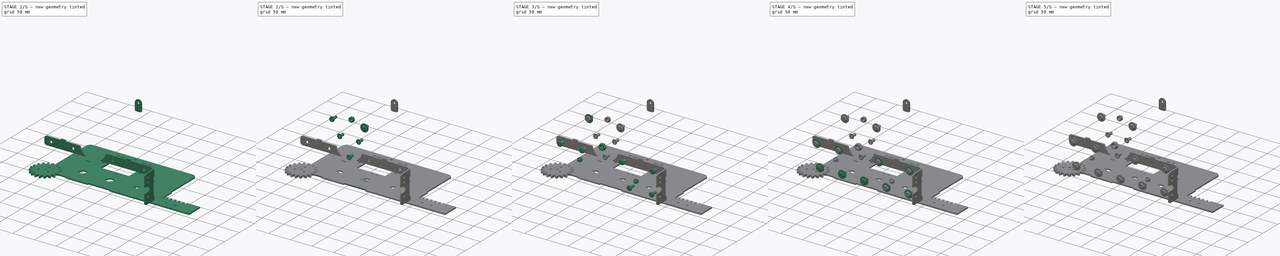
[diagram: build sequence overview — one tinted view per stage of 5, left to right]
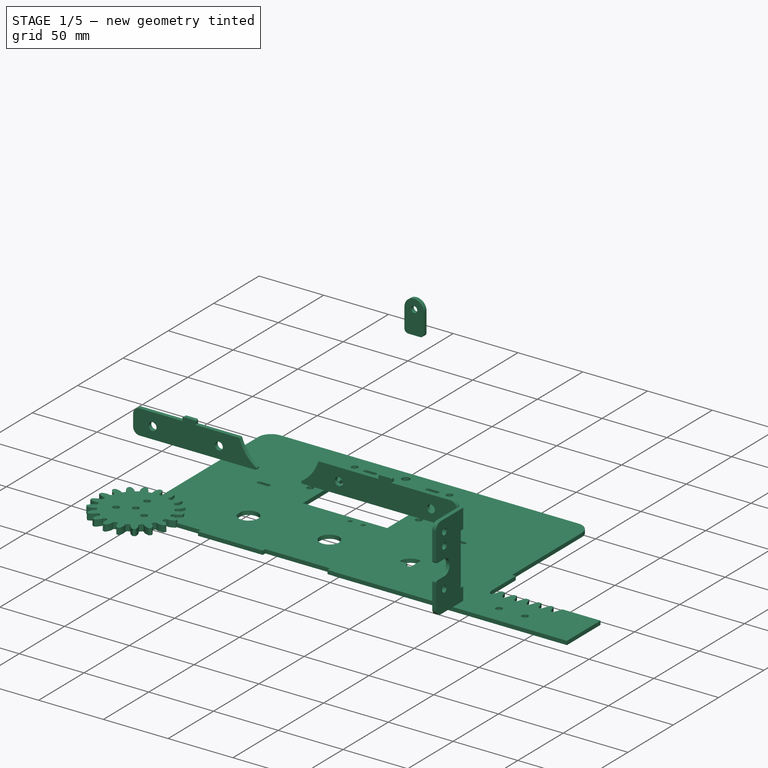
[diagram: stage 1 of 5 — iso view after this stage's code; geometry added in this stage tinted green]
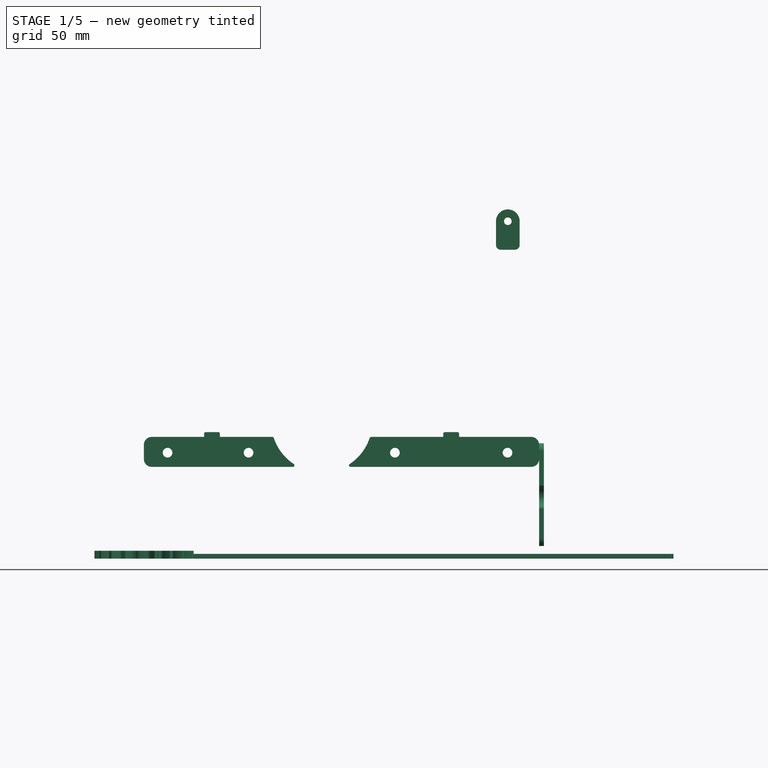
[diagram: stage 1 of 5 — front view after this stage's code; geometry added in this stage tinted green]
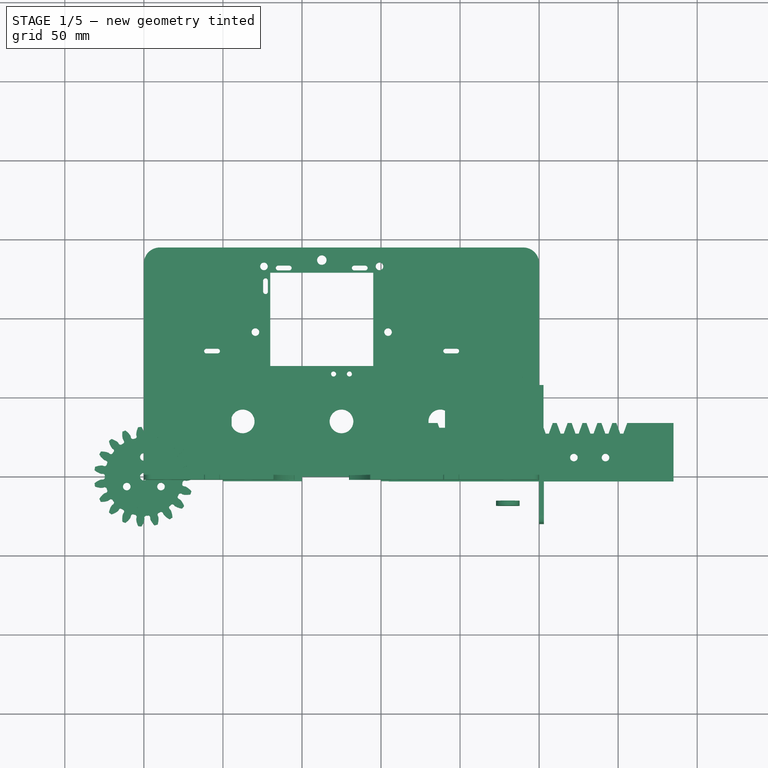
[diagram: stage 1 of 5 — top view after this stage's code; geometry added in this stage tinted green]
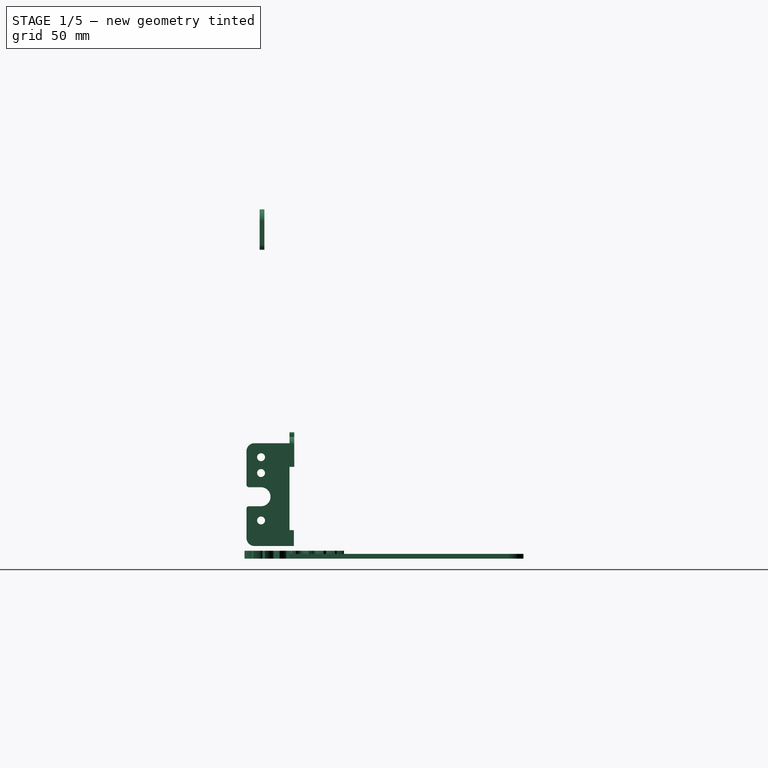
[diagram: stage 1 of 5 — right view after this stage's code; geometry added in this stage tinted green]
FCSTD DOCUMENT  (FreeCAD 0.20R27422 (Git))
Label: Aktor
License: creative commons (CC BY-NC 4.0)
LicenseURL: https://creativecommons.org/licenses/by-nc/4.0/deed.de
objects: Part::Feature×36, Part::FeaturePython×32, Sketcher::SketchObject×27, PartDesign::Body×26, PartDesign::Pad×25, App::DocumentObjectGroupPython×25, TechDraw::DrawViewPart×18, PartDesign::Pocket×2, App::Part×2, TechDraw::DrawSVGTemplate×2, TechDraw::DrawPage×2, TechDraw::DrawRichAnno×2, PartDesign::FeaturePython×1, PartDesign::Plane×1, App::DocumentObjectGroup×1, TechDraw::DrawViewSymbol×1
note: 177 computed .brp shape members not serialized (recipe doc carries the construction recipe); baked Part::Feature solids carry a one-line shape summary decoded from their .brp

FEATURE [Sketcher::SketchObject] Sketch
  FullyConstrained = true
  MapMode = 5
  Support = -> [XY_Plane]
  sketch-geometry (95):
    g0: LineSegment StartX=4.761e-13 StartY=-1.137e-13 StartZ=0 EndX=50 EndY=-1.137e-13 EndZ=0
    g1: LineSegment StartX=250 StartY=-1.155e-13 StartZ=0 EndX=250 EndY=18 EndZ=0
    g2: LineSegment StartX=240 StartY=145 StartZ=0 EndX=10 EndY=145 EndZ=0
    g3: LineSegment StartX=4.761e-13 StartY=135 StartZ=0 EndX=4.761e-13 EndY=-1.137e-13 EndZ=0
    g4: LineSegment StartX=79.95 StartY=129.05 StartZ=0 EndX=145.05 EndY=129.05 EndZ=0
    g5: LineSegment StartX=145.05 StartY=129.05 StartZ=0 EndX=145.05 EndY=53.95 EndZ=0
    g6: LineSegment StartX=145.05 StartY=53.95 StartZ=0 EndX=79.95 EndY=53.95 EndZ=0
    g7: LineSegment StartX=79.95 StartY=53.95 StartZ=0 EndX=79.95 EndY=129.05 EndZ=0
    g8: ArcOfCircle CenterX=10 CenterY=135 CenterZ=0 NormalX=0 NormalY=0 NormalZ=1 AngleXU=0 Radius=10 StartAngle=1.5708 EndAngle=3.14159
    g9: ArcOfCircle CenterX=240 CenterY=135 CenterZ=0 NormalX=0 NormalY=0 NormalZ=1 AngleXU=0 Radius=10 StartAngle=0 EndAngle=1.5708
    g10: LineSegment StartX=50 StartY=-1.137e-13 StartZ=0 EndX=50 EndY=3.1 EndZ=0
    g11: LineSegment StartX=50 StartY=3.1 StartZ=0 EndX=100 EndY=3.1 EndZ=0
    g12: LineSegment StartX=100 StartY=3.1 StartZ=0 EndX=100 EndY=-1.155e-13 EndZ=0
    g13: LineSegment StartX=150 StartY=-1.153e-13 StartZ=0 EndX=150 EndY=3.1 EndZ=0
    g14: LineSegment StartX=150 StartY=3.1 StartZ=0 EndX=200 EndY=3.1 EndZ=0
    g15: LineSegment StartX=200 StartY=3.1 StartZ=0 EndX=200 EndY=-1.155e-13 EndZ=0
    g16: LineSegment StartX=100 StartY=-1.154e-13 StartZ=0 EndX=150 EndY=-1.155e-13 EndZ=0
    g17: LineSegment StartX=200 StartY=-1.155e-13 StartZ=0 EndX=250 EndY=-1.155e-13 EndZ=0
    g18: Circle CenterX=22.4 CenterY=17.9 CenterZ=0 NormalX=0 NormalY=0 NormalZ=1 AngleXU=0 Radius=2.4
    g19: Circle CenterX=227.6 CenterY=17.9 CenterZ=0 NormalX=0 NormalY=0 NormalZ=1 AngleXU=0 Radius=2.4
    g20: Circle CenterX=125 CenterY=17.9 CenterZ=0 NormalX=0 NormalY=0 NormalZ=1 AngleXU=0 Radius=2.4
    g21: Circle CenterX=73.7 CenterY=17.9 CenterZ=0 NormalX=0 NormalY=0 NormalZ=1 AngleXU=0 Radius=2.4
    g22: Circle CenterX=176.3 CenterY=17.9 CenterZ=0 NormalX=0 NormalY=0 NormalZ=1 AngleXU=0 Radius=2.4
    g23: LineSegment StartX=55.5 StartY=47.615 StartZ=0 EndX=172.5 EndY=47.615 EndZ=0
    g24: LineSegment StartX=175.5 StartY=44.615 StartZ=0 EndX=175.5 EndY=43 EndZ=0
    g25: LineSegment StartX=172.5 StartY=26.385 StartZ=0 EndX=55.5 EndY=26.385 EndZ=0
    g26: LineSegment StartX=55.5 StartY=26.385 StartZ=0 EndX=55.5 EndY=47.615 EndZ=0
    g27: ArcOfCircle CenterX=172.5 CenterY=44.615 CenterZ=0 NormalX=0 NormalY=0 NormalZ=1 AngleXU=0 Radius=3 StartAngle=5e-16 EndAngle=1.5708
    g28: ArcOfCircle CenterX=172.5 CenterY=29.385 CenterZ=0 NormalX=0 NormalY=0 NormalZ=1 AngleXU=0 Radius=3 StartAngle=4.71239 EndAngle=6.28319
    g29: Circle CenterX=49.5 CenterY=37 CenterZ=0 NormalX=0 NormalY=0 NormalZ=1 AngleXU=0 Radius=2
    g30: Circle CenterX=179.5 CenterY=49.46 CenterZ=0 NormalX=0 NormalY=0 NormalZ=1 AngleXU=0 Radius=2
    g31: Circle CenterX=179.5 CenterY=26.46 CenterZ=0 NormalX=0 NormalY=0 NormalZ=1 AngleXU=0 Radius=2
    g32: Circle CenterX=112.55 CenterY=137.05 CenterZ=0 NormalX=0 NormalY=0 NormalZ=1 AngleXU=0 Radius=3
    g33: GeomPoint X=112.5 Y=86.5 Z=0
    g34: GeomPoint X=115.5 Y=37 Z=0
    g35: ArcOfCircle CenterX=18.9 CenterY=5.4 CenterZ=0 NormalX=0 NormalY=0 NormalZ=1 AngleXU=0 Radius=1.5 StartAngle=1.5708 EndAngle=4.71239
    g36: ArcOfCircle CenterX=25.9 CenterY=5.4 CenterZ=0 NormalX=0 NormalY=0 NormalZ=1 AngleXU=0 Radius=1.5 StartAngle=4.71239 EndAngle=7.85398
    g37: LineSegment StartX=18.9 StartY=3.9 StartZ=0 EndX=25.9 EndY=3.9 EndZ=0
    g38: LineSegment StartX=25.9 StartY=6.9 StartZ=0 EndX=18.9 EndY=6.9 EndZ=0
    g39: GeomPoint X=22.4 Y=6.9 Z=0
    g40: ArcOfCircle CenterX=224.1 CenterY=5.4 CenterZ=0 NormalX=0 NormalY=0 NormalZ=1 AngleXU=0 Radius=1.5 StartAngle=1.5708 EndAngle=4.71239
    g41: ArcOfCircle CenterX=231.1 CenterY=5.4 CenterZ=0 NormalX=0 NormalY=0 NormalZ=1 AngleXU=0 Radius=1.5 StartAngle=4.71239 EndAngle=7.85398
    g42: LineSegment StartX=224.1 StartY=3.9 StartZ=0 EndX=231.1 EndY=3.9 EndZ=0
    g43: LineSegment StartX=231.1 StartY=6.9 StartZ=0 EndX=224.1 EndY=6.9 EndZ=0
    g44: GeomPoint X=227.6 Y=6.9 Z=0
    g45: ArcOfCircle CenterX=76.95 CenterY=124.05 CenterZ=0 NormalX=0 NormalY=0 NormalZ=1 AngleXU=0 Radius=1.5 StartAngle=-5.551e-13 EndAngle=3.14159
    g46: ArcOfCircle CenterX=76.95 CenterY=117.05 CenterZ=0 NormalX=0 NormalY=0 NormalZ=1 AngleXU=0 Radius=1.5 StartAngle=3.14159 EndAngle=6.28319
    g47: LineSegment StartX=75.45 StartY=124.05 StartZ=0 EndX=75.45 EndY=117.05 EndZ=0
    g48: LineSegment StartX=78.45 StartY=117.05 StartZ=0 EndX=78.45 EndY=124.05 EndZ=0
    g49: ArcOfCircle CenterX=76.95 CenterY=65.95 CenterZ=0 NormalX=0 NormalY=0 NormalZ=1 AngleXU=0 Radius=1.5 StartAngle=5.481e-13 EndAngle=3.14159
    g50: ArcOfCircle CenterX=76.95 CenterY=58.95 CenterZ=0 NormalX=0 NormalY=0 NormalZ=1 AngleXU=0 Radius=1.5 StartAngle=3.14159 EndAngle=6.28319
    g51: LineSegment StartX=75.45 StartY=65.95 StartZ=0 EndX=75.45 EndY=58.95 EndZ=0
    g52: LineSegment StartX=78.45 StartY=58.95 StartZ=0 EndX=78.45 EndY=65.95 EndZ=0
    g53: ArcOfCircle CenterX=84.95 CenterY=132.05 CenterZ=0 NormalX=0 NormalY=0 NormalZ=1 AngleXU=0 Radius=1.5 StartAngle=1.5708 EndAngle=4.71239
    g54: ArcOfCircle CenterX=91.95 CenterY=132.05 CenterZ=0 NormalX=0 NormalY=0 NormalZ=1 AngleXU=0 Radius=1.5 StartAngle=4.71239 EndAngle=7.85398
    g55: LineSegment StartX=84.95 StartY=130.55 StartZ=0 EndX=91.95 EndY=130.55 EndZ=0
    g56: LineSegment StartX=91.95 StartY=133.55 StartZ=0 EndX=84.95 EndY=133.55 EndZ=0
    g57: ArcOfCircle CenterX=133.05 CenterY=132.05 CenterZ=0 NormalX=0 NormalY=0 NormalZ=1 AngleXU=0 Radius=1.5 StartAngle=1.5708 EndAngle=4.71239
    g58: ArcOfCircle CenterX=140.05 CenterY=132.05 CenterZ=0 NormalX=0 NormalY=0 NormalZ=1 AngleXU=0 Radius=1.5 StartAngle=4.71239 EndAngle=7.85398
    g59: LineSegment StartX=133.05 StartY=130.55 StartZ=0 EndX=140.05 EndY=130.55 EndZ=0
    g60: LineSegment StartX=140.05 StartY=133.55 StartZ=0 EndX=133.05 EndY=133.55 EndZ=0
    g61: LineSegment StartX=112.5 StartY=86.5 StartZ=0 EndX=112.5 EndY=145 EndZ=0
    g62: GeomPoint X=79.95 Y=91.5 Z=0
    g63: LineSegment StartX=79.95 StartY=91.5 StartZ=0 EndX=145.05 EndY=91.5 EndZ=0
    g64: LineSegment StartX=55.5 StartY=37 StartZ=0 EndX=175.5 EndY=37 EndZ=0
    g65: LineSegment StartX=4.759e-13 StartY=80 StartZ=0 EndX=250 EndY=80 EndZ=0
    g66: ArcOfCircle CenterX=39.61 CenterY=79.5 CenterZ=0 NormalX=0 NormalY=0 NormalZ=1 AngleXU=0 Radius=1.5 StartAngle=1.5708 EndAngle=4.71239
    g67: ArcOfCircle CenterX=46.61 CenterY=79.5 CenterZ=0 NormalX=0 NormalY=0 NormalZ=1 AngleXU=0 Radius=1.5 StartAngle=4.71239 EndAngle=7.85398
    g68: LineSegment StartX=39.61 StartY=78 StartZ=0 EndX=46.61 EndY=78 EndZ=0
    g69: LineSegment StartX=46.61 StartY=81 StartZ=0 EndX=39.61 EndY=81 EndZ=0
    g70: ArcOfCircle CenterX=190.89 CenterY=79.5 CenterZ=0 NormalX=0 NormalY=0 NormalZ=1 AngleXU=0 Radius=1.5 StartAngle=1.5708 EndAngle=4.71239
    g71: ArcOfCircle CenterX=197.89 CenterY=79.5 CenterZ=0 NormalX=0 NormalY=0 NormalZ=1 AngleXU=0 Radius=1.5 StartAngle=4.71239 EndAngle=7.85398
    g72: LineSegment StartX=190.89 StartY=78 StartZ=0 EndX=197.89 EndY=78 EndZ=0
    g73: LineSegment StartX=197.89 StartY=81 StartZ=0 EndX=190.89 EndY=81 EndZ=0
    g74: LineSegment StartX=4.758e-13 StartY=67.1 StartZ=0 EndX=250 EndY=67.1 EndZ=0
    g75: Circle CenterX=15 CenterY=67.1 CenterZ=0 NormalX=0 NormalY=0 NormalZ=1 AngleXU=0 Radius=2.4
    g76: Circle CenterX=66.22 CenterY=67.1 CenterZ=0 NormalX=0 NormalY=0 NormalZ=1 AngleXU=0 Radius=2.4
    g77: Circle CenterX=230 CenterY=67.1 CenterZ=0 NormalX=0 NormalY=0 NormalZ=1 AngleXU=0 Radius=2.4
    g78: Circle CenterX=158.78 CenterY=67.1 CenterZ=0 NormalX=0 NormalY=0 NormalZ=1 AngleXU=0 Radius=2.4
    g79: Circle CenterX=75.95 CenterY=133.05 CenterZ=0 NormalX=0 NormalY=0 NormalZ=1 AngleXU=0 Radius=3
    g80: Circle CenterX=149.05 CenterY=133.05 CenterZ=0 NormalX=0 NormalY=0 NormalZ=1 AngleXU=0 Radius=3
    g81: Circle CenterX=149.05 CenterY=133.05 CenterZ=0 NormalX=0 NormalY=0 NormalZ=1 AngleXU=0 Radius=2.4
    g82: Circle CenterX=75.95 CenterY=133.05 CenterZ=0 NormalX=0 NormalY=0 NormalZ=1 AngleXU=0 Radius=2.4
    g83: LineSegment StartX=4.759e-13 StartY=37 StartZ=0 EndX=55.5 EndY=37 EndZ=0
    g84: LineSegment StartX=175.5 StartY=43 StartZ=0 EndX=190.5 EndY=43 EndZ=0
    g85: LineSegment StartX=175.5 StartY=31 StartZ=0 EndX=190.5 EndY=31 EndZ=0
    g86: LineSegment StartX=190.5 StartY=43 StartZ=0 EndX=190.5 EndY=31 EndZ=0
    g87: LineSegment StartX=175.5 StartY=31 StartZ=0 EndX=175.5 EndY=29.385 EndZ=0
    g88: LineSegment StartX=55.5 StartY=37 StartZ=0 EndX=190.5 EndY=37 EndZ=0
    g89: LineSegment StartX=250 StartY=18 StartZ=0 EndX=252.8 EndY=18 EndZ=0
    g90: LineSegment StartX=252.8 StartY=18 StartZ=0 EndX=252.8 EndY=58 EndZ=0
    g91: LineSegment StartX=252.8 StartY=58 StartZ=0 EndX=250 EndY=58 EndZ=0
    g92: LineSegment StartX=250 StartY=58 StartZ=0 EndX=250 EndY=135 EndZ=0
    g93: Circle CenterX=70.55 CenterY=91.5 CenterZ=0 NormalX=0 NormalY=0 NormalZ=1 AngleXU=0 Radius=2.4
    g94: Circle CenterX=154.45 CenterY=91.5 CenterZ=0 NormalX=0 NormalY=0 NormalZ=1 AngleXU=0 Radius=2.4
  constraints (251):
    c: Coincident(g17,g1)
    c: Coincident(g3,g0)
    c: Horizontal(g0)
    c: Horizontal(g2)
    c: Vertical(g1)
    c: Vertical(g3)
    c: Coincident(g0,g-1)
    c: DistanceX(g0,g17) = 250
    c: Coincident(g4,g5)
    c: Coincident(g5,g6)
    c: Coincident(g6,g7)
    c: Coincident(g7,g4)
    c: Horizontal(g4)
    c: Horizontal(g6)
    c: Vertical(g5)
    c: Vertical(g7)
    c: Tangent(g2,g8) = -1.5708
    c: Tangent(g3,g8) = -1.5708
    c: Tangent(g2,g9) = -1.5708
    c: Radius(g8) = 10
    c: Equal(g8,g9)
    c: Vertical(g10)
    c: Coincident(g10,g11)
    c: Horizontal(g11)
    c: Coincident(g11,g12)
    c: Vertical(g12)
    c: DistanceX(g11,g11) = 50
    c: DistanceY(g10,g10) = 3.1
    c: Equal(g10,g12)
    c: Vertical(g13)
    c: Coincident(g13,g14)
    c: Horizontal(g14)
    c: Coincident(g14,g15)
    c: Vertical(g15)
    c: Equal(g11,g14) = 50
    c: Equal(g10,g13) = 3.1
    c: Equal(g13,g15)
    c: Horizontal(g0,g10)
    c: DistanceX(g0,g10) = 50
    c: DistanceX(g15,g17) = 50
    c: Horizontal(g15,g17)
    c: PointOnObject(g0,g10)
    c: PointOnObject(g16,g12)
    c: Tangent(g0,g16)
    c: PointOnObject(g16,g13)
    c: PointOnObject(g17,g15)
    c: Tangent(g16,g17)
    c: Diameter(g18) = 4.8
    c: DistanceX(g0,g18) = 22.4
    c: DistanceY(g0,g18) = 17.9
    c: DistanceX(g19,g1) = 22.4
    c: Horizontal(g19,g18)
    c: Symmetric(g19,g18,g20)
    c: Equal(g18,g20)
    c: Equal(g18,g19)
    c: Symmetric(g18,g20,g21)
    c: Symmetric(g19,g20,g22)
    c: Equal(g18,g21)
    c: Equal(g18,g22)
    c: Horizontal(g23)
    c: Horizontal(g25)
    c: Vertical(g24)
    c: Vertical(g26)
    c: Tangent(g23,g27) = 1.5708
    c: Tangent(g24,g27) = 1.5708
    c: Tangent(g25,g28) = 1.5708
    c: Coincident(g87,g28) = 1.5708
    c: DistanceY(g25,g23) = 21.23
    c: DistanceX(g26,g24) = 120
    c: Diameter(g29) = 4
    c: DistanceX(g29,g26) = 6
    c: Equal(g29,g30) = 4
    c: DistanceX(g24,g30) = 4
    c: Vertical(g30,g31)
    c: Diameter(g31) = 4
    c: Diameter(g32) = 6
    c: DistanceX(g32,g4) = 32.5
    c: DistanceX(g3,g33) = 112.5
    c: DistanceY(g0,g33) = 86.5
    c: DistanceX(g6,g6) = 65.1  'MotorAdapterBreite'
    c: DistanceY(g6,g33) = 32.55
    c: DistanceX(g6,g33) = 32.55
    c: DistanceY(g5,g5) = 75.1
    c: DistanceY(g4,g32) = 8
    c: Tangent(g35,g37) = -1.5708
    c: Tangent(g37,g36) = -1.5708
    c: Tangent(g36,g38) = -1.5708
    c: Tangent(g38,g35) = -1.5708
    c: Equal(g35,g36)
    c: Horizontal(g37)
    c: Symmetric(g35,g36,g39)
    c: Vertical(g39,g18)
    c: DistanceY(g35,g18) = 11
    c: DistanceY(g36,g36) = 3
    c: DistanceX(g35,g36) = 7
    c: Tangent(g40,g42) = -1.5708
    c: Tangent(g42,g41) = -1.5708
    c: Tangent(g41,g43) = -1.5708
    c: Tangent(g43,g40) = -1.5708
    c: Equal(g40,g41)
    c: Horizontal(g42)
    c: Equal(g38,g43)
    c: Equal(g36,g40)
    c: Symmetric(g40,g41,g44)
    c: Horizontal(g36,g40)
    c: Vertical(g19,g44)
    c: Tangent(g45,g47) = -1.5708
    c: Tangent(g47,g46) = -1.5708
    c: Tangent(g46,g48) = -1.5708
    c: Tangent(g48,g45) = -1.5708
    c: Equal(g45,g46)
    c: Vertical(g47)
    c: DistanceX(g45,g45) = 3
    c: DistanceY(g46,g45) = 7
    c: Tangent(g49,g51) = -1.5708
    c: Tangent(g51,g50) = -1.5708
    c: Tangent(g50,g52) = -1.5708
    c: Tangent(g52,g49) = -1.5708
    c: Equal(g49,g50)
    c: Vertical(g51)
    c: Equal(g45,g49)
    c: Equal(g48,g52)
    c: Tangent(g53,g55) = -1.5708
    c: Tangent(g55,g54) = -1.5708
    c: Tangent(g54,g56) = -1.5708
    c: Tangent(g56,g53) = -1.5708
    c: Equal(g53,g54)
    c: Horizontal(g55)
    c: Tangent(g57,g59) = -1.5708
    c: Tangent(g59,g58) = -1.5708
    c: Tangent(g58,g60) = -1.5708
    c: Tangent(g60,g57) = -1.5708
    c: Equal(g57,g58)
    c: Horizontal(g59)
    c: Equal(g55,g51)
    c: Equal(g47,g59)
    c: Equal(g49,g54)
    c: Equal(g54,g57)
    c: Horizontal(g54,g57)
    c: Vertical(g46,g50)
    c: DistanceX(g45,g4) = 1.5
    c: DistanceY(g4,g53) = 1.5
    c: Coincident(g61,g33)
    c: Symmetric(g54,g57,g61)
    c: Symmetric(g4,g6,g62)
    c: Coincident(g63,g62)
    c: Symmetric(g46,g49,g63)
    c: DistanceX(g4,g53) = 5
    c: DistanceY(g45,g4) = 5
    c: DistanceX(g33,g34) = 3
    c: Horizontal(g64)
    c: Horizontal(g65)
    c: Tangent(g66,g68) = -1.5708
    c: Tangent(g68,g67) = -1.5708
    c: Tangent(g67,g69) = -1.5708
    c: Tangent(g69,g66) = -1.5708
    c: Equal(g66,g67)
    c: Horizontal(g68)
    c: PointOnObject(g65,g3)
    c: DistanceY(g0,g65) = 80
    c: PointOnObject(g65,g1)
    c: DistanceY(g67,g67) = 3
    c: DistanceX(g69,g69) = 7
    c: DistanceY(g65,g67) = 1
    c: Tangent(g70,g72) = -1.5708
    c: Tangent(g72,g71) = -1.5708
    c: Tangent(g71,g73) = -1.5708
    c: Tangent(g73,g70) = -1.5708
    c: Equal(g70,g71)
    c: Horizontal(g72)
    c: DistanceX(g73,g73) = 7
    c: DistanceY(g71,g71) = 3
    c: DistanceY(g65,g71) = 1
    c: DistanceX(g65,g66) = 39.61
    c: DistanceX(g71,g65) = 52.11
    c: Horizontal(g74)
    c: PointOnObject(g74,g3)
    c: PointOnObject(g74,g1)
    c: DistanceY(g74,g65) = 12.9
    c: Diameter(g75) = 4.8
    c: PointOnObject(g75,g74)
    c: DistanceX(g74,g75) = 15
    c: PointOnObject(g76,g74)
    c: Equal(g75,g76)
    c: Equal(g75,g77)
    c: PointOnObject(g77,g74)
    c: DistanceX(g77,g74) = 20
    c: DistanceX(g75,g76) = 51.22
    c: DistanceX(g78,g77) = 71.22
    c: PointOnObject(g78,g74)
    c: Equal(g75,g78)
    c: Diameter(g79) = 6
    c: Diameter(g80) = 6
    c: Coincident(g81,g80)
    c: Diameter(g81) = 4.8
    c: Coincident(g82,g79)
    c: Diameter(g82) = 4.8
    c: Symmetric(g82,g81,g61)
    c: PointOnObject(g61,g2)
    c: DistanceX(g82,g4) = 4
    c: DistanceY(g4,g82) = 4
    c: PointOnObject(g83,g3)
    c: Horizontal(g83)
    c: DistanceY(g0,g83) = 37
    c: Horizontal(g83,g29)
    c: Coincident(g83,g64)
    c: DistanceX(g83,g26) = 55.5
    c: Coincident(g26,g23)
    c: Coincident(g25,g26)
    c: Symmetric(g23,g25,g64)
    c: Horizontal(g84)
    c: Horizontal(g85)
    c: Vertical(g86)
    c: Coincident(g86,g84)
    c: Coincident(g85,g86)
    c: DistanceY(g86,g86) = 12
    c: Coincident(g84,g24)
    c: Coincident(g85,g87)
    c: Symmetric(g24,g85,g64)
    c: Radius(g27) = 3
    c: Equal(g27,g28)
    c: DistanceX(g85,g85) = 15
    c: Vertical(g87)
    c: Vertical(g23,g25)
    c: Vertical(g24,g85)
    c: DistanceY(g31,g30) = 23
    c: Coincident(g88,g64)
    c: PointOnObject(g88,g86)
    c: Horizontal(g88)
    c: Horizontal(g89)
    c: Coincident(g90,g89)
    c: Vertical(g90)
    c: Coincident(g91,g90)
    c: Horizontal(g91)
    c: DistanceY(g1,g89) = 18
    c: Vertical(g89,g91)
    c: DistanceX(g89,g89) = 2.8
    c: DistanceY(g90,g90) = 40
    c: DistanceY(g2) = 145
    c: Coincident(g92,g91)
    c: Vertical(g92)
    c: Tangent(g92,g9) = -1.5708
    c: Coincident(g89,g1)
    c: PointOnObject(g63,g5)
    c: DistanceY(g31,g64) = 10.54
    c: PointOnObject(g34,g64)
    c: Diameter(g93) = 4.8
    c: Equal(g93,g94)
    c: DistanceX(g93,g32) = 42
    c: Symmetric(g93,g94,g61)
    c: Horizontal(g93,g62)
FEATURE [PartDesign::Pad] Pad
  Direction = (0,0,1)
  Length = 3
  Length2 = 100
  Profile = -> Sketch
  Type = 0
FEATURE [Sketcher::SketchObject] Sketch001
  FullyConstrained = true
  MapMode = 5
  Support = -> [XY_Plane001]
  sketch-geometry (33):
    g0: LineSegment StartX=-8.9e-15 StartY=0 StartZ=0 EndX=50 EndY=0 EndZ=0
    g1: LineSegment StartX=250 StartY=-4e-16 StartZ=0 EndX=250 EndY=60 EndZ=0
    g2: LineSegment StartX=240 StartY=70 StartZ=0 EndX=10 EndY=70 EndZ=0
    g3: LineSegment StartX=-8.9e-15 StartY=60 StartZ=0 EndX=-8.9e-15 EndY=0 EndZ=0
    g4: LineSegment StartX=50 StartY=0 StartZ=0 EndX=50 EndY=-2.8 EndZ=0
    g5: LineSegment StartX=50 StartY=-2.8 StartZ=0 EndX=100 EndY=-2.8 EndZ=0
    g6: LineSegment StartX=150 StartY=0 StartZ=0 EndX=150 EndY=-2.8 EndZ=0
    g7: LineSegment StartX=150 StartY=-2.8 StartZ=0 EndX=200 EndY=-2.8 EndZ=0
    g8: LineSegment StartX=200 StartY=-2.8 StartZ=0 EndX=200 EndY=9e-16 EndZ=0
    g9: LineSegment StartX=100 StartY=-2.8 StartZ=0 EndX=100 EndY=0 EndZ=0
    g10: LineSegment StartX=100 StartY=1.3e-15 StartZ=0 EndX=150 EndY=8e-16 EndZ=0
    g11: LineSegment StartX=200 StartY=2e-16 StartZ=0 EndX=250 EndY=-4e-16 EndZ=0
    g12: ArcOfCircle CenterX=10 CenterY=60 CenterZ=0 NormalX=0 NormalY=0 NormalZ=1 AngleXU=0 Radius=10 StartAngle=1.5708 EndAngle=3.14159
    g13: ArcOfCircle CenterX=240 CenterY=60 CenterZ=0 NormalX=0 NormalY=0 NormalZ=1 AngleXU=0 Radius=10 StartAngle=1.7e-15 EndAngle=1.5708
    g14: Circle CenterX=10 CenterY=60 CenterZ=0 NormalX=0 NormalY=0 NormalZ=1 AngleXU=0 Radius=3.05
    g15: Circle CenterX=240 CenterY=60 CenterZ=0 NormalX=0 NormalY=0 NormalZ=1 AngleXU=0 Radius=3.05
    g16: Circle CenterX=10 CenterY=10 CenterZ=0 NormalX=0 NormalY=0 NormalZ=1 AngleXU=0 Radius=3.05
    g17: Circle CenterX=240 CenterY=10 CenterZ=0 NormalX=0 NormalY=0 NormalZ=1 AngleXU=0 Radius=3.05
    g18: Circle CenterX=5 CenterY=40 CenterZ=0 NormalX=0 NormalY=0 NormalZ=1 AngleXU=0 Radius=1.6
    g19: Circle CenterX=5 CenterY=30 CenterZ=0 NormalX=0 NormalY=0 NormalZ=1 AngleXU=0 Radius=1.6
    g20: GeomPoint X=5 Y=35 Z=0
    g21: LineSegment StartX=-1.01e-14 StartY=35 StartZ=0 EndX=250 EndY=35 EndZ=0
    g22: LineSegment StartX=125 StartY=70 StartZ=0 EndX=125 EndY=0 EndZ=0
    g23: GeomPoint X=125 Y=35 Z=0
    g24: Circle CenterX=120 CenterY=65 CenterZ=0 NormalX=0 NormalY=0 NormalZ=1 AngleXU=0 Radius=1.6
    g25: Circle CenterX=130 CenterY=65 CenterZ=0 NormalX=0 NormalY=0 NormalZ=1 AngleXU=0 Radius=1.6
    g26: GeomPoint X=125 Y=65 Z=0
    g27: Circle CenterX=245 CenterY=40 CenterZ=0 NormalX=0 NormalY=0 NormalZ=1 AngleXU=0 Radius=1.6
    g28: Circle CenterX=245 CenterY=30 CenterZ=0 NormalX=0 NormalY=0 NormalZ=1 AngleXU=0 Radius=1.6
    g29: GeomPoint X=245 Y=35 Z=0
    g30: Circle CenterX=125 CenterY=35 CenterZ=0 NormalX=0 NormalY=0 NormalZ=1 AngleXU=0 Radius=7.5
    g31: Circle CenterX=62.5 CenterY=35 CenterZ=0 NormalX=0 NormalY=0 NormalZ=1 AngleXU=0 Radius=7.5
    g32: Circle CenterX=187.5 CenterY=35 CenterZ=0 NormalX=0 NormalY=0 NormalZ=1 AngleXU=0 Radius=7.5
  constraints (85):
    c: Coincident(g11,g1)
    c: Coincident(g3,g0)
    c: Horizontal(g0)
    c: Horizontal(g2)
    c: Vertical(g1)
    c: Vertical(g3)
    c: Coincident(g0,g-1)
    c: Vertical(g4)
    c: Coincident(g4,g5)
    c: Horizontal(g5)
    c: DistanceX(g5,g5) = 50
    c: DistanceY(g4,g4) = 2.8
    c: Vertical(g6)
    c: Coincident(g6,g7)
    c: Horizontal(g7)
    c: Coincident(g7,g8)
    c: Vertical(g8)
    c: Equal(g5,g7) = 50
    c: Equal(g4,g6) = 2.8
    c: Equal(g6,g8)
    c: Horizontal(g4,g0)
    c: Vertical(g9)
    c: Coincident(g5,g9)
    c: Horizontal(g4,g9)
    c: Horizontal(g9,g6)
    c: DistanceX(g8,g11) = 50
    c: PointOnObject(g0,g4)
    c: PointOnObject(g10,g9)
    c: Tangent(g0,g10)
    c: PointOnObject(g10,g6)
    c: PointOnObject(g11,g8)
    c: Tangent(g10,g11)
    c: DistanceX(g0,g0) = 50
    c: Tangent(g3,g12) = -1.5708
    c: Tangent(g2,g12) = -1.5708
    c: Tangent(g1,g13) = -1.5708
    c: Tangent(g2,g13) = -1.5708
    c: DistanceY(g0,g2) = 70
    c: Radius(g12) = 10
    c: DistanceX(g0,g1) = 250
    c: Equal(g12,g13)
    c: Coincident(g14,g12)
    c: Coincident(g15,g13)
    c: Equal(g14,g15)
    c: Diameter(g14) = 6.1
    c: Equal(g16,g17)
    c: Equal(g17,g15)
    c: Horizontal(g16,g17)
    c: Vertical(g12,g16)
    c: Vertical(g13,g17)
    c: DistanceY(g16,g12) = 50
    c: Diameter(g18) = 3.2
    c: Equal(g18,g19)
    c: Vertical(g18,g19)
    c: DistanceX(g0,g18) = 5
    c: DistanceY(g19,g18) = 10
    c: Symmetric(g18,g19,g20)
    c: Horizontal(g21)
    c: Vertical(g22)
    c: Symmetric(g0,g1,g22)
    c: PointOnObject(g22,g2)
    c: PointOnObject(g21,g3)
    c: Symmetric(g21,g21,g23)
    c: Symmetric(g22,g22,g23)
    c: PointOnObject(g20,g21)
    c: Diameter(g24) = 3.2
    c: Equal(g24,g25)
    c: Horizontal(g24,g25)
    c: DistanceX(g24,g25) = 10
    c: Symmetric(g24,g25,g26)
    c: PointOnObject(g26,g22)
    c: Diameter(g27) = 3.2
    c: Equal(g27,g28)
    c: DistanceY(g28,g27) = 10
    c: Vertical(g27,g28)
    c: Symmetric(g27,g28,g29)
    c: DistanceX(g27,g21) = 5
    c: PointOnObject(g29,g21)
    c: Coincident(g30,g23)
    c: Diameter(g30) = 15
    c: Equal(g30,g31)
    c: Symmetric(g21,g30,g31)
    c: Equal(g30,g32)
    c: Symmetric(g30,g21,g32)
    c: DistanceY(g24,g22) = 5
FEATURE [PartDesign::Pad] Pad001
  Direction = (0,0,1)
  Length = 3
  Length2 = 100
  Profile = -> Sketch001
  Type = 0
FEATURE [PartDesign::Body] Body009  label="PotentiometerPlatte"
  Group = -> [Sketch009,Pad009]
  Origin = -> Origin009
  Placement = pos=(44,3,20.5) rot=(1,0,0;1.5708rad)
  Tip = -> Pad009
FEATURE [PartDesign::FeaturePython] involutegear  # WARN: FeaturePython — macro-defined, semantics opaque (R4)
  AttacherType = Attacher::AttachEngine3D
  backlash = 0
  beta = 0
  clearance = 0.25
  da = 63
  df = 49.5
  double_helix = false
  dw = 57
  head = 0
  height = 5
  module = 3
  numpoints = 6
  pressure_angle = 20
  properties_from_tool = false
  reversed_backlash = false
  shift = 0
  simple = false
  teeth = 19
  transverse_pitch = 9.42478
  undercut = true
  version = 0.0.3
FEATURE [Sketcher::SketchObject] Sketch014
  FullyConstrained = true
  MapMode = 5
  Support = -> [XY_Plane015]
  sketch-geometry (8):
    g0: Circle CenterX=-5e-15 CenterY=3.54e-14 CenterZ=0 NormalX=0 NormalY=0 NormalZ=1 AngleXU=0 Radius=4
    g1: LineSegment StartX=10.8253 StartY=-6.25 StartZ=0 EndX=-1.24e-14 EndY=12.5 EndZ=0
    g2: LineSegment StartX=-1.42e-14 StartY=12.5 StartZ=0 EndX=-10.8253 EndY=-6.25 EndZ=0
    g3: LineSegment StartX=-10.8253 StartY=-6.25 StartZ=0 EndX=10.8253 EndY=-6.25 EndZ=0
    g4: Circle CenterX=-5e-15 CenterY=3.54e-14 CenterZ=0 NormalX=0 NormalY=0 NormalZ=1 AngleXU=0 Radius=12.5
    g5: Circle CenterX=-10.8253 CenterY=-6.25 CenterZ=0 NormalX=0 NormalY=0 NormalZ=1 AngleXU=0 Radius=2.4
    g6: Circle CenterX=10.8253 CenterY=-6.25 CenterZ=0 NormalX=0 NormalY=0 NormalZ=1 AngleXU=0 Radius=2.4
    g7: Circle CenterX=-1.42e-14 CenterY=12.5 CenterZ=0 NormalX=0 NormalY=0 NormalZ=1 AngleXU=0 Radius=2.4
  constraints (19):
    c: Diameter(g0) = 8
    c: Coincident(g0,g-1)
    c: Coincident(g1,g2)
    c: Coincident(g2,g3)
    c: Coincident(g3,g1)
    c: Equal(g1,g2)
    c: Equal(g1,g3)
    c: PointOnObject(g1,g4)
    c: PointOnObject(g2,g4)
    c: PointOnObject(g3,g4)
    c: Coincident(g4,g0)
    c: Horizontal(g3)
    c: Coincident(g5,g2)
    c: Coincident(g6,g1)
    c: Coincident(g7,g1)
    c: Equal(g7,g6)
    c: Equal(g7,g5)
    c: Diameter(g7) = 4.8
    c: Diameter(g4) = 25
FEATURE [PartDesign::Pocket] Pocket
  BaseFeature = -> involutegear
  Direction = (0,0,-1)
  Length = 5
  Length2 = 100
  Profile = -> Sketch014
  ReferenceAxis = -> Sketch014 [N_Axis]
  Reversed = true
  Type = 1
FEATURE [PartDesign::Body] Body014
  Group = -> [involutegear,Sketch014,Pocket]
  Origin = -> Origin015
  Placement = pos=(0,0,2) rot=(0,0,-1;0.488692rad)
  Tip = -> Pocket
FEATURE [App::Part] Part  label="Antrieb"
  Group = -> [Body014]
  Origin = -> Origin014
  Placement = pos=(112.5,-1,86.5) rot=(0.57735,-0.57735,0.57735;2.0944rad)
FEATURE [Sketcher::SketchObject] Sketch015
  FullyConstrained = true
  MapMode = 5
  Placement = pos=(0,0,0) rot=(1,0,0;1.5708rad)
  Support = -> [XZ_Plane016]
  sketch-geometry (29):
    g0: ArcOfCircle CenterX=112.5 CenterY=86.5 CenterZ=0 NormalX=0 NormalY=0 NormalZ=1 AngleXU=0 Radius=32 StartAngle=3.4654 EndAngle=3.97827
    g1: LineSegment StartX=-2.13367e-11 StartY=-1.9277e-12 StartZ=0 EndX=112.5 EndY=-1.9277e-12 EndZ=0
    g2: LineSegment StartX=112.5 StartY=-1.9277e-12 StartZ=0 EndX=112.5 EndY=86.5 EndZ=0
    g3: LineSegment StartX=5 StartY=61 StartZ=0 EndX=90.3923 EndY=61 EndZ=0
    g4: LineSegment StartX=5 StartY=77 StartZ=0 EndX=38.1075 EndY=77 EndZ=0
    g5: LineSegment StartX=-3.43478e-11 StartY=72 StartZ=0 EndX=-3.02576e-11 EndY=66 EndZ=0
    g6: ArcOfCircle CenterX=5 CenterY=72 CenterZ=0 NormalX=0 NormalY=0 NormalZ=1 AngleXU=0 Radius=5 StartAngle=1.5708 EndAngle=3.14159
    g7: GeomPoint X=-2.13367e-11 Y=77 Z=0
    g8: ArcOfCircle CenterX=5 CenterY=66 CenterZ=0 NormalX=0 NormalY=0 NormalZ=1 AngleXU=0 Radius=5 StartAngle=3.14159 EndAngle=4.71239
    g9: GeomPoint X=-2.13367e-11 Y=61 Z=0
    g10: ArcOfCircle CenterX=15 CenterY=69 CenterZ=0 NormalX=0 NormalY=0 NormalZ=1 AngleXU=0 Radius=3.05 StartAngle=-7.9314e-12 EndAngle=3.14159
    g11: ArcOfCircle CenterX=15 CenterY=67 CenterZ=0 NormalX=0 NormalY=0 NormalZ=1 AngleXU=0 Radius=3.05 StartAngle=3.14159 EndAngle=6.28319
    g12: LineSegment StartX=11.95 StartY=69 StartZ=0 EndX=11.95 EndY=67 EndZ=0
    g13: LineSegment StartX=18.05 StartY=67 StartZ=0 EndX=18.05 EndY=69 EndZ=0
    g14: ArcOfCircle CenterX=81.215 CenterY=76 CenterZ=0 NormalX=0 NormalY=0 NormalZ=1 AngleXU=0 Radius=1 StartAngle=0.323811 EndAngle=1.5708
    g15: ArcOfCircle CenterX=90.3923 CenterY=62 CenterZ=0 NormalX=0 NormalY=0 NormalZ=1 AngleXU=0 Radius=1 StartAngle=4.71239 EndAngle=7.11987
    g16: LineSegment StartX=39.1075 StartY=80 StartZ=0 EndX=47.1075 EndY=80 EndZ=0
    g17: LineSegment StartX=48.1075 StartY=79 StartZ=0 EndX=48.1075 EndY=77 EndZ=0
    g18: LineSegment StartX=38.1075 StartY=77 StartZ=0 EndX=38.1075 EndY=79 EndZ=0
    g19: ArcOfCircle CenterX=39.1075 CenterY=79 CenterZ=0 NormalX=0 NormalY=0 NormalZ=1 AngleXU=0 Radius=1 StartAngle=1.5708 EndAngle=3.14159
    g20: GeomPoint X=38.1075 Y=80 Z=0
    g21: ArcOfCircle CenterX=47.1075 CenterY=79 CenterZ=0 NormalX=0 NormalY=0 NormalZ=1 AngleXU=0 Radius=1 StartAngle=-5.51e-14 EndAngle=1.5708
    g22: GeomPoint X=48.1075 Y=80 Z=0
    g23: LineSegment StartX=48.1075 StartY=77 StartZ=0 EndX=81.215 EndY=77 EndZ=0
    g24: GeomPoint X=43.1075 Y=77 Z=0
    g25: ArcOfCircle CenterX=66.215 CenterY=69 CenterZ=0 NormalX=0 NormalY=0 NormalZ=1 AngleXU=0 Radius=3.05 StartAngle=-5.507e-13 EndAngle=3.14159
    g26: ArcOfCircle CenterX=66.215 CenterY=67 CenterZ=0 NormalX=0 NormalY=0 NormalZ=1 AngleXU=0 Radius=3.05 StartAngle=3.14159 EndAngle=6.28319
    g27: LineSegment StartX=63.165 StartY=69 StartZ=0 EndX=63.165 EndY=67 EndZ=0
    g28: LineSegment StartX=69.265 StartY=67 StartZ=0 EndX=69.265 EndY=69 EndZ=0
  constraints (74):
    c: Coincident(g1,g-1)
    c: DistanceX(g1,g1) = 112.5
    c: Coincident(g2,g1)
    c: Vertical(g2)
    c: DistanceY(g2,g2) = 86.5
    c: Coincident(g0,g2)
    c: Diameter(g0) = 64
    c: Horizontal(g1)
    c: Horizontal(g3)
    c: DistanceY(g1,g9) = 61
    c: Vertical(g9,g1)
    c: Horizontal(g4)
    c: Vertical(g7,g9)
    c: DistanceY(g9,g7) = 16
    c: PointOnObject(g7,g4)
    c: PointOnObject(g7,g5)
    c: Tangent(g4,g6) = 1.5708
    c: Tangent(g5,g6) = -1.5708
    c: PointOnObject(g9,g3)
    c: PointOnObject(g9,g5)
    c: Tangent(g3,g8) = -1.5708
    c: Tangent(g5,g8) = -1.5708
    c: Equal(g6,g8)
    c: Radius(g6) = 5
    c: Tangent(g10,g12) = -1.5708
    c: Tangent(g12,g11) = -1.5708
    c: Tangent(g11,g13) = -1.5708
    c: Tangent(g13,g10) = -1.5708
    c: Equal(g10,g11)
    c: Vertical(g12)
    c: DistanceY(g13,g13) = 2
    c: Diameter(g10) = 6.1
    c: Tangent(g0,g14) = 1.5708
    c: Tangent(g0,g15) = 1.5708
    c: Tangent(g3,g15) = -1.5708
    c: Equal(g14,g15)
    c: Radius(g15) = 1
    c: Horizontal(g16)
    c: Vertical(g17)
    c: Vertical(g18)
    c: DistanceX(g20,g22) = 10
    c: PointOnObject(g20,g16)
    c: PointOnObject(g20,g18)
    c: Tangent(g16,g19) = 1.5708
    c: Tangent(g18,g19) = 1.5708
    c: PointOnObject(g22,g16)
    c: PointOnObject(g22,g17)
    c: Tangent(g16,g21) = 1.5708
    c: Tangent(g17,g21) = 1.5708
    c: Equal(g19,g21)
    c: Radius(g21) = 1
    c: Coincident(g18,g4)
    c: Coincident(g17,g23)
    c: Horizontal(g23)
    c: Horizontal(g17,g4)
    c: Tangent(g23,g14) = 1.5708
    c: DistanceY(g4,g20) = 3
    c: DistanceY(g10,g4) = 8
    c: Tangent(g25,g27) = -1.5708
    c: Tangent(g27,g26) = -1.5708
    c: Tangent(g26,g28) = -1.5708
    c: Tangent(g28,g25) = -1.5708
    c: Equal(g25,g26)
    c: Vertical(g27)
    c: Equal(g10,g25)
    c: Equal(g13,g27)
    c: Horizontal(g11,g26)
    c: DistanceX(g25,g14) = 15
    c: DistanceX(g4,g24) = 5
    c: Symmetric(g4,g14,g24)
    c: DistanceY(g1,g4) = 77
    c: DistanceX(g4,g10) = 10
    c: DistanceX(g5,g4) = 38.1075
    c: DistanceX(g10,g25) = 51.215
FEATURE [PartDesign::Pad] Pad012
  Direction = (0,-1,-2e-16)
  Length = 3
  Length2 = 100
  Placement = pos=(0,0,0) rot=(1,0,0;1.5708rad)
  Profile = -> Sketch015
  ReferenceAxis = -> Sketch015 [N_Axis]
  Type = 0
FEATURE [PartDesign::Body] Body015  label="SliderBottomA"
  Group = -> [Sketch015,Pad012]
  Origin = -> Origin016
  Placement = pos=(0,-3,0) rot=(0,0,1;0rad)
  Tip = -> Pad012
FEATURE [Sketcher::SketchObject] Sketch016
  FullyConstrained = true
  MapMode = 5
  Placement = pos=(0,0,0) rot=(1,0,0;1.5708rad)
  Support = -> [XZ_Plane017]
  expr: Constraints[1] = Sketch015.Constraints[1]
  expr: Constraints[4] = Sketch015.Constraints[4]
  sketch-geometry (27):
    g0: LineSegment StartX=1.83456e-11 StartY=-1.2328e-12 StartZ=0 EndX=112.5 EndY=-1.2328e-12 EndZ=0
    g1: LineSegment StartX=112.5 StartY=-1.2328e-12 StartZ=0 EndX=112.5 EndY=86.5 EndZ=0
    g2: ArcOfCircle CenterX=112.5 CenterY=86.5 CenterZ=0 NormalX=0 NormalY=0 NormalZ=1 AngleXU=0 Radius=32 StartAngle=5.4465 EndAngle=5.95937
    g3: LineSegment StartX=250 StartY=66 StartZ=0 EndX=250 EndY=72 EndZ=0
    g4: ArcOfCircle CenterX=245 CenterY=72 CenterZ=0 NormalX=0 NormalY=0 NormalZ=1 AngleXU=0 Radius=5 StartAngle=1.436e-13 EndAngle=1.5708
    g5: ArcOfCircle CenterX=245 CenterY=66 CenterZ=0 NormalX=0 NormalY=0 NormalZ=1 AngleXU=0 Radius=5 StartAngle=4.71239 EndAngle=6.28319
    g6: LineSegment StartX=143.785 StartY=77 StartZ=0 EndX=189.392 EndY=77 EndZ=0
    g7: LineSegment StartX=134.608 StartY=61 StartZ=0 EndX=245 EndY=61 EndZ=0
    g8: ArcOfCircle CenterX=230 CenterY=69 CenterZ=0 NormalX=0 NormalY=0 NormalZ=1 AngleXU=0 Radius=3.05 StartAngle=3.0073e-12 EndAngle=3.14159
    g9: ArcOfCircle CenterX=230 CenterY=67 CenterZ=0 NormalX=0 NormalY=0 NormalZ=1 AngleXU=0 Radius=3.05 StartAngle=3.14159 EndAngle=6.28319
    g10: LineSegment StartX=226.95 StartY=69 StartZ=0 EndX=226.95 EndY=67 EndZ=0
    g11: LineSegment StartX=233.05 StartY=67 StartZ=0 EndX=233.05 EndY=69 EndZ=0
    g12: ArcOfCircle CenterX=158.785 CenterY=69 CenterZ=0 NormalX=0 NormalY=0 NormalZ=1 AngleXU=0 Radius=3.05 StartAngle=-3.757e-13 EndAngle=3.14159
    g13: ArcOfCircle CenterX=158.785 CenterY=67 CenterZ=0 NormalX=0 NormalY=0 NormalZ=1 AngleXU=0 Radius=3.05 StartAngle=3.14159 EndAngle=6.28319
    g14: LineSegment StartX=155.735 StartY=69 StartZ=0 EndX=155.735 EndY=67 EndZ=0
    g15: LineSegment StartX=161.835 StartY=67 StartZ=0 EndX=161.835 EndY=69 EndZ=0
    g16: ArcOfCircle CenterX=143.785 CenterY=76 CenterZ=0 NormalX=0 NormalY=0 NormalZ=1 AngleXU=0 Radius=1 StartAngle=1.5708 EndAngle=2.81778
    g17: ArcOfCircle CenterX=134.608 CenterY=62 CenterZ=0 NormalX=0 NormalY=0 NormalZ=1 AngleXU=0 Radius=1 StartAngle=2.30491 EndAngle=4.71239
    g18: LineSegment StartX=190.392 StartY=80 StartZ=0 EndX=198.392 EndY=80 EndZ=0
    g19: LineSegment StartX=199.392 StartY=79 StartZ=0 EndX=199.392 EndY=77 EndZ=0
    g20: LineSegment StartX=189.392 StartY=77 StartZ=0 EndX=189.392 EndY=79 EndZ=0
    g21: ArcOfCircle CenterX=190.392 CenterY=79 CenterZ=0 NormalX=0 NormalY=0 NormalZ=1 AngleXU=0 Radius=1 StartAngle=1.5708 EndAngle=3.14159
    g22: GeomPoint X=189.392 Y=80 Z=0
    g23: ArcOfCircle CenterX=198.392 CenterY=79 CenterZ=0 NormalX=0 NormalY=0 NormalZ=1 AngleXU=0 Radius=1 StartAngle=-3.55e-14 EndAngle=1.5708
    g24: GeomPoint X=199.392 Y=80 Z=0
    g25: LineSegment StartX=199.392 StartY=77 StartZ=0 EndX=245 EndY=77 EndZ=0
    g26: GeomPoint X=194.392 Y=77 Z=0
  constraints (70):
    c: Coincident(g0,g-1)
    c: DistanceX(g0,g0) = 112.5
    c: Coincident(g1,g0)
    c: Vertical(g1)
    c: DistanceY(g1,g1) = 86.5
    c: Horizontal(g0)
    c: Radius(g2) = 32
    c: Vertical(g3)
    c: Tangent(g3,g4) = -1.5708
    c: Tangent(g3,g5) = -1.5708
    c: DistanceY(g5,g4) = 16
    c: DistanceX(g0,g3) = 250
    c: Radius(g5) = 5
    c: Equal(g4,g5)
    c: Tangent(g7,g5) = -1.5708
    c: Horizontal(g6)
    c: Tangent(g8,g10) = -1.5708
    c: Tangent(g10,g9) = -1.5708
    c: Tangent(g9,g11) = -1.5708
    c: Tangent(g11,g8) = -1.5708
    c: Equal(g8,g9)
    c: Tangent(g12,g14) = -1.5708
    c: Tangent(g14,g13) = -1.5708
    c: Tangent(g13,g15) = -1.5708
    c: Tangent(g15,g12) = -1.5708
    c: Equal(g12,g13)
    c: Vertical(g14)
    c: Vertical(g10)
    c: Diameter(g8) = 6.1
    c: DistanceY(g11,g11) = 2
    c: Equal(g8,g12)
    c: Equal(g11,g15)
    c: DistanceX(g8,g4) = 15
    c: DistanceY(g8,g4) = 8
    c: Horizontal(g9,g13)
    c: Tangent(g6,g16) = 1.5708
    c: Tangent(g2,g16) = 1.5708
    c: Tangent(g7,g17) = -1.5708
    c: Tangent(g2,g17) = 1.5708
    c: Equal(g16,g17)
    c: Radius(g16) = 1
    c: Horizontal(g7)
    c: DistanceX(g6,g12) = 15
    c: DistanceY(g0,g5) = 61
    c: Coincident(g1,g2)
    c: Horizontal(g18)
    c: Vertical(g19)
    c: Vertical(g20)
    c: PointOnObject(g22,g18)
    c: PointOnObject(g22,g20)
    c: Tangent(g18,g21) = 1.5708
    c: Tangent(g20,g21) = 1.5708
    c: PointOnObject(g24,g18)
    c: PointOnObject(g24,g19)
    c: Tangent(g18,g23) = 1.5708
    c: Tangent(g19,g23) = 1.5708
    c: DistanceX(g22,g24) = 10
    c: Radius(g21) = 1
    c: Equal(g21,g23)
    c: Coincident(g6,g20)
    c: Coincident(g25,g19)
    c: Horizontal(g6,g19)
    c: Horizontal(g25)
    c: DistanceY(g6,g22) = 3
    c: DistanceX(g6,g26) = 5
    c: Symmetric(g6,g4,g26)
    c: Tangent(g25,g4) = 1.5708
    c: DistanceY(g0,g4) = 77
    c: DistanceX(g19,g3) = 50.6075
    c: DistanceX(g12,g8) = 71.215
FEATURE [PartDesign::Pad] Pad013
  Direction = (0,-1,-2e-16)
  Length = 3
  Length2 = 100
  Placement = pos=(0,0,0) rot=(1,0,0;1.5708rad)
  Profile = -> Sketch016
  ReferenceAxis = -> Sketch016 [N_Axis]
  Type = 0
FEATURE [PartDesign::Body] Body016  label="SliderBottomB"
  Group = -> [Sketch016,Pad013]
  Origin = -> Origin017
  Placement = pos=(0,-3,-0.06) rot=(0,0,1;0rad)
  Tip = -> Pad013
FEATURE [Sketcher::SketchObject] Sketch017
  FullyConstrained = true
  MapMode = 5
  Placement = pos=(0,0,0) rot=(1,0,0;1.5708rad)
  Support = -> [XZ_Plane018]
  expr: Constraints[1] = Sketch015.Constraints[1]
  expr: Constraints[4] = Sketch015.Constraints[4]
  expr: Constraints[6] = Sketch015.Constraints[6]
  sketch-geometry (14):
    g0: ArcOfCircle CenterX=112.5 CenterY=86.5 CenterZ=0 NormalX=0 NormalY=0 NormalZ=1 AngleXU=0 Radius=32 StartAngle=3.4654 EndAngle=4.1267
    g1: LineSegment StartX=-1.16251e-11 StartY=5.4406e-12 StartZ=0 EndX=112.5 EndY=5.4406e-12 EndZ=0
    g2: LineSegment StartX=112.5 StartY=5.4406e-12 StartZ=0 EndX=112.5 EndY=86.5 EndZ=0
    g3: ArcOfCircle CenterX=81.215 CenterY=76 CenterZ=0 NormalX=0 NormalY=0 NormalZ=1 AngleXU=0 Radius=1 StartAngle=0.323811 EndAngle=1.5708
    g4: LineSegment StartX=5 StartY=77 StartZ=0 EndX=81.215 EndY=77 EndZ=0
    g5: LineSegment StartX=5 StartY=58 StartZ=0 EndX=94.2586 EndY=58 EndZ=0
    g6: LineSegment StartX=3.615e-13 StartY=72 StartZ=0 EndX=-1.883e-13 EndY=63 EndZ=0
    g7: ArcOfCircle CenterX=5 CenterY=72 CenterZ=0 NormalX=0 NormalY=0 NormalZ=1 AngleXU=0 Radius=5 StartAngle=1.5708 EndAngle=3.14159
    g8: GeomPoint X=3.023e-13 Y=77 Z=0
    g9: ArcOfCircle CenterX=5 CenterY=63 CenterZ=0 NormalX=0 NormalY=0 NormalZ=1 AngleXU=0 Radius=5 StartAngle=3.14159 EndAngle=4.71239
    g10: GeomPoint X=-2.439e-13 Y=58 Z=0
    g11: ArcOfCircle CenterX=94.2586 CenterY=59 CenterZ=0 NormalX=0 NormalY=0 NormalZ=1 AngleXU=0 Radius=1 StartAngle=4.71239 EndAngle=7.2683
    g12: Circle CenterX=15 CenterY=67 CenterZ=0 NormalX=0 NormalY=0 NormalZ=1 AngleXU=0 Radius=3.05
    g13: Circle CenterX=66.215 CenterY=67 CenterZ=0 NormalX=0 NormalY=0 NormalZ=1 AngleXU=0 Radius=3.05
  constraints (36):
    c: Coincident(g1,g-1)
    c: DistanceX(g1,g1) = 112.5
    c: Coincident(g2,g1)
    c: Vertical(g2)
    c: DistanceY(g2,g2) = 86.5
    c: Coincident(g0,g2)
    c: Diameter(g0) = 64
    c: Horizontal(g1)
    c: Tangent(g0,g3) = 1.5708
    c: Horizontal(g4)
    c: Tangent(g4,g3) = 1.5708
    c: DistanceY(g1,g8) = 77
    c: PointOnObject(g10,g-2)
    c: Horizontal(g5)
    c: DistanceY(g10,g8) = 19
    c: PointOnObject(g8,g-2)
    c: PointOnObject(g8,g4)
    c: PointOnObject(g8,g6)
    c: Tangent(g4,g7) = 1.5708
    c: Tangent(g6,g7) = -1.5708
    c: PointOnObject(g10,g5)
    c: PointOnObject(g10,g6)
    c: Tangent(g5,g9) = -1.5708
    c: Tangent(g6,g9) = -1.5708
    c: Equal(g9,g7)
    c: Radius(g7) = 5
    c: Radius(g3) = 1
    c: Tangent(g0,g11) = 1.5708
    c: Tangent(g5,g11) = -1.5708
    c: Equal(g3,g11)
    c: Diameter(g12) = 6.1
    c: Equal(g12,g13)
    c: DistanceY(g12,g4) = 10
    c: DistanceX(g13,g3) = 15
    c: DistanceX(g4,g12) = 10
    c: Horizontal(g12,g13)
FEATURE [PartDesign::Pad] Pad014
  Direction = (0,-1,-2e-16)
  Length = 3
  Length2 = 100
  Placement = pos=(0,0,0) rot=(1,0,0;1.5708rad)
  Profile = -> Sketch017
  ReferenceAxis = -> Sketch017 [N_Axis]
  Type = 0
FEATURE [PartDesign::Body] Body017  label="SliderTopA"
  Group = -> [Sketch017,Pad014]
  Origin = -> Origin018
  Placement = pos=(0,-6.2,0) rot=(0,0,1;0rad)
  Tip = -> Pad014
FEATURE [Sketcher::SketchObject] Sketch018
  FullyConstrained = true
  MapMode = 5
  Placement = pos=(0,0,0) rot=(1,0,0;1.5708rad)
  Support = -> [XZ_Plane019]
  expr: Constraints[1] = Sketch016.Constraints[1]
  expr: Constraints[4] = Sketch016.Constraints[4]
  sketch-geometry (13):
    g0: LineSegment StartX=7.9731e-12 StartY=2.3917e-12 StartZ=0 EndX=112.5 EndY=2.3917e-12 EndZ=0
    g1: LineSegment StartX=112.5 StartY=2.3917e-12 StartZ=0 EndX=112.5 EndY=86.5 EndZ=0
    g2: LineSegment StartX=143.785 StartY=77 StartZ=0 EndX=245 EndY=77 EndZ=0
    g3: LineSegment StartX=130.741 StartY=58 StartZ=0 EndX=245 EndY=58 EndZ=0
    g4: LineSegment StartX=250 StartY=72 StartZ=0 EndX=250 EndY=63 EndZ=0
    g5: LineSegment StartX=158.785 StartY=67 StartZ=0 EndX=230 EndY=67 EndZ=0
    g6: ArcOfCircle CenterX=245 CenterY=63 CenterZ=0 NormalX=0 NormalY=0 NormalZ=1 AngleXU=0 Radius=5 StartAngle=4.71239 EndAngle=6.28319
    g7: ArcOfCircle CenterX=245 CenterY=72 CenterZ=0 NormalX=0 NormalY=0 NormalZ=1 AngleXU=0 Radius=5 StartAngle=8.855e-13 EndAngle=1.5708
    g8: Circle CenterX=158.785 CenterY=67 CenterZ=0 NormalX=0 NormalY=0 NormalZ=1 AngleXU=0 Radius=3.05
    g9: Circle CenterX=230 CenterY=67 CenterZ=0 NormalX=0 NormalY=0 NormalZ=1 AngleXU=0 Radius=3.05
    g10: ArcOfCircle CenterX=112.5 CenterY=86.5 CenterZ=0 NormalX=0 NormalY=0 NormalZ=1 AngleXU=0 Radius=32 StartAngle=5.29807 EndAngle=5.95937
    g11: ArcOfCircle CenterX=143.785 CenterY=76 CenterZ=0 NormalX=0 NormalY=0 NormalZ=1 AngleXU=0 Radius=1 StartAngle=1.5708 EndAngle=2.81778
    g12: ArcOfCircle CenterX=130.741 CenterY=59 CenterZ=0 NormalX=0 NormalY=0 NormalZ=1 AngleXU=0 Radius=1 StartAngle=2.15648 EndAngle=4.71239
  constraints (35):
    c: Coincident(g0,g-1)
    c: DistanceX(g0,g0) = 112.5
    c: Coincident(g1,g0)
    c: Vertical(g1)
    c: DistanceY(g1,g1) = 86.5
    c: Horizontal(g0)
    c: Horizontal(g2)
    c: Horizontal(g3)
    c: Vertical(g4)
    c: Block(g5)
    c: Tangent(g3,g6) = -1.5708
    c: Tangent(g4,g6) = 1.5708
    c: Radius(g6) = 5
    c: Tangent(g2,g7) = 1.5708
    c: Tangent(g4,g7) = 1.5708
    c: DistanceY(g3,g2) = 19
    c: DistanceY(g0,g2) = 77
    c: Equal(g6,g7)
    c: DistanceX(g0,g4) = 250
    c: Coincident(g8,g5)
    c: Coincident(g9,g5)
    c: Equal(g8,g9)
    c: Diameter(g9) = 6.1
    c: DistanceX(g9,g2) = 15
    c: DistanceY(g9,g2) = 10
    c: Horizontal(g8,g9)
    c: Coincident(g10,g1)
    c: Radius(g10) = 32
    c: Tangent(g2,g11) = 1.5708
    c: Tangent(g10,g11) = 1.5708
    c: Tangent(g3,g12) = -1.5708
    c: Tangent(g10,g12) = 1.5708
    c: Radius(g11) = 1
    c: Equal(g11,g12)
    c: DistanceX(g2,g8) = 15
FEATURE [PartDesign::Pad] Pad015
  Direction = (0,-1,-2e-16)
  Length = 3
  Length2 = 100
  Placement = pos=(0,0,0) rot=(1,0,0;1.5708rad)
  Profile = -> Sketch018
  ReferenceAxis = -> Sketch018 [N_Axis]
  Type = 0
FEATURE [PartDesign::Body] Body018  label="SliderTopB"
  Group = -> [Sketch018,Pad015]
  Origin = -> Origin019
  Placement = pos=(0,-6.2,0) rot=(0,0,1;0rad)
  Tip = -> Pad015
FEATURE [Sketcher::SketchObject] Sketch019
  FullyConstrained = true
  MapMode = 5
  Support = -> [XY_Plane021]
  sketch-geometry (9):
    g0: LineSegment StartX=10.8253 StartY=-6.25 StartZ=0 EndX=0 EndY=12.5 EndZ=0
    g1: LineSegment StartX=0 StartY=12.5 StartZ=0 EndX=-10.8253 EndY=-6.25 EndZ=0
    g2: LineSegment StartX=-10.8253 StartY=-6.25 StartZ=0 EndX=10.8253 EndY=-6.25 EndZ=0
    g3: Circle CenterX=0 CenterY=-1.7576e-12 CenterZ=0 NormalX=0 NormalY=0 NormalZ=1 AngleXU=0 Radius=12.5
    g4: Circle CenterX=0 CenterY=12.5 CenterZ=0 NormalX=0 NormalY=0 NormalZ=1 AngleXU=0 Radius=3.05
    g5: Circle CenterX=-10.8253 CenterY=-6.25 CenterZ=0 NormalX=0 NormalY=0 NormalZ=1 AngleXU=0 Radius=3.05
    g6: Circle CenterX=10.8253 CenterY=-6.25 CenterZ=0 NormalX=0 NormalY=0 NormalZ=1 AngleXU=0 Radius=3.05
    g7: Circle CenterX=0 CenterY=-1.7576e-12 CenterZ=0 NormalX=0 NormalY=0 NormalZ=1 AngleXU=0 Radius=20
    g8: Circle CenterX=0 CenterY=-1.7576e-12 CenterZ=0 NormalX=0 NormalY=0 NormalZ=1 AngleXU=0 Radius=2.4
  constraints (21):
    c: Coincident(g0,g1)
    c: Coincident(g1,g2)
    c: Coincident(g2,g0)
    c: Equal(g0,g1)
    c: Equal(g0,g2)
    c: PointOnObject(g0,g3)
    c: PointOnObject(g1,g3)
    c: PointOnObject(g2,g3)
    c: Coincident(g3,g-1)
    c: Diameter(g3) = 25
    c: Horizontal(g2)
    c: Coincident(g4,g0)
    c: Coincident(g5,g1)
    c: Coincident(g6,g0)
    c: Equal(g4,g5)
    c: Equal(g5,g6)
    c: Diameter(g4) = 6.1
    c: Coincident(g7,g3)
    c: Diameter(g7) = 40
    c: Coincident(g8,g7)
    c: Diameter(g8) = 4.8
FEATURE [PartDesign::Pad] Pad016
  Direction = (0,0,1)
  Length = 5
  Length2 = 100
  Profile = -> Sketch019
  ReferenceAxis = -> Sketch019 [N_Axis]
  Type = 0
FEATURE [PartDesign::Body] Body019
  Group = -> [Sketch019,Pad016]
  Origin = -> Origin021
  Tip = -> Pad016
FEATURE [App::Part] Part001  label="Abzieher"
  Group = -> [Body019]
  Origin = -> Origin020
  Placement = pos=(-33,-1.87e-14,84) rot=(-1,0,0;4.71239rad)
FEATURE [Sketcher::SketchObject] Sketch023
  FullyConstrained = false
  MapMode = 5
  Support = -> [XY_Plane025]
  sketch-geometry (62):
    g0: LineSegment StartX=154.996 StartY=-3.01 StartZ=0 EndX=155.002 EndY=34 EndZ=0
    g1: LineSegment StartX=155.002 StartY=34 StartZ=0 EndX=185.742 EndY=34 EndZ=0
    g2: LineSegment StartX=305.736 StartY=33.99 StartZ=0 EndX=334.996 EndY=33.99 EndZ=0
    g3: LineSegment StartX=334.996 StartY=-3.01 StartZ=0 EndX=334.996 EndY=33.99 EndZ=0
    g4: LineSegment StartX=154.996 StartY=-3.01 StartZ=0 EndX=334.996 EndY=-3.01 EndZ=0
    g5: LineSegment StartX=188.199 StartY=27.25 StartZ=0 EndX=185.742 EndY=34 EndZ=0
    g6: LineSegment StartX=190.182 StartY=27.25 StartZ=0 EndX=188.199 EndY=27.25 EndZ=0
    g7: LineSegment StartX=192.638 StartY=34 StartZ=0 EndX=190.182 EndY=27.25 EndZ=0
    g8: LineSegment StartX=195.167 StartY=34 StartZ=0 EndX=192.638 EndY=34 EndZ=0
    g9: LineSegment StartX=197.624 StartY=27.25 StartZ=0 EndX=195.167 EndY=34 EndZ=0
    g10: LineSegment StartX=199.606 StartY=27.25 StartZ=0 EndX=197.624 EndY=27.25 EndZ=0
    g11: LineSegment StartX=202.063 StartY=34 StartZ=0 EndX=199.606 EndY=27.25 EndZ=0
    g12: LineSegment StartX=204.592 StartY=34 StartZ=0 EndX=202.063 EndY=34 EndZ=0
    g13: LineSegment StartX=207.049 StartY=27.25 StartZ=0 EndX=204.592 EndY=34 EndZ=0
    g14: LineSegment StartX=209.031 StartY=27.25 StartZ=0 EndX=207.049 EndY=27.25 EndZ=0
    g15: LineSegment StartX=211.488 StartY=34 StartZ=0 EndX=209.031 EndY=27.25 EndZ=0
    g16: LineSegment StartX=214.017 StartY=34 StartZ=0 EndX=211.488 EndY=34 EndZ=0
    g17: LineSegment StartX=216.473 StartY=27.25 StartZ=0 EndX=214.017 EndY=34 EndZ=0
    g18: LineSegment StartX=218.456 StartY=27.25 StartZ=0 EndX=216.473 EndY=27.25 EndZ=0
    g19: LineSegment StartX=220.913 StartY=34 StartZ=0 EndX=218.456 EndY=27.25 EndZ=0
    g20: LineSegment StartX=223.441 StartY=34 StartZ=0 EndX=220.913 EndY=34 EndZ=0
    g21: LineSegment StartX=225.898 StartY=27.25 StartZ=0 EndX=223.441 EndY=34 EndZ=0
    g22: LineSegment StartX=227.881 StartY=27.25 StartZ=0 EndX=225.898 EndY=27.25 EndZ=0
    g23: LineSegment StartX=230.337 StartY=34 StartZ=0 EndX=227.881 EndY=27.25 EndZ=0
    g24: LineSegment StartX=232.866 StartY=34 StartZ=0 EndX=230.337 EndY=34 EndZ=0
    g25: LineSegment StartX=235.323 StartY=27.25 StartZ=0 EndX=232.866 EndY=34 EndZ=0
    g26: LineSegment StartX=237.305 StartY=27.25 StartZ=0 EndX=235.323 EndY=27.25 EndZ=0
    g27: LineSegment StartX=239.762 StartY=34 StartZ=0 EndX=237.305 EndY=27.25 EndZ=0
    g28: LineSegment StartX=242.291 StartY=34 StartZ=0 EndX=239.762 EndY=34 EndZ=0
    g29: LineSegment StartX=244.748 StartY=27.25 StartZ=0 EndX=242.291 EndY=34 EndZ=0
    g30: LineSegment StartX=246.73 StartY=27.25 StartZ=0 EndX=244.748 EndY=27.25 EndZ=0
    g31: LineSegment StartX=249.187 StartY=34 StartZ=0 EndX=246.73 EndY=27.25 EndZ=0
    g32: LineSegment StartX=251.716 StartY=34 StartZ=0 EndX=249.187 EndY=34 EndZ=0
    g33: LineSegment StartX=254.172 StartY=27.25 StartZ=0 EndX=251.716 EndY=34 EndZ=0
    g34: LineSegment StartX=256.155 StartY=27.25 StartZ=0 EndX=254.172 EndY=27.25 EndZ=0
    g35: LineSegment StartX=258.612 StartY=34 StartZ=0 EndX=256.155 EndY=27.25 EndZ=0
    g36: LineSegment StartX=261.14 StartY=34 StartZ=0 EndX=258.612 EndY=34 EndZ=0
    g37: LineSegment StartX=263.597 StartY=27.25 StartZ=0 EndX=261.14 EndY=34 EndZ=0
    g38: LineSegment StartX=265.58 StartY=27.25 StartZ=0 EndX=263.597 EndY=27.25 EndZ=0
    g39: LineSegment StartX=268.037 StartY=34 StartZ=0 EndX=265.58 EndY=27.25 EndZ=0
    g40: LineSegment StartX=270.565 StartY=34 StartZ=0 EndX=268.037 EndY=34 EndZ=0
    g41: LineSegment StartX=273.022 StartY=27.25 StartZ=0 EndX=270.565 EndY=34 EndZ=0
    g42: LineSegment StartX=275.005 StartY=27.25 StartZ=0 EndX=273.022 EndY=27.25 EndZ=0
    g43: LineSegment StartX=277.461 StartY=34 StartZ=0 EndX=275.005 EndY=27.25 EndZ=0
    g44: LineSegment StartX=279.99 StartY=34 StartZ=0 EndX=277.461 EndY=34 EndZ=0
    g45: LineSegment StartX=282.447 StartY=27.25 StartZ=0 EndX=279.99 EndY=34 EndZ=0
    g46: LineSegment StartX=284.429 StartY=27.25 StartZ=0 EndX=282.447 EndY=27.25 EndZ=0
    g47: LineSegment StartX=286.886 StartY=34 StartZ=0 EndX=284.429 EndY=27.25 EndZ=0
    g48: LineSegment StartX=289.415 StartY=34 StartZ=0 EndX=286.886 EndY=34 EndZ=0
    g49: LineSegment StartX=291.872 StartY=27.25 StartZ=0 EndX=289.415 EndY=34 EndZ=0
    g50: LineSegment StartX=293.854 StartY=27.25 StartZ=0 EndX=291.872 EndY=27.25 EndZ=0
    g51: LineSegment StartX=296.311 StartY=34 StartZ=0 EndX=293.854 EndY=27.25 EndZ=0
    g52: LineSegment StartX=298.84 StartY=34 StartZ=0 EndX=296.311 EndY=34 EndZ=0
    g53: LineSegment StartX=301.296 StartY=27.25 StartZ=0 EndX=298.84 EndY=34 EndZ=0
    g54: LineSegment StartX=303.279 StartY=27.25 StartZ=0 EndX=301.296 EndY=27.25 EndZ=0
    g55: LineSegment StartX=305.736 StartY=33.99 StartZ=0 EndX=303.279 EndY=27.25 EndZ=0
    g56: Circle CenterX=246.996 CenterY=9.99 CenterZ=0 NormalX=0 NormalY=0 NormalZ=1 AngleXU=0 Radius=2.4
    g57: Circle CenterX=246.996 CenterY=9.99 CenterZ=0 NormalX=0 NormalY=0 NormalZ=1 AngleXU=0 Radius=3
    g58: Circle CenterX=271.996 CenterY=12.12 CenterZ=0 NormalX=0 NormalY=0 NormalZ=1 AngleXU=0 Radius=2.4
    g59: Circle CenterX=221.996 CenterY=12.12 CenterZ=0 NormalX=0 NormalY=0 NormalZ=1 AngleXU=0 Radius=2.4
    g60: Circle CenterX=291.996 CenterY=12.12 CenterZ=0 NormalX=0 NormalY=0 NormalZ=1 AngleXU=0 Radius=2.4
    g61: Circle CenterX=201.996 CenterY=12.12 CenterZ=0 NormalX=0 NormalY=0 NormalZ=1 AngleXU=0 Radius=2.4
  constraints (80):
    c: Block(g5)
    c: Block(g55)
    c: Horizontal(g1)
    c: Horizontal(g2)
    c: Coincident(g1,g5)
    c: Coincident(g2,g55)
    c: Block(g6)
    c: Block(g7)
    c: Block(g8)
    c: Block(g9)
    c: Block(g10)
    c: Block(g11)
    c: Block(g12)
    c: Block(g13)
    c: Block(g15)
    c: Block(g14)
    c: Block(g17)
    c: Block(g16)
    c: Block(g18)
    c: Block(g19)
    c: Block(g20)
    c: Block(g21)
    c: Block(g22)
    c: Block(g25)
    c: Block(g23)
    c: Block(g24)
    c: Block(g26)
    c: Block(g27)
    c: Block(g28)
    c: Block(g29)
    c: Block(g30)
    c: Block(g31)
    c: Block(g32)
    c: Block(g33)
    c: Block(g34)
    c: Block(g35)
    c: Block(g36)
    c: Block(g37)
    c: Block(g38)
    c: Block(g39)
    c: Block(g40)
    c: Block(g41)
    c: Block(g42)
    c: Block(g43)
    c: Block(g44)
    c: Block(g45)
    c: Block(g46)
    c: Block(g47)
    c: Block(g48)
    c: Block(g49)
    c: Block(g50)
    c: Block(g51)
    c: Block(g52)
    c: Block(g53)
    c: Block(g54)
    c: DistanceX(g2,g2) = 29.26
    c: DistanceX(g1,g1) = 30.74
    c: DistanceY(g3,g3) = 37
    c: DistanceX(g4,g4) = 180
    c: Coincident(g0,g4)
    c: Horizontal(g4)
    c: Vertical(g3)
    c: Coincident(g4,g3)
    c: Coincident(g2,g3)
    c: Coincident(g0,g1)
    c: Diameter(g56) = 4.8
    c: DistanceY(g0,g56) = 13
    c: DistanceX(g0,g56) = 92
    c: Coincident(g57,g56)
    c: Diameter(g57) = 6
    c: Diameter(g58) = 4.8
    c: DistanceY(g3,g58) = 15.13
    c: DistanceX(g56,g58) = 25
    c: Equal(g58,g59)
    c: Horizontal(g58,g59)
    c: Equal(g58,g60)
    c: Equal(g58,g61)
    c: DistanceX(g58,g60) = 20
    c: Horizontal(g58,g60)
    c: DistanceY(g3,g60) = 15.13
FEATURE [PartDesign::Pad] Pad018
  Direction = (0,0,1)
  Length = 3
  Length2 = 100
  Profile = -> Sketch023
  ReferenceAxis = -> Sketch023 [N_Axis]
  Type = 0
FEATURE [PartDesign::Body] Body005  label="Potentiometer"
  Group = -> [Sketch005,Pad005,Sketch025,Pocket001]
  Origin = -> Origin005
  Placement = pos=(56,0,26.84) rot=(1,0,0;1.5708rad)
  Tip = -> Pocket001
FEATURE [Sketcher::SketchObject] Sketch026
  FullyConstrained = true
  MapMode = 5
  Placement = pos=(250,0,0) rot=(0.57735,0.57735,0.57735;2.0944rad)
  sketch-geometry (24):
    g0: LineSegment StartX=-30.2 StartY=68 StartZ=0 EndX=-30.2 EndY=46.63 EndZ=0
    g1: LineSegment StartX=-25.2 StartY=8 StartZ=0 EndX=-0.2 EndY=8 EndZ=0
    g2: LineSegment StartX=-0.2 StartY=8 StartZ=0 EndX=-0.2 EndY=18 EndZ=0
    g3: LineSegment StartX=-0.2 StartY=73 StartZ=0 EndX=-25.2 EndY=73 EndZ=0
    g4: GeomPoint X=-15.2 Y=40.5 Z=0
    g5: LineSegment StartX=-3 StartY=58 StartZ=0 EndX=-3 EndY=18 EndZ=0
    g6: LineSegment StartX=-0.2 StartY=58 StartZ=0 EndX=-3 EndY=58 EndZ=0
    g7: LineSegment StartX=-3 StartY=18 StartZ=0 EndX=-0.2 EndY=18 EndZ=0
    g8: LineSegment StartX=-0.2 StartY=58 StartZ=0 EndX=-0.2 EndY=73 EndZ=0
    g9: ArcOfCircle CenterX=-25.2 CenterY=68 CenterZ=0 NormalX=0 NormalY=0 NormalZ=1 AngleXU=0 Radius=5 StartAngle=1.5708 EndAngle=3.14159
    g10: GeomPoint X=-30.2 Y=73 Z=0
    g11: ArcOfCircle CenterX=-25.2 CenterY=13 CenterZ=0 NormalX=0 NormalY=0 NormalZ=1 AngleXU=0 Radius=5 StartAngle=3.14159 EndAngle=4.71239
    g12: GeomPoint X=-30.2 Y=8 Z=0
    g13: ArcOfCircle CenterX=-21 CenterY=39.13 CenterZ=0 NormalX=0 NormalY=0 NormalZ=1 AngleXU=0 Radius=6 StartAngle=4.71239 EndAngle=7.85398
    g14: LineSegment StartX=-21 StartY=45.13 StartZ=0 EndX=-28.7 EndY=45.13 EndZ=0
    g15: LineSegment StartX=-21 StartY=33.13 StartZ=0 EndX=-28.7 EndY=33.13 EndZ=0
    g16: LineSegment StartX=-30.2 StartY=31.63 StartZ=0 EndX=-30.2 EndY=13 EndZ=0
    g17: Circle CenterX=-21 CenterY=54.13 CenterZ=0 NormalX=0 NormalY=0 NormalZ=1 AngleXU=0 Radius=2.5
    g18: Circle CenterX=-21 CenterY=24.13 CenterZ=0 NormalX=0 NormalY=0 NormalZ=1 AngleXU=0 Radius=2.5
    g19: Circle CenterX=-21 CenterY=64.13 CenterZ=0 NormalX=0 NormalY=0 NormalZ=1 AngleXU=0 Radius=2.5
    g20: ArcOfCircle CenterX=-28.7 CenterY=46.63 CenterZ=0 NormalX=0 NormalY=0 NormalZ=1 AngleXU=0 Radius=1.5 StartAngle=3.14159 EndAngle=4.71239
    g21: GeomPoint X=-30.2 Y=45.13 Z=0
    g22: ArcOfCircle CenterX=-28.7 CenterY=31.63 CenterZ=0 NormalX=0 NormalY=0 NormalZ=1 AngleXU=0 Radius=1.5 StartAngle=1.5708 EndAngle=3.14159
    g23: GeomPoint X=-30.2 Y=33.13 Z=0
  constraints (64):
    c: Coincident(g1,g2)
    c: Coincident(g8,g3)
    c: Horizontal(g1)
    c: Horizontal(g3)
    c: Vertical(g0)
    c: Vertical(g2)
    c: Symmetric(g1,g10,g4)
    c: DistanceX(g10,g3) = 30
    c: DistanceY(g12,g10) = 65
    c: DistanceY(g-1,g1) = 8
    c: Vertical(g5)
    c: DistanceX(g1,g-1) = 0.2
    c: Horizontal(g6)
    c: DistanceY(g6,g8) = 15
    c: Horizontal(g7)
    c: DistanceY(g1,g7) = 10
    c: Coincident(g5,g7)
    c: Coincident(g2,g7)
    c: Coincident(g8,g6)
    c: Coincident(g5,g6)
    c: DistanceX(g6,g6) = 2.8
    c: Vertical(g8)
    c: Vertical(g1,g3)
    c: PointOnObject(g10,g3)
    c: PointOnObject(g10,g0)
    c: Tangent(g3,g9) = -1.5708
    c: Tangent(g0,g9) = -1.5708
    c: PointOnObject(g12,g1)
    c: PointOnObject(g12,g0)
    c: Tangent(g1,g11) = -1.5708
    c: Equal(g11,g9)
    c: Radius(g9) = 5
    c: Horizontal(g14)
    c: Horizontal(g15)
    c: PointOnObject(g15,g13)
    c: Vertical(g16)
    c: Vertical(g21,g23)
    c: PointOnObject(g13,g15)
    c: Coincident(g13,g14)
    c: Vertical(g13,g13)
    c: Vertical(g13,g13)
    c: Tangent(g16,g11) = -1.5708
    c: Diameter(g17) = 5
    c: Vertical(g17,g13)
    c: Equal(g17,g18)
    c: DistanceY(g13,g17) = 15
    c: Equal(g17,g19)
    c: Vertical(g17,g19)
    c: DistanceY(g17,g19) = 10
    c: PointOnObject(g21,g0)
    c: PointOnObject(g21,g14)
    c: Tangent(g0,g20) = -1.5708
    c: Tangent(g14,g20) = 1.5708
    c: PointOnObject(g23,g15)
    c: PointOnObject(g23,g16)
    c: Tangent(g15,g22) = -1.5708
    c: Tangent(g16,g22) = -1.5708
    c: Diameter(g20) = 3
    c: Equal(g20,g22)
    c: DistanceY(g14,g3) = 27.87
    c: DistanceY(g13,g13) = 12
    c: DistanceX(g16,g13) = 9.2
    c: DistanceY(g18,g13) = 15
    c: Vertical(g17,g18)
FEATURE [PartDesign::Pad] Pad019
  Direction = (1,0,0)
  Length = 3
  Length2 = 100
  Placement = pos=(250,0,0) rot=(0.57735,0.57735,0.57735;2.0944rad)
  Profile = -> Sketch026
  ReferenceAxis = -> Sketch026 [N_Axis]
  Type = 0
FEATURE [PartDesign::Body] Body023  label="ZugBefestigung"
  Group = -> [Sketch026,Pad019]
  Origin = -> Origin026
  Tip = -> Pad019
FEATURE [Sketcher::SketchObject] Sketch028
  FullyConstrained = true
  MapMode = 5
  Placement = pos=(230.204,-18.87,210.387) rot=(1,0,0;1.5708rad)
  sketch-geometry (7):
    g0: Circle CenterX=-2e-16 CenterY=3 CenterZ=0 NormalX=0 NormalY=0 NormalZ=1 AngleXU=0 Radius=2.4
    g1: ArcOfCircle CenterX=-2e-16 CenterY=3 CenterZ=0 NormalX=0 NormalY=0 NormalZ=1 AngleXU=0 Radius=7.5 StartAngle=0 EndAngle=3.14159
    g2: LineSegment StartX=-4.5 StartY=-15 StartZ=0 EndX=4.5 EndY=-15 EndZ=0
    g3: LineSegment StartX=-7.5 StartY=3 StartZ=0 EndX=-7.5 EndY=-12 EndZ=0
    g4: LineSegment StartX=7.5 StartY=3 StartZ=0 EndX=7.5 EndY=-12 EndZ=0
    g5: ArcOfCircle CenterX=-4.5 CenterY=-12 CenterZ=0 NormalX=0 NormalY=0 NormalZ=1 AngleXU=0 Radius=3 StartAngle=3.14159 EndAngle=4.71239
    g6: ArcOfCircle CenterX=4.5 CenterY=-12 CenterZ=0 NormalX=0 NormalY=0 NormalZ=1 AngleXU=0 Radius=3 StartAngle=4.71239 EndAngle=6.28319
  constraints (18):
    c: PointOnObject(g0,g-2)
    c: DistanceY(g-1,g0) = 3
    c: Diameter(g0) = 4.8
    c: Coincident(g1,g0)
    c: Diameter(g1) = 15
    c: Horizontal(g2)
    c: Vertical(g3)
    c: Vertical(g4)
    c: Horizontal(g0,g4)
    c: Tangent(g2,g5) = -1.5708
    c: Tangent(g3,g5) = -1.5708
    c: Tangent(g2,g6) = -1.5708
    c: Tangent(g4,g6) = 1.5708
    c: Radius(g6) = 3
    c: Equal(g6,g5)
    c: Tangent(g1,g3) = -1.5708
    c: Coincident(g1,g4)
    c: DistanceY(g2,g0) = 18
FEATURE [PartDesign::Pad] Pad020
  Direction = (0,-1,2e-16)
  Length = 3
  Length2 = 100
  Placement = pos=(230.204,-18.87,210.387) rot=(1,0,0;1.5708rad)
  Profile = -> Sketch028
  ReferenceAxis = -> Sketch028 [N_Axis]
  Type = 0
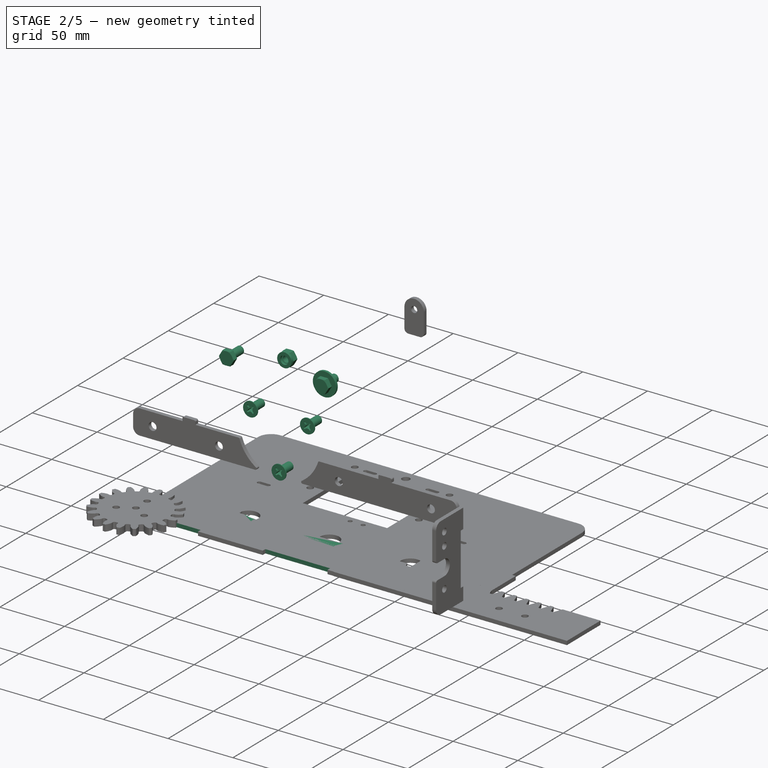
[diagram: stage 2 of 5 — iso view after this stage's code; geometry added in this stage tinted green]
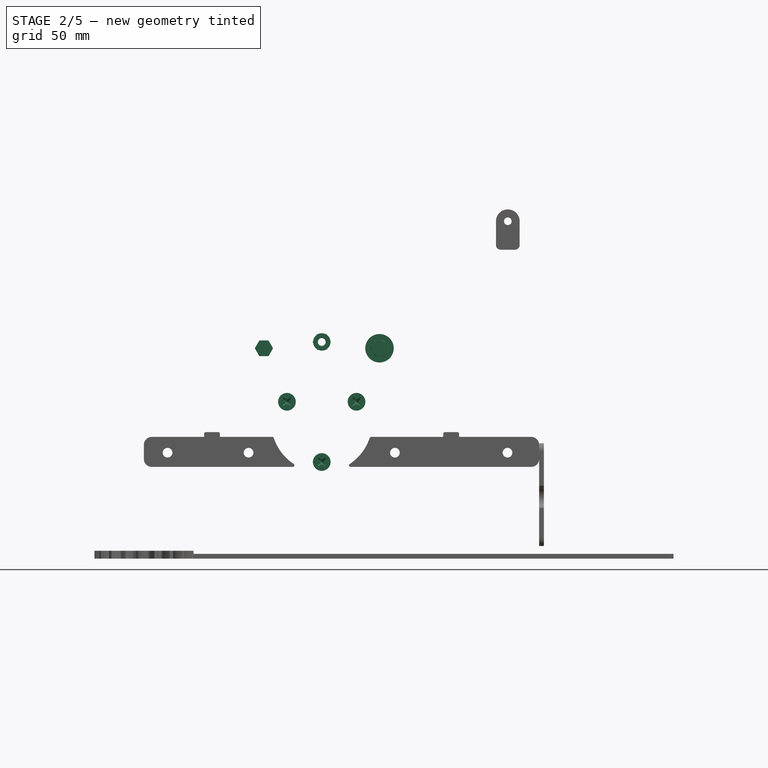
[diagram: stage 2 of 5 — front view after this stage's code; geometry added in this stage tinted green]
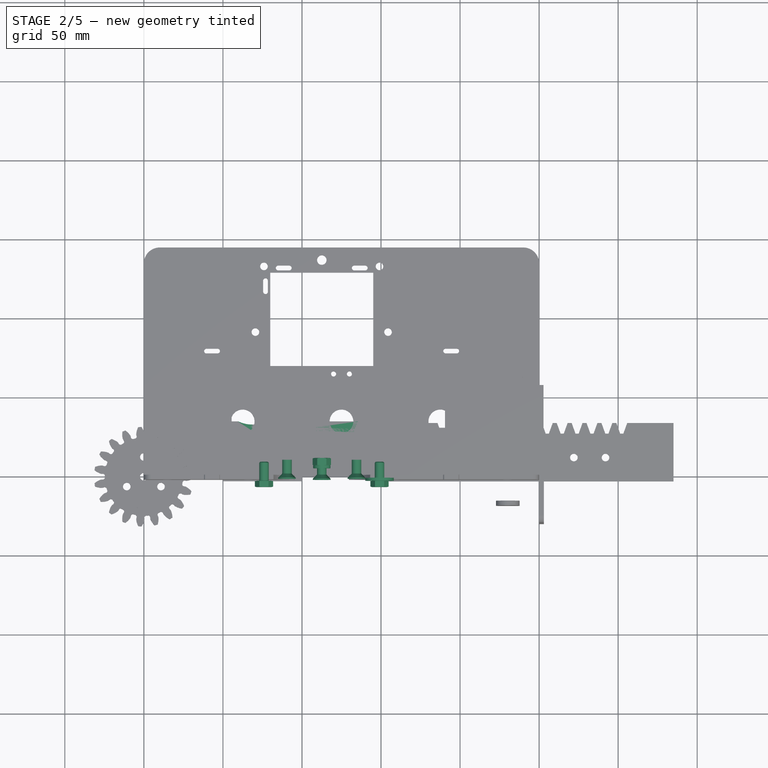
[diagram: stage 2 of 5 — top view after this stage's code; geometry added in this stage tinted green]
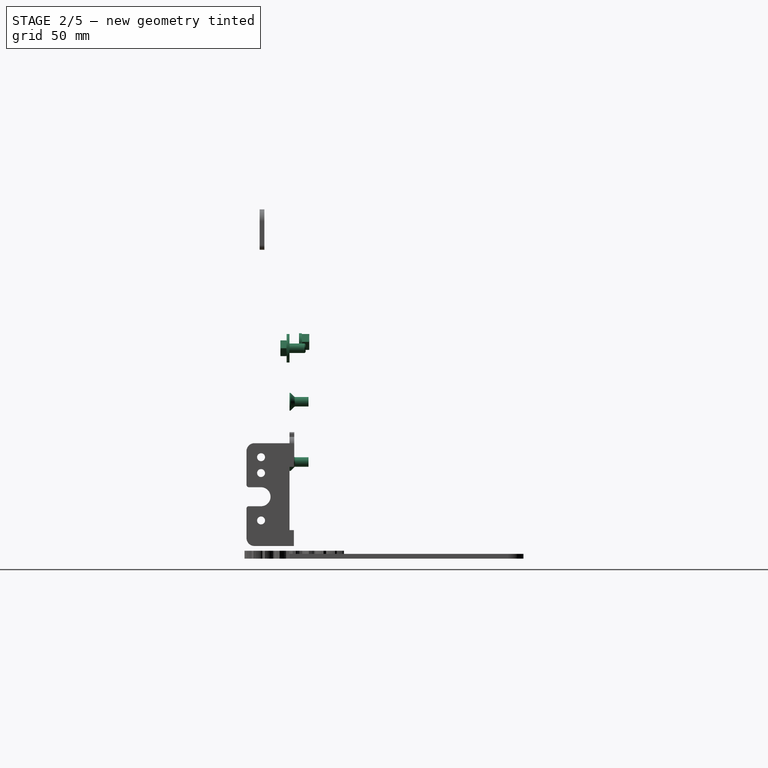
[diagram: stage 2 of 5 — right view after this stage's code; geometry added in this stage tinted green]
FEATURE [PartDesign::Body] Body001  label="Bodenplatte"
  Group = -> [Sketch001,Pad001]
  Origin = -> Origin001
  Tip = -> Pad001
FEATURE [Sketcher::SketchObject] Sketch002
  FullyConstrained = true
  MapMode = 5
  Support = -> [XY_Plane002]
  expr: Constraints[44] = 65mm / 2
  sketch-geometry (23):
    g0: LineSegment StartX=-32.5 StartY=42.5 StartZ=0 EndX=32.5 EndY=42.5 EndZ=0
    g1: LineSegment StartX=32.5 StartY=42.5 StartZ=0 EndX=32.5 EndY=-32.5 EndZ=0
    g2: LineSegment StartX=32.5 StartY=-32.5 StartZ=0 EndX=-32.5 EndY=-32.5 EndZ=0
    g3: LineSegment StartX=-32.5 StartY=-32.5 StartZ=0 EndX=-32.5 EndY=42.5 EndZ=0
    g4: LineSegment StartX=22 StartY=-12.7017 StartZ=0 EndX=22 EndY=12.7017 EndZ=0
    g5: LineSegment StartX=22 StartY=12.7017 StartZ=0 EndX=0 EndY=25.4034 EndZ=0
    g6: LineSegment StartX=0 StartY=25.4034 StartZ=0 EndX=-22 EndY=12.7017 EndZ=0
    g7: LineSegment StartX=-22 StartY=12.7017 StartZ=0 EndX=-22 EndY=-12.7017 EndZ=0
    g8: LineSegment StartX=-22 StartY=-12.7017 StartZ=0 EndX=0 EndY=-25.4034 EndZ=0
    g9: LineSegment StartX=0 StartY=-25.4034 StartZ=0 EndX=22 EndY=-12.7017 EndZ=0
    g10: Circle CenterX=0 CenterY=0 CenterZ=0 NormalX=0 NormalY=0 NormalZ=1 AngleXU=0 Radius=25.4034
    g11: Circle CenterX=0 CenterY=25.4034 CenterZ=0 NormalX=0 NormalY=0 NormalZ=1 AngleXU=0 Radius=3.05
    g12: Circle CenterX=-22 CenterY=12.7017 CenterZ=0 NormalX=0 NormalY=0 NormalZ=1 AngleXU=0 Radius=3.05
    g13: Circle CenterX=-22 CenterY=-12.7017 CenterZ=0 NormalX=0 NormalY=0 NormalZ=1 AngleXU=0 Radius=3.05
    g14: Circle CenterX=0 CenterY=-25.4034 CenterZ=0 NormalX=0 NormalY=0 NormalZ=1 AngleXU=0 Radius=3.05
    g15: Circle CenterX=22 CenterY=12.7017 CenterZ=0 NormalX=0 NormalY=0 NormalZ=1 AngleXU=0 Radius=3.05
    g16: Circle CenterX=22 CenterY=-12.7017 CenterZ=0 NormalX=0 NormalY=0 NormalZ=1 AngleXU=0 Radius=3.05
    g17: Circle CenterX=0 CenterY=0 CenterZ=0 NormalX=0 NormalY=0 NormalZ=1 AngleXU=0 Radius=9
    g18: ArcOfCircle CenterX=-22.5 CenterY=36.375 CenterZ=0 NormalX=0 NormalY=0 NormalZ=1 AngleXU=0 Radius=0.125 StartAngle=1.5708 EndAngle=4.71239
    g19: ArcOfCircle CenterX=22.5 CenterY=36.375 CenterZ=0 NormalX=0 NormalY=0 NormalZ=1 AngleXU=0 Radius=0.125 StartAngle=4.71239 EndAngle=7.85398
    g20: LineSegment StartX=-22.5 StartY=36.25 StartZ=0 EndX=22.5 EndY=36.25 EndZ=0
    g21: LineSegment StartX=22.5 StartY=36.5 StartZ=0 EndX=-22.5 EndY=36.5 EndZ=0
    g22: Circle CenterX=0 CenterY=0 CenterZ=0 NormalX=0 NormalY=0 NormalZ=1 AngleXU=0 Radius=12.5
  constraints (52):
    c: Coincident(g0,g1)
    c: Coincident(g1,g2)
    c: Coincident(g2,g3)
    c: Coincident(g3,g0)
    c: Horizontal(g0)
    c: Vertical(g1)
    c: Vertical(g3)
    c: Coincident(g4,g5)
    c: Coincident(g5,g6)
    c: Coincident(g6,g7)
    c: Coincident(g7,g8)
    c: Coincident(g8,g9)
    c: Coincident(g9,g4)
    c: Equal(g4, g5-g9) x5
    c: PointOnObject(g4,g10)
    c: PointOnObject(g5,g10)
    c: PointOnObject(g6,g10)
    c: PointOnObject(g7,g10)
    c: PointOnObject(g8,g10)
    c: PointOnObject(g9,g10)
    c: Coincident(g10,g-1)
    c: Vertical(g7)
    c: Distance(g6,g8) = 44
    c: Coincident(g11,g5)
    c: Diameter(g11) = 6.1
    c: Equal(g11,g12) = 6.1
    c: Coincident(g12,g6)
    c: Equal(g11,g13) = 6.1
    c: Coincident(g13,g7)
    c: Equal(g11,g14) = 6.1
    c: Coincident(g14,g8)
    c: Equal(g11,g15) = 6.1
    c: Coincident(g15,g4)
    c: Equal(g11,g16) = 6.1
    c: Coincident(g16,g4)
    c: Coincident(g17,g-1)
    c: Diameter(g17) = 18
    c: DistanceX(g2,g2) = 65
    c: Symmetric(g2,g1,g-2)
    c: DistanceY(g1,g1) = 75
    c: DistanceY(g2,g17) = 32.5
    c: Tangent(g18,g20) = -1.5708
    c: Tangent(g20,g19) = -1.5708
    c: Tangent(g19,g21) = -1.5708
    c: Tangent(g21,g18) = -1.5708
    c: Equal(g18,g19)
    c: DistanceY(g18,g18) = 0.25
    c: DistanceY(g18,g0) = 6
    c: Symmetric(g18,g19,g-2)
    c: DistanceX(g0,g18) = 10
    c: Coincident(g22,g17)
    c: Diameter(g22) = 25
FEATURE [PartDesign::Pad] Pad002
  Direction = (0,0,1)
  Length = 3
  Length2 = 100
  Profile = -> Sketch002
  Type = 0
FEATURE [PartDesign::Body] Body002  label="Motoradapter"
  Group = -> [Sketch002,Pad002]
  Origin = -> Origin002
  Placement = pos=(112.5,1.9e-14,86.5) rot=(1,0,0;1.5708rad)
  Tip = -> Pad002
FEATURE [Sketcher::SketchObject] Sketch003
  FullyConstrained = true
  MapMode = 5
  Support = -> [XY_Plane003]
  sketch-geometry (46):
    g0: LineSegment StartX=5 StartY=1.0836e-12 StartZ=0 EndX=245 EndY=1.0836e-12 EndZ=0
    g1: LineSegment StartX=245 StartY=16 StartZ=0 EndX=232.6 EndY=16 EndZ=0
    g2: LineSegment StartX=4.4e-15 StartY=11 StartZ=0 EndX=4.4e-15 EndY=5 EndZ=0
    g3: ArcOfCircle CenterX=5 CenterY=11 CenterZ=0 NormalX=0 NormalY=0 NormalZ=1 AngleXU=0 Radius=5 StartAngle=1.5708 EndAngle=3.14159
    g4: ArcOfCircle CenterX=245 CenterY=11 CenterZ=0 NormalX=0 NormalY=0 NormalZ=1 AngleXU=0 Radius=5 StartAngle=1.78e-14 EndAngle=1.5708
    g5: ArcOfCircle CenterX=5 CenterY=5 CenterZ=0 NormalX=0 NormalY=0 NormalZ=1 AngleXU=0 Radius=5 StartAngle=3.14159 EndAngle=4.71239
    g6: ArcOfCircle CenterX=245 CenterY=5 CenterZ=0 NormalX=0 NormalY=0 NormalZ=1 AngleXU=0 Radius=5 StartAngle=4.71239 EndAngle=6.28319
    g7: ArcOfCircle CenterX=22.4 CenterY=8 CenterZ=0 NormalX=0 NormalY=0 NormalZ=1 AngleXU=0 Radius=3.05 StartAngle=3.1741e-12 EndAngle=3.14159
    g8: ArcOfCircle CenterX=22.4 CenterY=6 CenterZ=0 NormalX=0 NormalY=0 NormalZ=1 AngleXU=0 Radius=3.05 StartAngle=3.14159 EndAngle=6.28319
    g9: LineSegment StartX=19.35 StartY=8 StartZ=0 EndX=19.35 EndY=6 EndZ=0
    g10: LineSegment StartX=25.45 StartY=8 StartZ=0 EndX=25.45 EndY=6 EndZ=0
    g11: ArcOfCircle CenterX=227.6 CenterY=8 CenterZ=0 NormalX=0 NormalY=0 NormalZ=1 AngleXU=0 Radius=3.05 StartAngle=2e-15 EndAngle=3.14159
    g12: ArcOfCircle CenterX=227.6 CenterY=6 CenterZ=0 NormalX=0 NormalY=0 NormalZ=1 AngleXU=0 Radius=3.05 StartAngle=3.14159 EndAngle=6.28319
    g13: LineSegment StartX=224.55 StartY=8 StartZ=0 EndX=224.55 EndY=6 EndZ=0
    g14: LineSegment StartX=230.65 StartY=8 StartZ=0 EndX=230.65 EndY=6 EndZ=0
    g15: ArcOfCircle CenterX=125 CenterY=8 CenterZ=0 NormalX=0 NormalY=0 NormalZ=1 AngleXU=0 Radius=3.05 StartAngle=-8e-15 EndAngle=3.14159
    g16: ArcOfCircle CenterX=125 CenterY=6 CenterZ=0 NormalX=0 NormalY=0 NormalZ=1 AngleXU=0 Radius=3.05 StartAngle=3.14159 EndAngle=6.28319
    g17: LineSegment StartX=121.95 StartY=8 StartZ=0 EndX=121.95 EndY=6 EndZ=0
    g18: LineSegment StartX=128.05 StartY=8 StartZ=0 EndX=128.05 EndY=6 EndZ=0
    g19: ArcOfCircle CenterX=73.7 CenterY=8 CenterZ=0 NormalX=0 NormalY=0 NormalZ=1 AngleXU=0 Radius=3.05 StartAngle=0 EndAngle=3.14159
    g20: ArcOfCircle CenterX=73.7 CenterY=6 CenterZ=0 NormalX=0 NormalY=0 NormalZ=1 AngleXU=0 Radius=3.05 StartAngle=3.14159 EndAngle=6.28319
    g21: LineSegment StartX=70.65 StartY=8 StartZ=0 EndX=70.65 EndY=6 EndZ=0
    g22: LineSegment StartX=76.75 StartY=8 StartZ=0 EndX=76.75 EndY=6 EndZ=0
    g23: ArcOfCircle CenterX=176.3 CenterY=8 CenterZ=0 NormalX=0 NormalY=0 NormalZ=1 AngleXU=0 Radius=3.05 StartAngle=0 EndAngle=3.14159
    g24: ArcOfCircle CenterX=176.3 CenterY=6 CenterZ=0 NormalX=0 NormalY=0 NormalZ=1 AngleXU=0 Radius=3.05 StartAngle=3.14159 EndAngle=6.28319
    g25: LineSegment StartX=173.25 StartY=8 StartZ=0 EndX=173.25 EndY=6 EndZ=0
    g26: LineSegment StartX=179.35 StartY=8 StartZ=0 EndX=179.35 EndY=6 EndZ=0
    g27: LineSegment StartX=250 StartY=11 StartZ=0 EndX=250 EndY=5 EndZ=0
    g28: LineSegment StartX=19.4 StartY=19 StartZ=0 EndX=25.4 EndY=19 EndZ=0
    g29: LineSegment StartX=27.4 StartY=17 StartZ=0 EndX=27.4 EndY=16 EndZ=0
    g30: LineSegment StartX=17.4 StartY=16 StartZ=0 EndX=17.4 EndY=17 EndZ=0
    g31: ArcOfCircle CenterX=19.4 CenterY=17 CenterZ=0 NormalX=0 NormalY=0 NormalZ=1 AngleXU=0 Radius=2 StartAngle=1.5708 EndAngle=3.14159
    g32: GeomPoint X=17.4 Y=19 Z=0
    g33: ArcOfCircle CenterX=25.4 CenterY=17 CenterZ=0 NormalX=0 NormalY=0 NormalZ=1 AngleXU=0 Radius=2 StartAngle=7.7e-15 EndAngle=1.5708
    g34: GeomPoint X=27.4 Y=19 Z=0
    g35: GeomPoint X=22.4 Y=19 Z=0
    g36: LineSegment StartX=224.6 StartY=19 StartZ=0 EndX=230.6 EndY=19 EndZ=0
    g37: LineSegment StartX=232.6 StartY=17 StartZ=0 EndX=232.6 EndY=16 EndZ=0
    g38: LineSegment StartX=222.6 StartY=16 StartZ=0 EndX=222.6 EndY=17 EndZ=0
    g39: ArcOfCircle CenterX=224.6 CenterY=17 CenterZ=0 NormalX=0 NormalY=0 NormalZ=1 AngleXU=0 Radius=2 StartAngle=1.5708 EndAngle=3.14159
    g40: GeomPoint X=222.6 Y=19 Z=0
    g41: ArcOfCircle CenterX=230.6 CenterY=17 CenterZ=0 NormalX=0 NormalY=0 NormalZ=1 AngleXU=0 Radius=2 StartAngle=6.5e-15 EndAngle=1.5708
    g42: GeomPoint X=232.6 Y=19 Z=0
    g43: LineSegment StartX=17.4 StartY=16 StartZ=0 EndX=5 EndY=16 EndZ=0
    g44: LineSegment StartX=222.6 StartY=16 StartZ=0 EndX=27.4 EndY=16 EndZ=0
    g45: GeomPoint X=227.6 Y=19 Z=0
  constraints (112):
    c: Horizontal(g0)
    c: Horizontal(g1)
    c: Vertical(g2)
    c: Coincident(g43,g3) = -1.5708
    c: Tangent(g2,g3) = -1.5708
    c: Tangent(g1,g4) = -1.5708
    c: Radius(g4) = 5
    c: Equal(g4,g3)
    c: Tangent(g2,g5) = -1.5708
    c: Tangent(g0,g5) = -1.5708
    c: Tangent(g0,g6) = -1.5708
    c: Equal(g4,g6)
    c: Equal(g3,g5)
    c: DistanceY(g0,g43) = 16
    c: PointOnObject(g0,g-1)
    c: PointOnObject(g2,g-2)
    c: Tangent(g7,g10) = 1.5708
    c: Tangent(g7,g9) = -1.5708
    c: Tangent(g9,g8) = -1.5708
    c: Tangent(g10,g8) = 1.5708
    c: Vertical(g9)
    c: Equal(g7,g8)
    c: DistanceX(g7,g7) = 6.1
    c: DistanceY(g8,g7) = 2
    c: DistanceX(g2,g7) = 22.4
    c: Tangent(g11,g14) = 1.5708
    c: Tangent(g11,g13) = -1.5708
    c: Tangent(g13,g12) = -1.5708
    c: Tangent(g14,g12) = 1.5708
    c: Vertical(g13)
    c: Equal(g11,g12)
    c: Equal(g7,g11) = 6.1
    c: DistanceY(g12,g11) = 2
    c: Horizontal(g8,g12)
    c: Tangent(g15,g18) = 1.5708
    c: Tangent(g15,g17) = -1.5708
    c: Tangent(g17,g16) = -1.5708
    c: Tangent(g18,g16) = 1.5708
    c: Vertical(g17)
    c: Equal(g15,g16)
    c: Equal(g7,g15) = 6.1
    c: DistanceY(g16,g15) = 2
    c: Symmetric(g8,g12,g16)
    c: Tangent(g19,g22) = 1.5708
    c: Tangent(g19,g21) = -1.5708
    c: Tangent(g21,g20) = -1.5708
    c: Tangent(g22,g20) = 1.5708
    c: Vertical(g21)
    c: Equal(g19,g20)
    c: Equal(g7,g19) = 6.1
    c: DistanceY(g20,g19) = 2
    c: Tangent(g23,g26) = 1.5708
    c: Tangent(g23,g25) = -1.5708
    c: Tangent(g25,g24) = -1.5708
    c: Tangent(g26,g24) = 1.5708
    c: Vertical(g25)
    c: Equal(g23,g24)
    c: Equal(g7,g23) = 6.1
    c: DistanceY(g24,g23) = 2
    c: Symmetric(g8,g16,g20)
    c: Symmetric(g16,g12,g24)
    c: DistanceY(g7,g43) = 8
    c: DistanceX(g2,g6) = 250
    c: Coincident(g27,g4)
    c: Coincident(g27,g6)
    c: Vertical(g27)
    c: DistanceX(g11,g4) = 22.4
    c: Horizontal(g4,g2)
    c: Horizontal(g6,g2)
    c: Horizontal(g28)
    c: Vertical(g29)
    c: Vertical(g30)
    c: PointOnObject(g32,g28)
    c: PointOnObject(g32,g30)
    c: Tangent(g28,g31) = 1.5708
    c: Tangent(g30,g31) = 1.5708
    c: PointOnObject(g34,g28)
    c: PointOnObject(g34,g29)
    c: Tangent(g28,g33) = 1.5708
    c: Tangent(g29,g33) = 1.5708
    c: Equal(g31,g33)
    c: Radius(g31) = 2
    c: DistanceY(g43,g28) = 3
    c: DistanceX(g32,g34) = 10
    c: Symmetric(g28,g28,g35)
    c: Horizontal(g36)
    c: Vertical(g37)
    c: Vertical(g38)
    c: PointOnObject(g40,g36)
    c: PointOnObject(g40,g38)
    c: Tangent(g36,g39) = 1.5708
    c: Tangent(g38,g39) = 1.5708
    c: PointOnObject(g42,g36)
    c: PointOnObject(g42,g37)
    c: Tangent(g36,g41) = 1.5708
    c: Tangent(g37,g41) = 1.5708
    c: Equal(g28,g36)
    c: Equal(g33,g39)
    c: Equal(g39,g41)
    c: Coincident(g29,g44)
    c: Coincident(g30,g43)
    c: Coincident(g1,g37)
    c: Coincident(g44,g38)
    c: Horizontal(g44)
    c: DistanceY(g38,g36) = 3
    c: Horizontal(g43)
    c: Horizontal(g30,g29)
    c: Vertical(g7,g35)
    c: Symmetric(g36,g36,g45)
    c: Vertical(g45,g11)
    c: Horizontal(g38,g1)
    c: Vertical(g0,g3)
FEATURE [PartDesign::Pad] Pad003
  Direction = (0,0,1)
  Length = 3
  Length2 = 100
  Profile = -> Sketch003
  Type = 0
FEATURE [PartDesign::Body] Body003  label="SlideBottom"
  Group = -> [Sketch003,Pad003]
  Origin = -> Origin003
  Placement = pos=(0,-6,24) rot=(-1,0,0;1.5708rad)
  Tip = -> Pad003
FEATURE [Sketcher::SketchObject] Sketch004
  FullyConstrained = true
  MapMode = 5
  Support = -> [XY_Plane004]
  sketch-geometry (13):
    g0: LineSegment StartX=5 StartY=0 StartZ=0 EndX=245 EndY=0 EndZ=0
    g1: LineSegment StartX=250 StartY=5 StartZ=0 EndX=250 EndY=14 EndZ=0
    g2: LineSegment StartX=245 StartY=19 StartZ=0 EndX=5 EndY=19 EndZ=0
    g3: LineSegment StartX=0 StartY=14 StartZ=0 EndX=0 EndY=5 EndZ=0
    g4: ArcOfCircle CenterX=5 CenterY=14 CenterZ=0 NormalX=0 NormalY=0 NormalZ=1 AngleXU=0 Radius=5 StartAngle=1.5708 EndAngle=3.14159
    g5: ArcOfCircle CenterX=5 CenterY=5 CenterZ=0 NormalX=0 NormalY=0 NormalZ=1 AngleXU=0 Radius=5 StartAngle=3.14159 EndAngle=4.71239
    g6: ArcOfCircle CenterX=245 CenterY=14 CenterZ=0 NormalX=0 NormalY=0 NormalZ=1 AngleXU=0 Radius=5 StartAngle=1e-16 EndAngle=1.5708
    g7: ArcOfCircle CenterX=245 CenterY=5 CenterZ=0 NormalX=0 NormalY=0 NormalZ=1 AngleXU=0 Radius=5 StartAngle=4.71239 EndAngle=6.28319
    g8: Circle CenterX=22.4 CenterY=9 CenterZ=0 NormalX=0 NormalY=0 NormalZ=1 AngleXU=0 Radius=3
    g9: Circle CenterX=227.6 CenterY=9 CenterZ=0 NormalX=0 NormalY=0 NormalZ=1 AngleXU=0 Radius=3
    g10: Circle CenterX=125 CenterY=9 CenterZ=0 NormalX=0 NormalY=0 NormalZ=1 AngleXU=0 Radius=3
    g11: Circle CenterX=176.3 CenterY=9 CenterZ=0 NormalX=0 NormalY=0 NormalZ=1 AngleXU=0 Radius=3
    g12: Circle CenterX=73.7 CenterY=9 CenterZ=0 NormalX=0 NormalY=0 NormalZ=1 AngleXU=0 Radius=3
  constraints (32):
    c: Horizontal(g0)
    c: Horizontal(g2)
    c: Vertical(g1)
    c: Vertical(g3)
    c: Tangent(g2,g4) = -1.5708
    c: Tangent(g3,g4) = -1.5708
    c: Tangent(g0,g5) = -1.5708
    c: Tangent(g3,g5) = -1.5708
    c: Tangent(g2,g6) = -1.5708
    c: Tangent(g1,g6) = -1.5708
    c: Tangent(g0,g7) = -1.5708
    c: Tangent(g1,g7) = -1.5708
    c: Radius(g4) = 5
    c: Equal(g4,g5)
    c: Equal(g6,g7)
    c: DistanceX(g3,g1) = 250
    c: DistanceY(g0,g2) = 19
    c: PointOnObject(g3,g-2)
    c: PointOnObject(g0,g-1)
    c: Diameter(g8) = 6
    c: DistanceX(g3,g8) = 22.4
    c: Equal(g8,g9) = 6
    c: Horizontal(g8,g9)
    c: DistanceX(g9,g1) = 22.4
    c: Symmetric(g8,g9,g10)
    c: Symmetric(g10,g9,g11)
    c: Symmetric(g8,g10,g12)
    c: Equal(g8,g12)
    c: Equal(g8,g10)
    c: Equal(g8,g11)
    c: DistanceY(g8,g2) = 10
    c: Equal(g4,g6)
FEATURE [PartDesign::Pad] Pad004
  Direction = (0,0,1)
  Length = 3
  Length2 = 100
  Profile = -> Sketch004
  Type = 0
FEATURE [Sketcher::SketchObject] Sketch009
  FullyConstrained = true
  MapMode = 5
  Support = -> [XY_Plane009]
  expr: Constraints[21] = 141mm / 2
  expr: Constraints[22] = 70.5mm / 2
  expr: Constraints[23] = 70.5mm / 2
  sketch-geometry (20):
    g0: LineSegment StartX=5.5 StartY=35 StartZ=0 EndX=59.3348 EndY=35 EndZ=0
    g1: LineSegment StartX=141 StartY=29.5001 StartZ=0 EndX=141 EndY=7.49994 EndZ=0
    g2: LineSegment StartX=135.475 StartY=2 StartZ=0 EndX=5.5 EndY=2 EndZ=0
    g3: LineSegment StartX=-5.1203e-12 StartY=7.5 StartZ=0 EndX=-5.1203e-12 EndY=29.5 EndZ=0
    g4: ArcOfCircle CenterX=135.5 CenterY=29.5001 CenterZ=0 NormalX=0 NormalY=0 NormalZ=1 AngleXU=0 Radius=5.5 StartAngle=7.67e-14 EndAngle=1.57531
    g5: ArcOfCircle CenterX=135.5 CenterY=7.49994 CenterZ=0 NormalX=0 NormalY=0 NormalZ=1 AngleXU=0 Radius=5.5 StartAngle=4.70787 EndAngle=6.28319
    g6: ArcOfCircle CenterX=5.5 CenterY=29.5 CenterZ=0 NormalX=0 NormalY=0 NormalZ=1 AngleXU=0 Radius=5.5 StartAngle=1.5708 EndAngle=3.14159
    g7: ArcOfCircle CenterX=5.5 CenterY=7.5 CenterZ=0 NormalX=0 NormalY=0 NormalZ=1 AngleXU=0 Radius=5.5 StartAngle=3.14159 EndAngle=4.71239
    g8: Circle CenterX=5.5 CenterY=16.5 CenterZ=0 NormalX=0 NormalY=0 NormalZ=1 AngleXU=0 Radius=2.5
    g9: Circle CenterX=70.5 CenterY=30 CenterZ=0 NormalX=0 NormalY=0 NormalZ=1 AngleXU=0 Radius=2
    g10: Circle CenterX=35.25 CenterY=30 CenterZ=0 NormalX=0 NormalY=0 NormalZ=1 AngleXU=0 Radius=2
    g11: Circle CenterX=105.75 CenterY=30 CenterZ=0 NormalX=0 NormalY=0 NormalZ=1 AngleXU=0 Radius=2
    g12: LineSegment StartX=5.5 StartY=16.5 StartZ=0 EndX=141 EndY=16.5 EndZ=0
    g13: Circle CenterX=135.5 CenterY=6 CenterZ=0 NormalX=0 NormalY=0 NormalZ=1 AngleXU=0 Radius=2.5
    g14: Circle CenterX=135.5 CenterY=29 CenterZ=0 NormalX=0 NormalY=0 NormalZ=1 AngleXU=0 Radius=2.5
    g15: Circle CenterX=68.5 CenterY=66 CenterZ=0 NormalX=0 NormalY=0 NormalZ=1 AngleXU=0 Radius=4
    g16: ArcOfCircle CenterX=68.5 CenterY=53 CenterZ=0 NormalX=0 NormalY=0 NormalZ=1 AngleXU=0 Radius=20 StartAngle=4.28269 EndAngle=5.14209
    g17: LineSegment StartX=77.6652 StartY=35 StartZ=0 EndX=135.475 EndY=35 EndZ=0
    g18: ArcOfCircle CenterX=77.6652 CenterY=33 CenterZ=0 NormalX=0 NormalY=0 NormalZ=1 AngleXU=0 Radius=2 StartAngle=1.5708 EndAngle=2.0005
    g19: ArcOfCircle CenterX=59.3348 CenterY=33 CenterZ=0 NormalX=0 NormalY=0 NormalZ=1 AngleXU=0 Radius=2 StartAngle=1.1411 EndAngle=1.5708
  constraints (57):
    c: Horizontal(g0)
    c: Vertical(g1)
    c: Vertical(g3)
    c: Coincident(g17,g4) = 1.5708
    c: Tangent(g1,g4) = 1.5708
    c: Diameter(g4) = 11
    c: Tangent(g1,g5) = 1.5708
    c: Tangent(g0,g6) = 1.5708
    c: Tangent(g3,g6) = 1.5708
    c: Equal(g4,g6)
    c: Equal(g4,g7)
    c: Diameter(g8) = 5
    c: PointOnObject(g3,g-2)
    c: DistanceX(g3,g8) = 5.5
    c: DistanceX(g3,g1) = 141
    c: Diameter(g9) = 4
    c: DistanceY(g9,g0) = 5
    c: Equal(g9,g10) = 4
    c: Equal(g9,g11) = 4
    c: Horizontal(g9,g10)
    c: Horizontal(g9,g11)
    c: DistanceX(g9,g1) = 70.5
    c: DistanceX(g9,g11) = 35.25
    c: DistanceX(g10,g9) = 35.25
    c: DistanceY(g-1,g8) = 16.5
    c: DistanceY(g-1,g0) = 35
    c: Coincident(g12,g8)
    c: PointOnObject(g12,g1)
    c: Horizontal(g12)
    c: Horizontal(g2)
    c: Vertical(g17,g2)
    c: Coincident(g2,g5)
    c: Equal(g6,g5)
    c: DistanceY(g-1,g2) = 2
    c: Diameter(g13) = 5
    c: Vertical(g4,g13)
    c: DistanceY(g13,g14) = 23
    c: Vertical(g13,g14)
    c: DistanceY(g12,g14) = 12.5
    c: Tangent(g7,g3) = 1.5708
    c: Tangent(g7,g2) = 1.5708
    c: Equal(g13,g14)
    c: DistanceX(g3,g15) = 68.5
    c: DistanceY(g2,g15) = 64
    c: Vertical(g16,g15)
    c: Radius(g16) = 20
    c: DistanceY(g17,g16) = 18
    c: Horizontal(g17)
    c: Tangent(g17,g18) = 1.5708
    c: Tangent(g16,g18) = 1.5708
    c: Tangent(g16,g19) = 1.5708
    c: Tangent(g0,g19) = 1.5708
    c: Radius(g18) = 2
    c: Horizontal(g0,g4)
    c: Equal(g18,g19)
    c: DistanceX(g17,g17) = 57.81
    c: Radius(g15) = 4
FEATURE [PartDesign::Pad] Pad009
  Direction = (0,0,1)
  Length = 3
  Length2 = 100
  Profile = -> Sketch009
  Type = 0
FEATURE [Part::FeaturePython] Washer013  label="M6-Washer1800"  # Fasteners workbench fastener (typed FeaturePython)
  Placement = pos=(149.05,-4.8,133.05) rot=(-1,0,0;1.5708rad)
  diameter = 5
  invert = false
  leftHanded = false
  matchOuter = false
  offset = 0
  type = 6
FEATURE [Part::Feature] Part__Feature001  label="Klemmhebel"
  Placement = pos=(112.55,-3,137.05) rot=(0.92388,0,-0.382683;3.14159rad)
  shape: bbox 65.39 x 59.2 x 65.39 mm, 33 faces (baked)
FEATURE [Part::FeaturePython] Nut001  label="M6-Nut"  # Fasteners workbench fastener (typed FeaturePython)
  Placement = pos=(112.55,4.8,137.05) rot=(-1,0,0;1.5708rad)
  diameter = 8
  invert = false
  leftHanded = false
  matchOuter = false
  offset = 0
  thread = false
  type = 7
FEATURE [Part::FeaturePython] Washer014  label="M6-Washer1801"  # Fasteners workbench fastener (typed FeaturePython)
  Placement = pos=(112.55,3,137.05) rot=(-1,0,0;1.5708rad)
  diameter = 7
  invert = false
  leftHanded = false
  matchOuter = false
  offset = 0
  type = 5
FEATURE [Part::FeaturePython] Screw012  label="M6x12-Screw1988"  # Fasteners workbench fastener (typed FeaturePython)
  Placement = pos=(149.05,-4.8,133.05) rot=(1,0,0;1.5708rad)
  diameter = 8
  invert = false
  leftHanded = false
  length = 0
  lengthCustom = 12
  matchOuter = false
  offset = 0
  thread = false
  type = 29
FEATURE [Part::FeaturePython] Screw013  label="M6x12-Screw1989"  # Fasteners workbench fastener (typed FeaturePython)
  Placement = pos=(75.95,-4.8,133.05) rot=(1,0,0;1.5708rad)
  diameter = 8
  invert = false
  leftHanded = false
  length = 0
  lengthCustom = 12
  matchOuter = false
  offset = 0
  thread = false
  type = 29
FEATURE [Part::Feature] trajectory_line
  shape: bbox 73.1 x 20 x 2.04e-07 mm, 0 faces, 0 solids (baked)
FEATURE [Part::Feature] trajectory_line003
  shape: bbox 2e-07 x 20 x 2e-07 mm, 0 faces, 0 solids (baked)
FEATURE [Part::Feature] trajectory_line006
  shape: bbox 2e-07 x 2e-07 x 20 mm, 0 faces, 0 solids (baked)
FEATURE [Part::Feature] trajectory_line009
  shape: bbox 2e-07 x 20 x 2e-07 mm, 0 faces, 0 solids (baked)
FEATURE [Part::Feature] trajectory_line016
  shape: bbox 2e-07 x 20 x 2e-07 mm, 0 faces, 0 solids (baked)
FEATURE [Part::Feature] trajectory_line024
  shape: bbox 2e-07 x 20 x 2e-07 mm, 0 faces, 0 solids (baked)
FEATURE [Part::Feature] trajectory_line040
  shape: bbox 44 x 58.11 x 2e-07 mm, 0 faces, 0 solids (baked)
FEATURE [Part::FeaturePython] Screw017  label="M6x12-Screw1991"  # Fasteners workbench fastener (typed FeaturePython)
  Placement = pos=(90.5,-3,99.2017) rot=(1,0,0;1.5708rad)
  baseObject = -> Body002 [Edge39]
  diameter = 8
  invert = false
  leftHanded = false
  length = 2
  lengthCustom = 12
  matchOuter = false
  offset = 0
  thread = false
  type = 36
FEATURE [Part::FeaturePython] Screw018  label="M6x12-Screw1992"  # Fasteners workbench fastener (typed FeaturePython)
  Placement = pos=(112.5,-3,61.0966) rot=(1,0,0;1.5708rad)
  baseObject = -> Body002 [Edge42]
  diameter = 8
  invert = false
  leftHanded = false
  length = 2
  lengthCustom = 12
  matchOuter = false
  offset = 0
  thread = false
  type = 36
FEATURE [Part::FeaturePython] Screw015  label="M6x12-Screw1990"  # Fasteners workbench fastener (typed FeaturePython)
  Placement = pos=(134.5,-3,99.2017) rot=(1,0,0;1.5708rad)
  diameter = 8
  invert = false
  leftHanded = false
  length = 2
  lengthCustom = 12
  matchOuter = false
  offset = 0
  thread = false
  type = 36
FEATURE [App::DocumentObjectGroup] Group  label="Fasteners"
  Group = -> [Body027,Body031,Body028,Body026,Body033,Body032,Body034,Body035,Body036,Body037,Washer,Washer001,Washer002,Washer003,Washer004,Washer006,Washer007,Washer008,Washer009,Screw,Screw001,Screw002,Screw003,Screw004,Screw005,Screw006,Screw007,Screw008,Washer010,Washer011,Screw010,Screw011,Nut,Washer012,Washer013,Screw012,Screw013,Screw015,Nut001,Washer014,Screw017,Screw018]
FEATURE [Part::Feature] trajectory_line056
  shape: bbox 44 x 2e-07 x 58.11 mm, 0 faces, 0 solids (baked)
FEATURE [Part::Feature] trajectory_line072
  shape: bbox 44 x 20 x 38.11 mm, 0 faces, 0 solids (baked)
FEATURE [Part::Feature] Part__Feature002  label="Druckstuck"
  Placement = pos=(76.2957,-14.1,36.99) rot=(0,0,1;0rad)
  shape: bbox 6 x 15 x 6 mm, 16 faces (baked)
FEATURE [Part::Feature] trajectory_line073
  shape: bbox 215 x 86.2 x 115.1 mm, 0 faces, 0 solids (baked)
FEATURE [App::DocumentObjectGroupPython] BoltGroup  # scripted group (container) (typed FeaturePython)
  AnimationStepTime = 0.01
  AnimationSteps = 150
  Distance = 80
  Group = -> [trajectory_line073]
  Revolutions = 10
FEATURE [Part::Feature] trajectory_line074
  shape: bbox 2e-07 x 60 x 2e-07 mm, 0 faces, 0 solids (baked)
FEATURE [App::DocumentObjectGroupPython] SimpleGroup  # scripted group (container) (typed FeaturePython)
  AnimationStepTime = 0
  AnimationSteps = 120
  Distance = 60
  Group = -> [trajectory_line074]
  Revolutions = 0
FEATURE [Part::Feature] trajectory_line075
  shape: bbox 2e-07 x 2e-07 x 55 mm, 0 faces, 0 solids (baked)
FEATURE [App::DocumentObjectGroupPython] SimpleGroup001  # scripted group (container) (typed FeaturePython)
  AnimationStepTime = 0
  AnimationSteps = 20
  Distance = 55
  Group = -> [trajectory_line075]
  Revolutions = 0
FEATURE [Part::Feature] trajectory_line076
  shape: bbox 2e-07 x 55 x 2e-07 mm, 0 faces, 0 solids (baked)
FEATURE [App::DocumentObjectGroupPython] SimpleGroup002  # scripted group (container) (typed FeaturePython)
  AnimationStepTime = 0
  AnimationSteps = 20
  Distance = 55
  Group = -> [trajectory_line076]
  Revolutions = 0
FEATURE [Part::Feature] trajectory_line077
  shape: bbox 2e-07 x 50 x 2e-07 mm, 0 faces, 0 solids (baked)
FEATURE [App::DocumentObjectGroupPython] SimpleGroup003  # scripted group (container) (typed FeaturePython)
  AnimationStepTime = 0
  AnimationSteps = 20
  Distance = 50
  Group = -> [trajectory_line077]
  Revolutions = 0
FEATURE [Part::Feature] trajectory_line078
  shape: bbox 2e-07 x 45 x 2e-07 mm, 0 faces, 0 solids (baked)
FEATURE [App::DocumentObjectGroupPython] BoltGroup007  label="Druckstuck001"  # scripted group (container) (typed FeaturePython)
  AnimationStepTime = 0.01
  AnimationSteps = 100
  Distance = 45
  Group = -> [trajectory_line078]
  Revolutions = 10
FEATURE [Part::Feature] trajectory_line079
  shape: bbox 2e-07 x 2e-07 x 35 mm, 0 faces, 0 solids (baked)
FEATURE [App::DocumentObjectGroupPython] SimpleGroup004  label="Slider"  # scripted group (container) (typed FeaturePython)
  AnimationStepTime = 0
  AnimationSteps = 20
  Distance = 35
  Group = -> [trajectory_line079]
  Revolutions = 0
FEATURE [Part::Feature] trajectory_line080
  shape: bbox 2e-07 x 2e-07 x 45 mm, 0 faces, 0 solids (baked)
FEATURE [App::DocumentObjectGroupPython] SimpleGroup005  # scripted group (container) (typed FeaturePython)
  AnimationStepTime = 0
  AnimationSteps = 50
  Distance = 45
  Group = -> [trajectory_line080]
  Revolutions = 0
FEATURE [Part::Feature] trajectory_line081
  shape: bbox 2e-07 x 45 x 2e-07 mm, 0 faces, 0 solids (baked)
FEATURE [App::DocumentObjectGroupPython] SimpleGroup006  # scripted group (container) (typed FeaturePython)
  AnimationStepTime = 0
  AnimationSteps = 20
  Distance = 45
  Group = -> [trajectory_line081]
  Revolutions = 0
FEATURE [Part::Feature] trajectory_line082
  shape: bbox 2e-07 x 60 x 2e-07 mm, 0 faces, 0 solids (baked)
FEATURE [App::DocumentObjectGroupPython] BoltGroup001  # scripted group (container) (typed FeaturePython)
  AnimationStepTime = 0.01
  AnimationSteps = 100
  Distance = 60
  Group = -> [trajectory_line082]
  Revolutions = 10
FEATURE [Part::Feature] trajectory_line083
  shape: bbox 2e-07 x 50 x 2e-07 mm, 0 faces, 0 solids (baked)
FEATURE [App::DocumentObjectGroupPython] SimpleGroup007  # scripted group (container) (typed FeaturePython)
  AnimationStepTime = 0
  AnimationSteps = 20
  Distance = 50
  Group = -> [trajectory_line083]
  Revolutions = 0
FEATURE [Part::Feature] trajectory_line084
  shape: bbox 2e-07 x 40 x 2e-07 mm, 0 faces, 0 solids (baked)
FEATURE [App::DocumentObjectGroupPython] BoltGroup002  # scripted group (container) (typed FeaturePython)
  AnimationStepTime = 0.01
  AnimationSteps = 120
  Distance = 40
  Group = -> [trajectory_line084]
  Revolutions = 10
FEATURE [Part::Feature] trajectory_line085
  shape: bbox 2e-07 x 60 x 2e-07 mm, 0 faces, 0 solids (baked)
FEATURE [App::DocumentObjectGroupPython] SimpleGroup008  # scripted group (container) (typed FeaturePython)
  AnimationStepTime = 0
  AnimationSteps = 20
  Distance = 60
  Group = -> [trajectory_line085]
  Revolutions = 0
FEATURE [Part::Feature] trajectory_line086
  shape: bbox 2e-07 x 60 x 2e-07 mm, 0 faces, 0 solids (baked)
FEATURE [App::DocumentObjectGroupPython] BoltGroup003  # scripted group (container) (typed FeaturePython)
  AnimationStepTime = 0.01
  AnimationSteps = 100
  Distance = 60
  Group = -> [trajectory_line086]
  Revolutions = 10
FEATURE [Part::Feature] trajectory_line087
  shape: bbox 2e-07 x 2e-07 x 55 mm, 0 faces, 0 solids (baked)
FEATURE [App::DocumentObjectGroupPython] SimpleGroup009  # scripted group (container) (typed FeaturePython)
  AnimationStepTime = 0
  AnimationSteps = 20
  Distance = 55
  Group = -> [trajectory_line087]
  Revolutions = 0
FEATURE [Part::Feature] trajectory_line088
  shape: bbox 44 x 45 x 38.11 mm, 0 faces, 0 solids (baked)
FEATURE [App::DocumentObjectGroupPython] BoltGroup005  # scripted group (container) (typed FeaturePython)
  AnimationStepTime = 0.01
  AnimationSteps = 100
  Distance = -45
  Group = -> [trajectory_line088]
  Revolutions = 10
FEATURE [Part::Feature] trajectory_line089
  shape: bbox 2e-07 x 80 x 2e-07 mm, 0 faces, 0 solids (baked)
FEATURE [App::DocumentObjectGroupPython] SimpleGroup010  # scripted group (container) (typed FeaturePython)
  AnimationStepTime = 0
  AnimationSteps = 20
  Distance = 80
  Group = -> [trajectory_line089]
  Revolutions = 0
FEATURE [Part::Feature] trajectory_line090
  shape: bbox 130 x 60 x 10.5 mm, 0 faces, 0 solids (baked)
FEATURE [App::DocumentObjectGroupPython] BoltGroup006  # scripted group (container) (typed FeaturePython)
  AnimationStepTime = 0.01
  AnimationSteps = 100
  Distance = 60
  Group = -> [trajectory_line090]
  Revolutions = 10
FEATURE [Part::Feature] trajectory_line091
  shape: bbox 2e-07 x 50 x 2e-07 mm, 0 faces, 0 solids (baked)
FEATURE [App::DocumentObjectGroupPython] SimpleGroup011  # scripted group (container) (typed FeaturePython)
  AnimationStepTime = 0
  AnimationSteps = 20
  Distance = 50
  Group = -> [trajectory_line091]
  Revolutions = 0
FEATURE [Part::Feature] trajectory_line092
  shape: bbox 2e-07 x 2e-07 x 40 mm, 0 faces, 0 solids (baked)
FEATURE [App::DocumentObjectGroupPython] SimpleGroup012  # scripted group (container) (typed FeaturePython)
  AnimationStepTime = 0
  AnimationSteps = 35
  Distance = 40
  Group = -> [trajectory_line092]
  Revolutions = 0
FEATURE [Part::Feature] trajectory_line093
  shape: bbox 2e-07 x 2e-07 x 30 mm, 0 faces, 0 solids (baked)
FEATURE [App::DocumentObjectGroupPython] SimpleGroup013  # scripted group (container) (typed FeaturePython)
  AnimationStepTime = 0
  AnimationSteps = 20
  Distance = 30
  Group = -> [trajectory_line093]
  Revolutions = 0
FEATURE [Part::Feature] trajectory_line094
  shape: bbox 2e-07 x 2e-07 x 20 mm, 0 faces, 0 solids (baked)
FEATURE [App::DocumentObjectGroupPython] SimpleGroup014  # scripted group (container) (typed FeaturePython)
  AnimationStepTime = 0
  AnimationSteps = 20
  Distance = 20
  Group = -> [trajectory_line094]
  Revolutions = 0
FEATURE [Part::Feature] trajectory_line095
  shape: bbox 20 x 2e-07 x 2e-07 mm, 0 faces, 0 solids (baked)
FEATURE [App::DocumentObjectGroupPython] SimpleGroup015  # scripted group (container) (typed FeaturePython)
  AnimationStepTime = 0
  AnimationSteps = 20
  Distance = 20
  Group = -> [trajectory_line095]
  Revolutions = 0
FEATURE [Part::Feature] trajectory_line096
  shape: bbox 2e-07 x 2e-07 x 20 mm, 0 faces, 0 solids (baked)
FEATURE [App::DocumentObjectGroupPython] SimpleGroup016  # scripted group (container) (typed FeaturePython)
  AnimationStepTime = 0
  AnimationSteps = 20
  Distance = 20
  Group = -> [trajectory_line096]
  Revolutions = 0
FEATURE [App::DocumentObjectGroupPython] ExplodedAssembly  # scripted group (container) (typed FeaturePython)
  AnimationStep = 0
  CurrentTrajectory = 0
  Group = -> [BoltGroup,SimpleGroup,SimpleGroup001,SimpleGroup002,SimpleGroup003,BoltGroup007,SimpleGroup004,SimpleGroup005,SimpleGroup006,BoltGroup001,SimpleGroup007,BoltGroup002,SimpleGroup008,BoltGroup003,SimpleGroup009,BoltGroup005,SimpleGroup010,BoltGroup006,SimpleGroup011,SimpleGroup012,SimpleGroup013,SimpleGroup014,SimpleGroup015,SimpleGroup016]
  InAnimation = false
  RemoveAllTrajectories = false
  ResetAnimation = false
FEATURE [TechDraw::DrawSVGTemplate] Template001
  Height = 297
  Orientation = 0
  Width = 210
FEATURE [TechDraw::DrawViewPart] View005
  Caption = 3mm_A05.dxf
  CoarseView = false
  Direction = (0,-1,0)
  Focus = 100
  HardHidden = false
  IsoCount = 0
  IsoHidden = false
  IsoVisible = false
  LockPosition = false
  Perspective = false
  Rotation = 0
  Scale = 0.5
  ScaleType = 0
  SeamHidden = false
  SeamVisible = true
  SmoothHidden = false
  SmoothVisible = true
  Source = -> [Body]
  X = 74.6127
  XDirection = (1,0,0)
  Y = 107.248
FEATURE [TechDraw::DrawViewPart] View006
  Caption = 3mm_A06.dxf
  CoarseView = false
  Direction = (0,0,-1)
  Focus = 100
  HardHidden = false
  IsoCount = 0
  IsoHidden = false
  IsoVisible = false
  LockPosition = false
  Perspective = false
  Rotation = 0
  Scale = 0.5
  ScaleType = 0
  SeamHidden = false
  SeamVisible = true
  SmoothHidden = false
  SmoothVisible = true
  Source = -> [Pad001]
  X = 70.5741
  XDirection = (1,0,0)
  Y = 33.0151
FEATURE [TechDraw::DrawViewPart] View007
  Caption = 3mm_A13.dxf
  CoarseView = false
  Direction = (0,-1,0)
  Focus = 100
  HardHidden = false
  IsoCount = 0
  IsoHidden = false
  IsoVisible = false
  LockPosition = false
  Perspective = false
  Rotation = 0
  Scale = 0.5
  ScaleType = 0
  SeamHidden = false
  SeamVisible = true
  SmoothHidden = false
  SmoothVisible = true
  Source = -> [Body002]
  X = 176.488
  XDirection = (1,0,0)
  Y = 117.394
FEATURE [TechDraw::DrawViewPart] View008
  Caption = 3mm_A04.dxf
  CoarseView = false
  Direction = (0,-1,0)
  Focus = 100
  HardHidden = false
  IsoCount = 0
  IsoHidden = false
  IsoVisible = false
  LockPosition = false
  Perspective = false
  Rotation = 0
  Scale = 0.5
  ScaleType = 0
  SeamHidden = false
  SeamVisible = true
  SmoothHidden = false
  SmoothVisible = true
  Source = -> [Body003]
  X = 76.24
  XDirection = (1,0,0)
  Y = 228.039
FEATURE [TechDraw::DrawViewPart] View009
  Caption = 3mm_A07.dxf
  CoarseView = false
  Direction = (0,-1,0)
  Focus = 100
  HardHidden = false
  IsoCount = 0
  IsoHidden = false
  IsoVisible = false
  LockPosition = false
  Perspective = false
  Rotation = 0
  Scale = 0.5
  ScaleType = 0
  SeamHidden = false
  SeamVisible = true
  SmoothHidden = false
  SmoothVisible = true
  Source = -> [Body004]
  X = 76.4002
  XDirection = (1,0,0)
  Y = 206.026
FEATURE [TechDraw::DrawViewPart] View
  Caption = 3mm_A12.dxf
  CoarseView = false
  Direction = (0,-1,0)
  Focus = 100
  HardHidden = false
  IsoCount = 0
  IsoHidden = false
  IsoVisible = false
  LockPosition = false
  Perspective = false
  Rotation = 0
  Scale = 0.5
  ScaleType = 0
  SeamHidden = false
  SeamVisible = true
  SmoothHidden = false
  SmoothVisible = true
  Source = -> [Body009]
  X = 47.5076
  XDirection = (1,0,0)
  Y = 172.509
FEATURE [TechDraw::DrawViewPart] View010
  Caption = 3mm_A08.dxf
  CoarseView = false
  Direction = (0,-1,0)
  Focus = 100
  HardHidden = false
  IsoCount = 0
  IsoHidden = false
  IsoVisible = false
  LockPosition = false
  Perspective = false
  Rotation = 0
  Scale = 0.5
  ScaleType = 0
  SeamHidden = false
  SeamVisible = true
  SmoothHidden = false
  SmoothVisible = true
  Source = -> [Body015]
  X = 38.0871
  XDirection = (1,0,0)
  Y = 285.01
FEATURE [TechDraw::DrawViewPart] View011
  Caption = 3mm_A09.dxf
  CoarseView = false
  Direction = (0,-1,0)
  Focus = 100
  HardHidden = false
  IsoCount = 0
  IsoHidden = false
  IsoVisible = false
  LockPosition = false
  Perspective = false
  Rotation = 0
  Scale = 0.5
  ScaleType = 0
  SeamHidden = false
  SeamVisible = true
  SmoothHidden = false
  SmoothVisible = true
  Source = -> [Body016]
  X = 104.056
  XDirection = (1,0,0)
  Y = 285.735
FEATURE [TechDraw::DrawViewPart] View012
  Caption = 3mm_A10d.xf
  CoarseView = false
  Direction = (0,-1,0)
  Focus = 100
  HardHidden = false
  IsoCount = 0
  IsoHidden = false
  IsoVisible = false
  LockPosition = false
  Perspective = false
  Rotation = 0
  Scale = 0.5
  ScaleType = 0
  SeamHidden = false
  SeamVisible = true
  SmoothHidden = false
  SmoothVisible = true
  Source = -> [Body017]
  X = 38.2789
  XDirection = (1,0,0)
  Y = 253.469
FEATURE [TechDraw::DrawViewPart] View013
  Caption = 3mm_A11.dxf
  CoarseView = false
  Direction = (0,-1,0)
  Focus = 100
  HardHidden = false
  IsoCount = 0
  IsoHidden = false
  IsoVisible = false
  LockPosition = false
  Perspective = false
  Rotation = 0
  Scale = 0.5
  ScaleType = 0
  SeamHidden = false
  SeamVisible = true
  SmoothHidden = false
  SmoothVisible = true
  Source = -> [Body018]
  X = 103.435
  XDirection = (1,0,0)
  Y = 251.495
FEATURE [TechDraw::DrawViewPart] View014
  Caption = 5mm_A02.dxf
  CoarseView = false
  Direction = (0,-1,0)
  Focus = 100
  HardHidden = false
  IsoCount = 0
  IsoHidden = false
  IsoVisible = false
  LockPosition = false
  Perspective = false
  Rotation = 0
  Scale = 0.5
  ScaleType = 0
  SeamHidden = false
  SeamVisible = true
  SmoothHidden = false
  SmoothVisible = true
  Source = -> [Part001]
  X = 180.624
  XDirection = (1,0,0)
  Y = 225.625
FEATURE [TechDraw::DrawViewPart] View015
  Caption = 3mm_A03.dxf
  CoarseView = false
  Direction = (0,-1,0)
  Focus = 100
  HardHidden = false
  IsoCount = 0
  IsoHidden = false
  IsoVisible = false
  LockPosition = false
  Perspective = false
  Rotation = 0
  Scale = 0.5
  ScaleType = 0
  SeamHidden = false
  SeamVisible = true
  SmoothHidden = false
  SmoothVisible = true
  Source = -> [Body022]
  X = 151.571
  XDirection = (1,0,0)
  Y = 170.972
FEATURE [TechDraw::DrawViewPart] View017
  Caption = 3mm_A14.dxf
  CoarseView = false
  Direction = (0,-1,0)
  Focus = 100
  HardHidden = false
  IsoCount = 0
  IsoHidden = false
  IsoVisible = false
  LockPosition = false
  Perspective = false
  Rotation = 0
  Scale = 0.5
  ScaleType = 0
  SeamHidden = false
  SeamVisible = true
  SmoothHidden = false
  SmoothVisible = true
  Source = -> [Body025]
  X = 173.426
  XDirection = (1,0,0)
  Y = 20.6752
FEATURE [TechDraw::DrawViewPart] View018
  Caption = 3mm_A15.dxf
  CoarseView = false
  Direction = (1,0,0)
  Focus = 100
  HardHidden = false
  IsoCount = 0
  IsoHidden = false
  IsoVisible = false
  LockPosition = false
  Perspective = false
  Rotation = 0
  Scale = 0.5
  ScaleType = 0
  SeamHidden = false
  SeamVisible = true
  SmoothHidden = false
  SmoothVisible = true
  Source = -> [Body023]
  X = 173.312
  XDirection = (0,1,0)
  Y = 63.4236
FEATURE [TechDraw::DrawViewPart] View019
  Caption = 5mm_A01.dxf
  CoarseView = false
  Direction = (0,0,1)
  Focus = 100
  HardHidden = false
  IsoCount = 0
  IsoHidden = false
  IsoVisible = false
  LockPosition = false
  Perspective = false
  Rotation = 0
  Scale = 0.5
  ScaleType = 0
  SeamHidden = false
  SeamVisible = true
  SmoothHidden = false
  SmoothVisible = true
  Source = -> [Pocket]
  X = 179.93
  XDirection = (1,0,0)
  Y = 270.452
FEATURE [TechDraw::DrawPage] Page001  label="LaserCutterFilenames"
  KeepUpdated = true
  NextBalloonIndex = 1
  ProjectionType = 0
  Template = -> Template001
  Views = -> [View005,View006,View007,View008,View009,View,View010,View011,View012,View013,View014,View015,View017,View018,View019]
FEATURE [TechDraw::DrawSVGTemplate] Template
  Height = 297
  Orientation = 1
  Width = 420
FEATURE [TechDraw::DrawViewPart] View020
  CoarseView = false
  Direction = (0,-1,0)
  Focus = 100
  HardHidden = false
  IsoCount = 0
  IsoHidden = false
  IsoVisible = false
  LockPosition = false
  Perspective = false
  Rotation = 180
  ScaleType = 0
  SeamHidden = false
  SeamVisible = true
  SmoothHidden = false
  SmoothVisible = true
  Source = -> [Body]
  X = 198.137
  XDirection = (-1,0,0)
  Y = 197.572
FEATURE [TechDraw::DrawViewPart] View021
  CoarseView = false
  Direction = (0,0,-1)
  Focus = 100
  HardHidden = false
  IsoCount = 0
  IsoHidden = false
  IsoVisible = false
  LockPosition = false
  Perspective = false
  Rotation = 0
  ScaleType = 0
  SeamHidden = false
  SeamVisible = true
  SmoothHidden = false
  SmoothVisible = true
  Source = -> [Pad001]
  X = 198.137
  XDirection = (1,0,0)
  Y = 61.1416
FEATURE [TechDraw::DrawViewPart] View022
  CoarseView = false
  Direction = (-1,0,0)
  Focus = 100
  HardHidden = false
  IsoCount = 0
  IsoHidden = false
  IsoVisible = false
  LockPosition = false
  Perspective = false
  Rotation = 0
  ScaleType = 0
  SeamHidden = false
  SeamVisible = true
  SmoothHidden = false
  SmoothVisible = true
  Source = -> [Pad019]
  X = 362.068
  XDirection = (0,-1,0)
  Y = 165.217
FEATURE [TechDraw::DrawRichAnno] RichTextAnnotation001
  AnnoText = <!DOCTYPE HTML PUBLIC "-//W3C//DTD HTML 4.0//EN" "http://www.w3.org/TR/REC-html40/strict.dtd">\n<html><head><meta name="qrichtext" content="1" /><style type="text/css">\np, li { white-space: pre-wrap; }\n</style></head><body style=" font-family:'MS Shell Dlg 2'; font-size:7.8pt; font-weight:400; font-style:normal;">\n<p style=" margin-top:0px; margin-bottom:0px; margin-left:0px; margin-right:0px; -qt-block-indent:0; text-indent:0px;"><span style=" font-family:'osifont'; font-size:22pt; font-weight:600; background-color:#ffffff;">M6</span></p></body></html>
  LockPosition = false
  MaxWidth = -1
  Rotation = 0
  ScaleType = 0
  ShowFrame = false
  X = 22.8804
  Y = 276.302
FEATURE [TechDraw::DrawRichAnno] RichTextAnnotation
  AnnoText = <!DOCTYPE HTML PUBLIC "-//W3C//DTD HTML 4.0//EN" "http://www.w3.org/TR/REC-html40/strict.dtd">\n<html><head><meta name="qrichtext" content="1" /><style type="text/css">\np, li { white-space: pre-wrap; }\n</style></head><body style=" font-family:'osifont'; font-size:7.8pt; font-weight:400; font-style:normal;">\n<p style=" margin-top:0px; margin-bottom:0px; margin-left:0px; margin-right:0px; -qt-block-indent:0; text-indent:0px;"><span style=" font-size:22pt; font-weight:600;">M5</span></p></body></html>
  LockPosition = false
  MaxWidth = -1
  Rotation = 0
  ScaleType = 0
  ShowFrame = false
  X = 22.7746
  Y = 264.655
FEATURE [TechDraw::DrawViewSymbol] Symbol
  LockPosition = false
  Rotation = 0
  ScaleType = 2
  Symbol = <?xml version="1.0" encoding="UTF-8" standalone="no"?>\n<!-- Created with Inkscape (http://www.inkscape.org/) -->\n\n<svg\n   version="1.1"\n   id="svg669"\n   width="1280"\n   height="720"\n   viewBox="0 0 1280 720"\n   sodipodi:docname="ThumbNail.png"\n   inkscape:version="1.2 (dc2aedaf03, 2022-05-15)"\n   inkscape:export-filename="RoterPunkt.svg"\n   inkscape:export-xdpi="96"\n   inkscape:export-ydpi="96"\n   xmlns:inkscape="http://www.inkscape.org/namespaces/inkscape"\n   xmlns:sodipodi="http://sodipodi.sourceforge.net/DTD/sodipodi-0.dtd"\n   xmlns="http://www.w3.org/2000/svg"\n   xmlns:svg="http://www.w3.org/2000/svg">\n  <defs\n     id="defs673" />\n  <sodipodi:namedview\n     id="namedview671"\n     pagecolor="#ffffff"\n     bordercolor="#666666"\n     borderopacity="1.0"\n     inkscape:showpageshadow="2"\n     inkscape:pageopacity="0.0"\n     inkscape:pagecheckerboard="0"\n     inkscape:deskcolor="#d1d1d1"\n     showgrid="false" />\n  <g\n     inkscape:groupmode="layer"\n     inkscape:label="Image"\n     id="g675">\n    <circle\n       style="fill:#00ff00;stroke:#ffffff;stroke-width:2.793;stroke-linejoin:bevel;stroke-miterlimit:1.4;paint-order:markers fill stroke"\n       id="path188"\n       cx="352.74854"\n       cy="285.38013"\n       r="21.520468" />\n    <circle\n       style="fill:#ff0000;stroke:#ffffff;stroke-width:2.793;stroke-linejoin:bevel;stroke-miterlimit:1.4;paint-order:markers fill stroke"\n       id="path188-6"\n       cx="450.05847"\n       cy="285.38013"\n       r="21.520468" />\n  </g>\n</svg>
  X = 206.601
  Y = 199.997
FEATURE [TechDraw::DrawPage] Page  label="Gewinde"
  KeepUpdated = true
  NextBalloonIndex = 1
  ProjectionType = 0
  Template = -> Template
  Views = -> [View020,View021,View022,RichTextAnnotation001,RichTextAnnotation,Symbol]
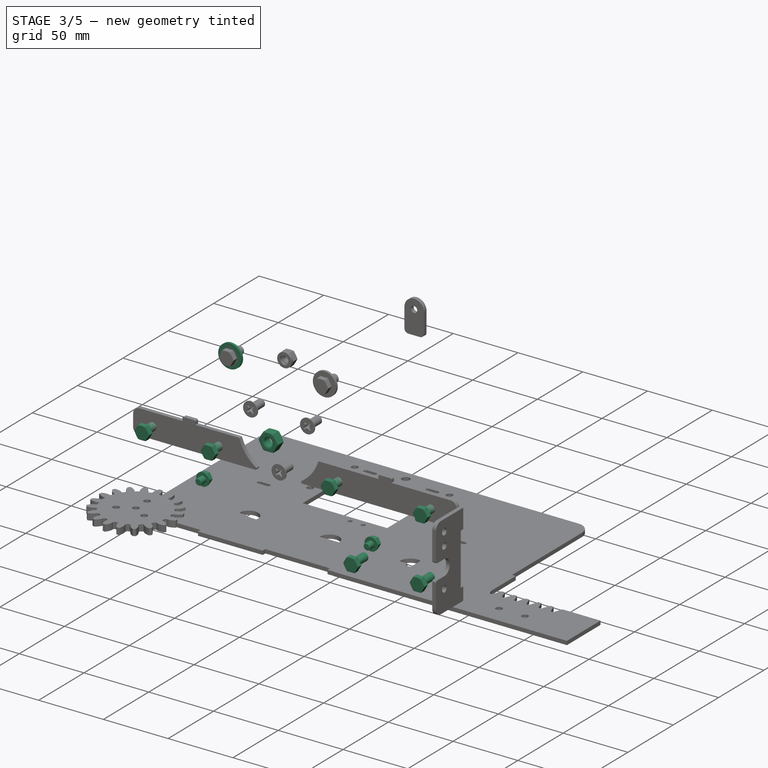
[diagram: stage 3 of 5 — iso view after this stage's code; geometry added in this stage tinted green]
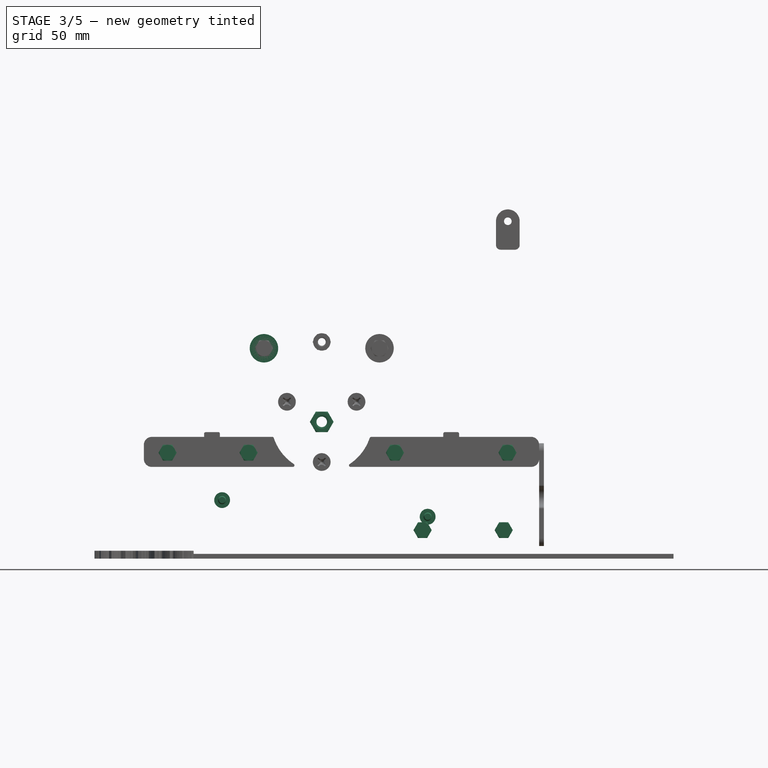
[diagram: stage 3 of 5 — front view after this stage's code; geometry added in this stage tinted green]
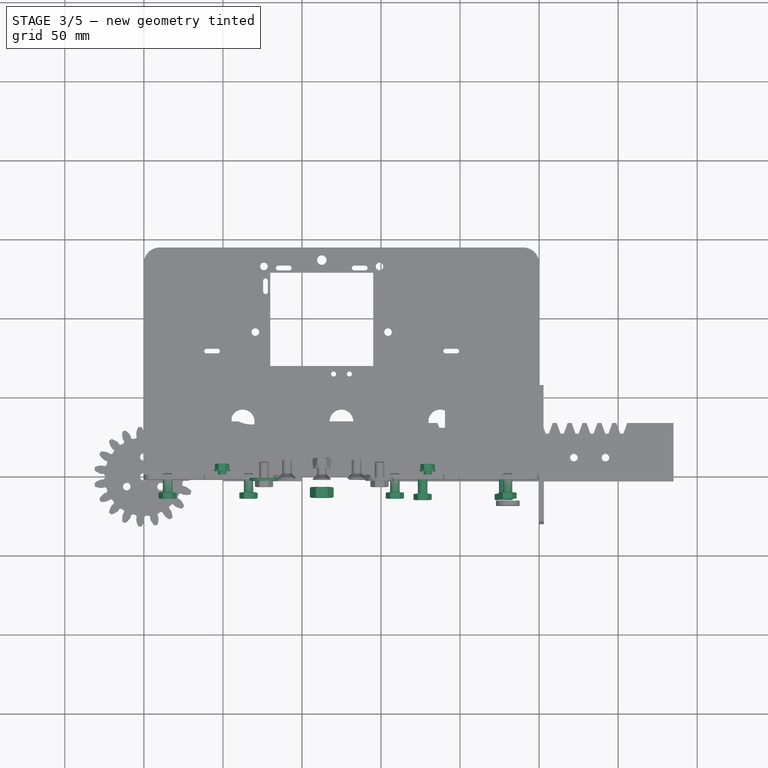
[diagram: stage 3 of 5 — top view after this stage's code; geometry added in this stage tinted green]
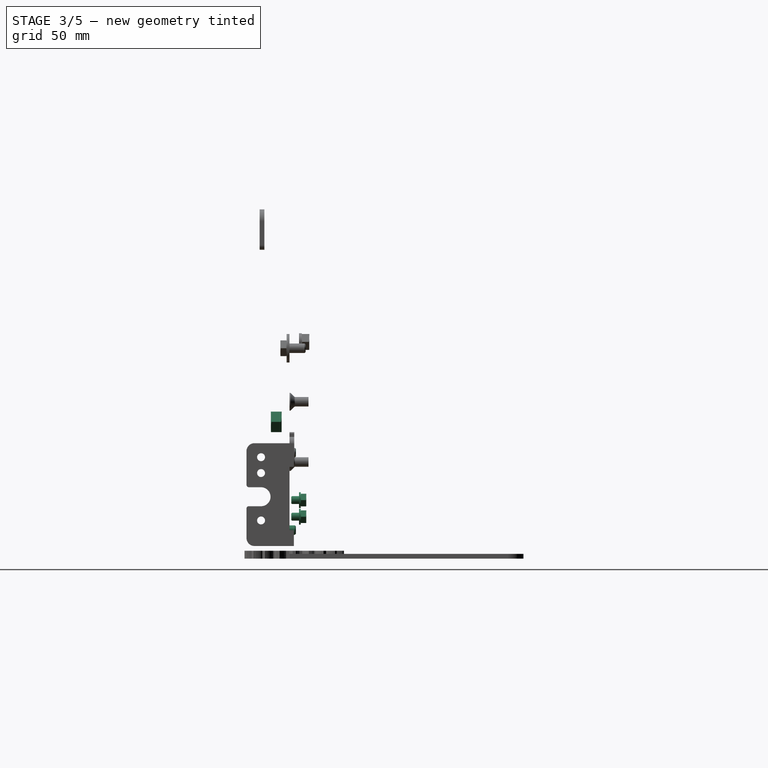
[diagram: stage 3 of 5 — right view after this stage's code; geometry added in this stage tinted green]
FEATURE [Part::FeaturePython] Screw003  label="M6x12-Screw1982"  # Fasteners workbench fastener (typed FeaturePython)
  Placement = pos=(176.3,-11,18) rot=(1,0,0;1.5708rad)
  diameter = 8
  invert = false
  leftHanded = false
  length = 0
  lengthCustom = 12
  matchOuter = false
  offset = 0
  thread = false
  type = 29
FEATURE [Part::FeaturePython] Screw004  label="M6x12-Screw1983"  # Fasteners workbench fastener (typed FeaturePython)
  Placement = pos=(227.6,-11,18) rot=(1,0,0;1.5708rad)
  diameter = 8
  invert = false
  leftHanded = false
  length = 0
  lengthCustom = 12
  matchOuter = false
  offset = 0
  thread = false
  type = 29
FEATURE [Part::FeaturePython] Screw005  label="M6x12-Screw1984"  # Fasteners workbench fastener (typed FeaturePython)
  Placement = pos=(230,-11,67) rot=(1,0,0;1.5708rad)
  diameter = 8
  invert = false
  leftHanded = false
  length = 0
  lengthCustom = 12
  matchOuter = false
  offset = 0
  thread = false
  type = 29
FEATURE [Part::FeaturePython] Screw006  label="M6x12-Screw1985"  # Fasteners workbench fastener (typed FeaturePython)
  Placement = pos=(158.785,-11,67) rot=(1,0,0;1.5708rad)
  diameter = 8
  invert = false
  leftHanded = false
  length = 0
  lengthCustom = 12
  matchOuter = false
  offset = 0
  thread = false
  type = 29
FEATURE [Part::FeaturePython] Screw007  label="M6x12-Screw1986"  # Fasteners workbench fastener (typed FeaturePython)
  Placement = pos=(66.215,-11,67) rot=(1,0,0;1.5708rad)
  diameter = 8
  invert = false
  leftHanded = false
  length = 0
  lengthCustom = 12
  matchOuter = false
  offset = 0
  thread = false
  type = 29
FEATURE [Part::FeaturePython] Screw008  label="M6x12-Screw1987"  # Fasteners workbench fastener (typed FeaturePython)
  Placement = pos=(15,-11,67) rot=(1,0,0;1.5708rad)
  diameter = 8
  invert = false
  leftHanded = false
  length = 0
  lengthCustom = 12
  matchOuter = false
  offset = 0
  thread = false
  type = 29
FEATURE [Part::FeaturePython] Washer010  label="M5-Washer"  # Fasteners workbench fastener (typed FeaturePython)
  Placement = pos=(49.5,3,37) rot=(-1,0,0;1.5708rad)
  diameter = 6
  invert = false
  leftHanded = false
  matchOuter = false
  offset = 0
  type = 3
FEATURE [Part::FeaturePython] Washer011  label="M5-Washer001"  # Fasteners workbench fastener (typed FeaturePython)
  Placement = pos=(179.5,3,26.5) rot=(-1,0,0;1.5708rad)
  diameter = 6
  invert = false
  leftHanded = false
  matchOuter = false
  offset = 0
  type = 3
FEATURE [Part::FeaturePython] Screw010  label="M5x6-Screw"  # Fasteners workbench fastener (typed FeaturePython)
  Placement = pos=(49.5,4.1,37) rot=(-1,0,0;1.5708rad)
  diameter = 7
  invert = false
  leftHanded = false
  length = 12
  lengthCustom = 6
  matchOuter = false
  offset = 0
  thread = false
  type = 29
FEATURE [Part::FeaturePython] Screw011  label="M5x6-Screw001"  # Fasteners workbench fastener (typed FeaturePython)
  Placement = pos=(179.5,4.1,26.5) rot=(-1,0,0;1.5708rad)
  diameter = 7
  invert = false
  leftHanded = false
  length = 12
  lengthCustom = 6
  matchOuter = false
  offset = 0
  thread = false
  type = 29
FEATURE [Part::FeaturePython] Nut  label="M8-Nut"  # Fasteners workbench fastener (typed FeaturePython)
  Placement = pos=(112.5,-14.8,86.5) rot=(-1,0,0;1.5708rad)
  diameter = 9
  invert = false
  leftHanded = false
  matchOuter = false
  offset = 0
  thread = false
  type = 7
FEATURE [Part::FeaturePython] Washer012  label="M6-Washer1799"  # Fasteners workbench fastener (typed FeaturePython)
  Placement = pos=(75.95,-4.8,133.05) rot=(-1,0,0;1.5708rad)
  diameter = 5
  invert = false
  leftHanded = false
  matchOuter = false
  offset = 0
  type = 6
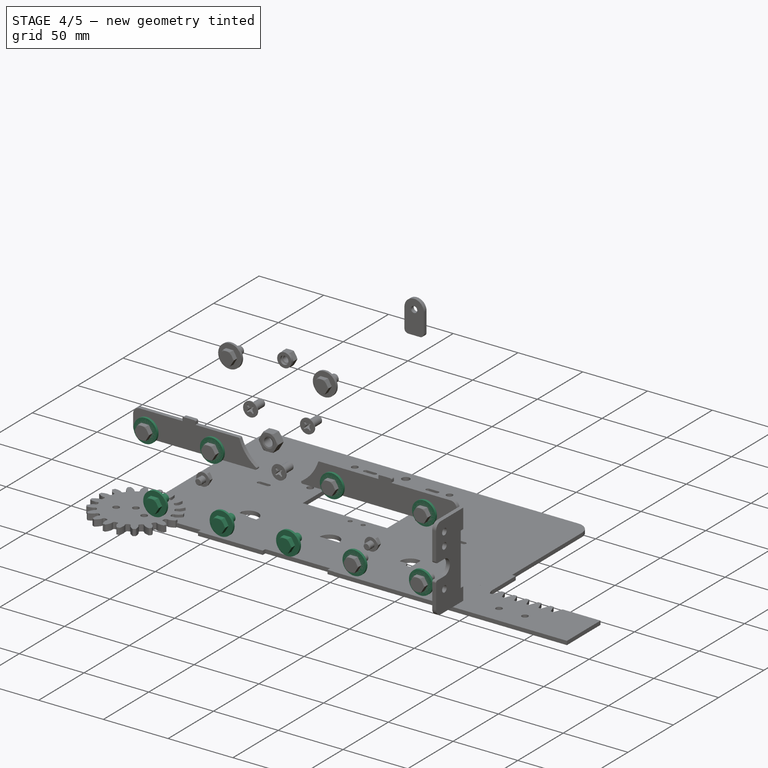
[diagram: stage 4 of 5 — iso view after this stage's code; geometry added in this stage tinted green]
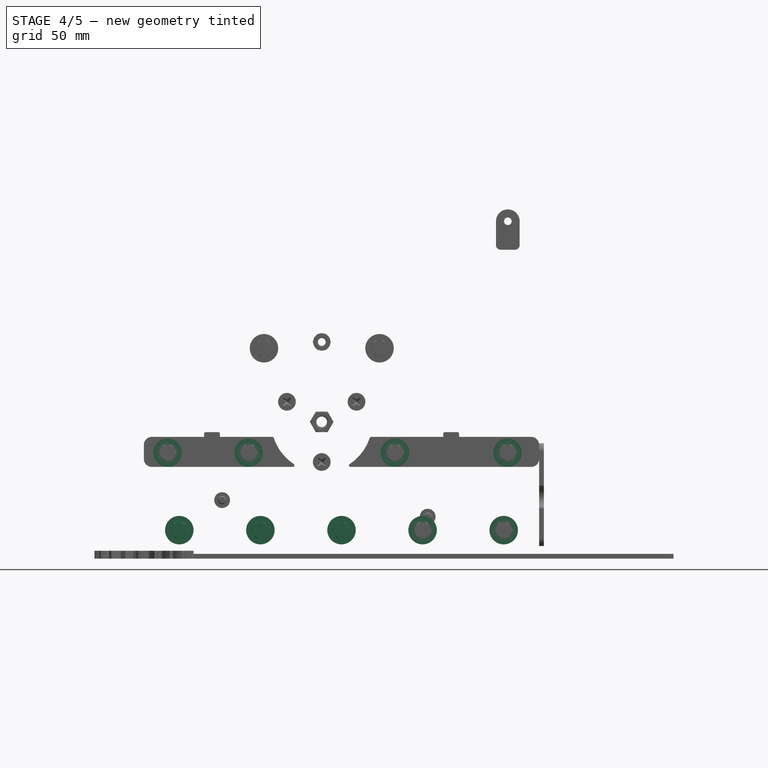
[diagram: stage 4 of 5 — front view after this stage's code; geometry added in this stage tinted green]
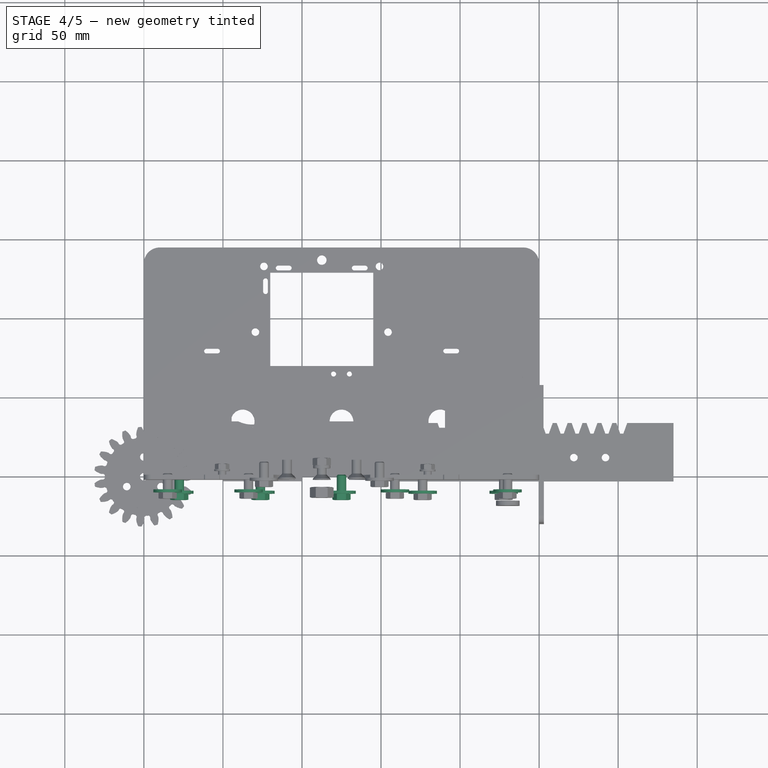
[diagram: stage 4 of 5 — top view after this stage's code; geometry added in this stage tinted green]
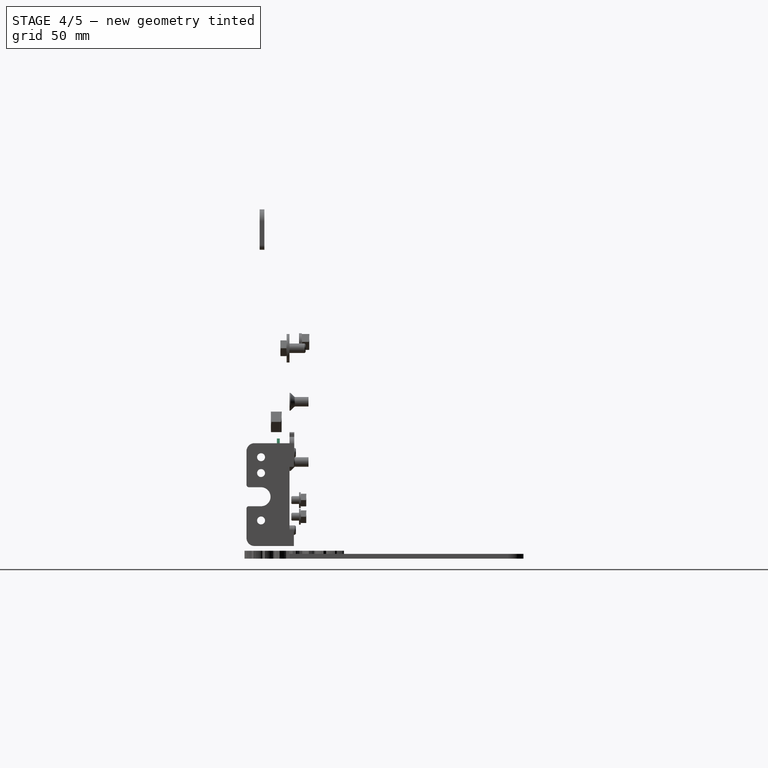
[diagram: stage 4 of 5 — right view after this stage's code; geometry added in this stage tinted green]
FEATURE [PartDesign::Body] Body037  label="DistanzScheibe009"
  Group = -> [Sketch040,Pad032]
  Origin = -> Origin041
  Placement = pos=(230,-6,67.2) rot=(0,0,1;0rad)
  Tip = -> Pad032
FEATURE [Part::FeaturePython] Washer  label="M6-Washer"  # Fasteners workbench fastener (typed FeaturePython)
  Placement = pos=(22.4,-9.2,18) rot=(1,0,0;1.5708rad)
  diameter = 5
  invert = false
  leftHanded = false
  matchOuter = false
  offset = 0
  type = 6
FEATURE [Part::FeaturePython] Washer001  label="M6-Washer1791"  # Fasteners workbench fastener (typed FeaturePython)
  Placement = pos=(73.7,-9.2,18) rot=(1,0,0;1.5708rad)
  diameter = 5
  invert = false
  leftHanded = false
  matchOuter = false
  offset = 0
  type = 6
FEATURE [Part::FeaturePython] Washer002  label="M6-Washer1792"  # Fasteners workbench fastener (typed FeaturePython)
  Placement = pos=(125,-9.2,18) rot=(1,0,0;1.5708rad)
  diameter = 5
  invert = false
  leftHanded = false
  matchOuter = false
  offset = 0
  type = 6
FEATURE [Part::FeaturePython] Washer003  label="M6-Washer1793"  # Fasteners workbench fastener (typed FeaturePython)
  Placement = pos=(176.3,-9.2,18) rot=(1,0,0;1.5708rad)
  diameter = 5
  invert = false
  leftHanded = false
  matchOuter = false
  offset = 0
  type = 6
FEATURE [Part::FeaturePython] Washer004  label="M6-Washer1794"  # Fasteners workbench fastener (typed FeaturePython)
  Placement = pos=(15,-9.2,67) rot=(1,0,0;1.5708rad)
  diameter = 5
  invert = false
  leftHanded = false
  matchOuter = false
  offset = 0
  type = 6
FEATURE [Part::FeaturePython] Washer006  label="M6-Washer1795"  # Fasteners workbench fastener (typed FeaturePython)
  Placement = pos=(227.6,-9.2,18) rot=(1,0,0;1.5708rad)
  diameter = 5
  invert = false
  leftHanded = false
  matchOuter = false
  offset = 0
  type = 6
FEATURE [Part::FeaturePython] Washer007  label="M6-Washer1796"  # Fasteners workbench fastener (typed FeaturePython)
  Placement = pos=(230,-9.2,67) rot=(1,0,0;1.5708rad)
  diameter = 5
  invert = false
  leftHanded = false
  matchOuter = false
  offset = 0
  type = 6
FEATURE [Part::FeaturePython] Washer008  label="M6-Washer1797"  # Fasteners workbench fastener (typed FeaturePython)
  Placement = pos=(158.785,-9.2,67) rot=(1,0,0;1.5708rad)
  diameter = 5
  invert = false
  leftHanded = false
  matchOuter = false
  offset = 0
  type = 6
FEATURE [Part::FeaturePython] Washer009  label="M6-Washer1798"  # Fasteners workbench fastener (typed FeaturePython)
  Placement = pos=(66.215,-9.2,67) rot=(1,0,0;1.5708rad)
  diameter = 5
  invert = false
  leftHanded = false
  matchOuter = false
  offset = 0
  type = 6
FEATURE [Part::FeaturePython] Screw  label="M6x12-Screw"  # Fasteners workbench fastener (typed FeaturePython)
  Placement = pos=(22.4,-11,18) rot=(1,0,0;1.5708rad)
  diameter = 8
  invert = false
  leftHanded = false
  length = 0
  lengthCustom = 12
  matchOuter = false
  offset = 0
  thread = false
  type = 29
FEATURE [Part::FeaturePython] Screw001  label="M6x12-Screw1980"  # Fasteners workbench fastener (typed FeaturePython)
  Placement = pos=(73.7,-11,18) rot=(1,0,0;1.5708rad)
  diameter = 8
  invert = false
  leftHanded = false
  length = 0
  lengthCustom = 12
  matchOuter = false
  offset = 0
  thread = false
  type = 29
FEATURE [Part::FeaturePython] Screw002  label="M6x12-Screw1981"  # Fasteners workbench fastener (typed FeaturePython)
  Placement = pos=(125,-11,18) rot=(1,0,0;1.5708rad)
  diameter = 8
  invert = false
  leftHanded = false
  length = 0
  lengthCustom = 12
  matchOuter = false
  offset = 0
  thread = false
  type = 29
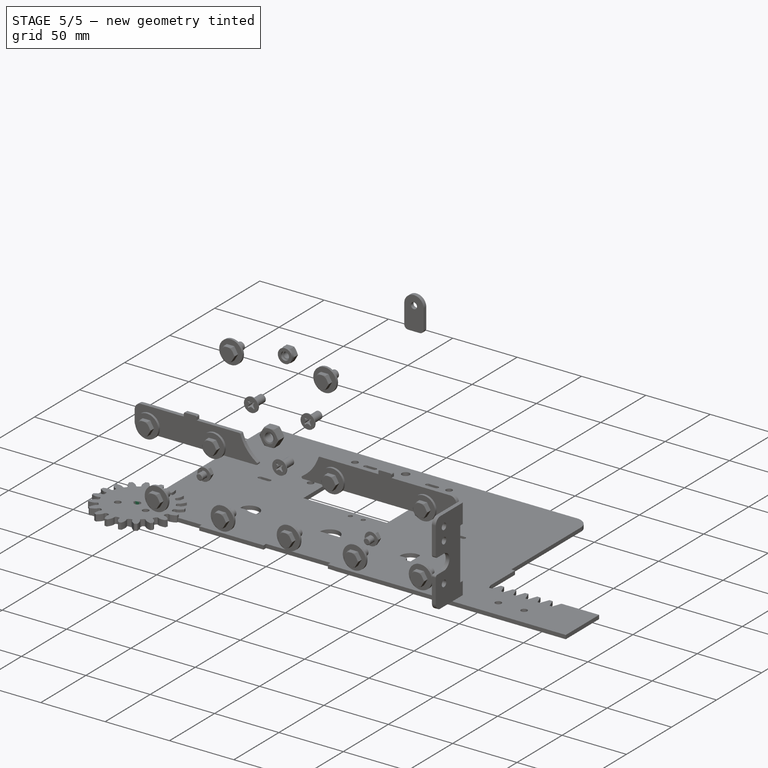
[diagram: stage 5 of 5 — iso view after this stage's code; geometry added in this stage tinted green]
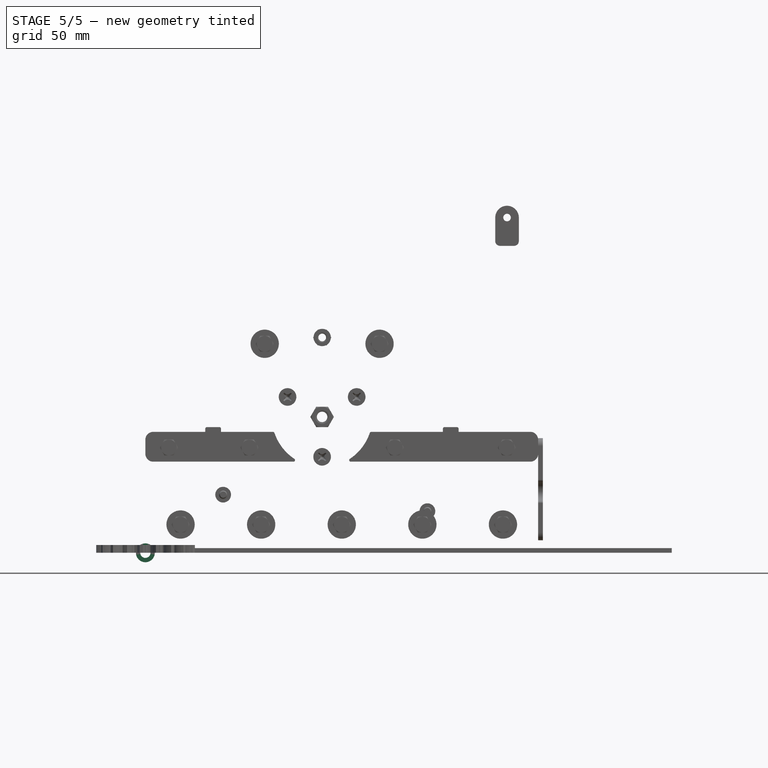
[diagram: stage 5 of 5 — front view after this stage's code; geometry added in this stage tinted green]
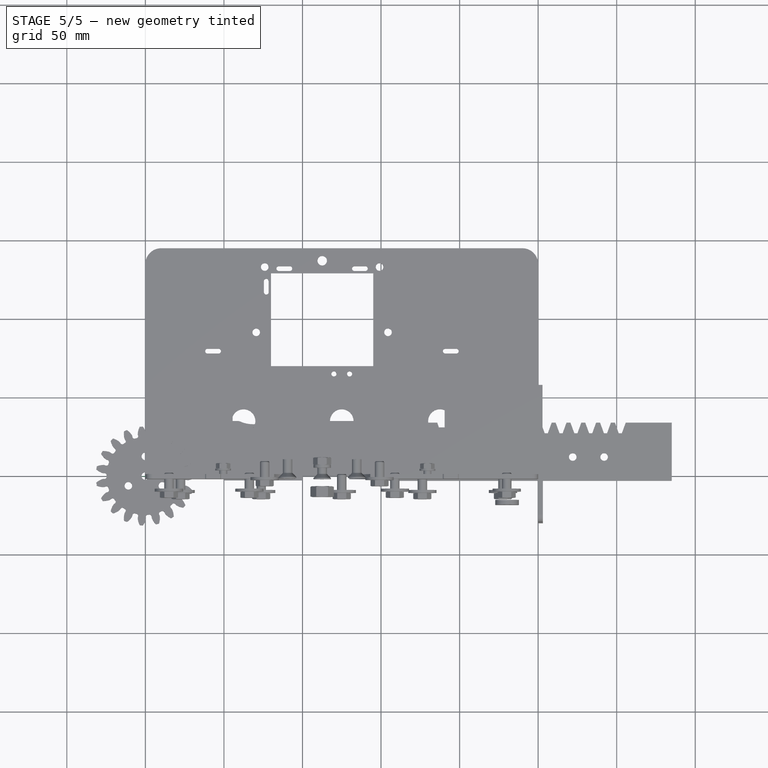
[diagram: stage 5 of 5 — top view after this stage's code; geometry added in this stage tinted green]
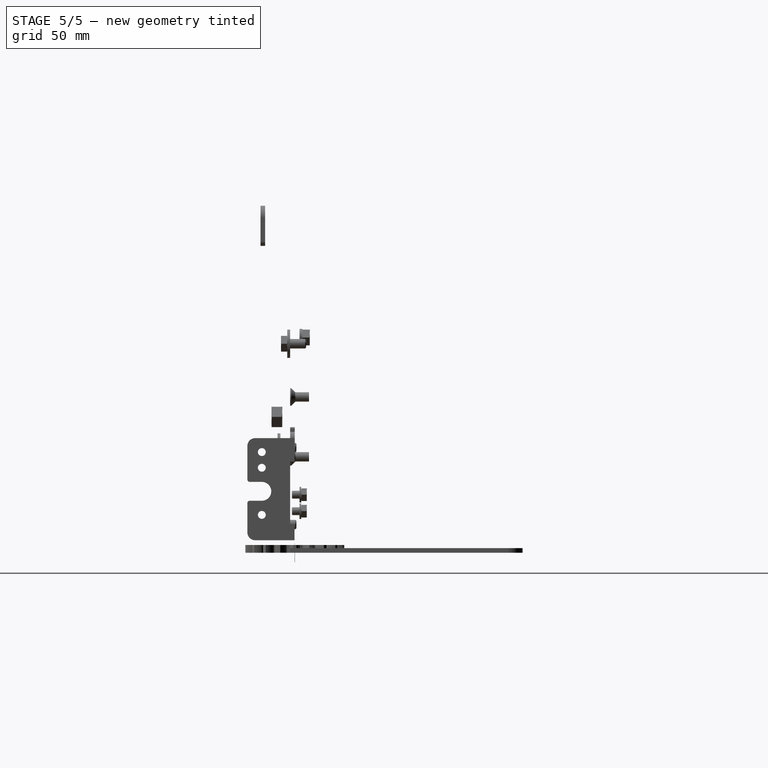
[diagram: stage 5 of 5 — right view after this stage's code; geometry added in this stage tinted green]
FEATURE [PartDesign::Body] Body004  label="SlideTop"
  Group = -> [Sketch004,Pad004]
  Origin = -> Origin004
  Placement = pos=(0,-9.2,27) rot=(-1,0,0;1.5708rad)
  Tip = -> Pad004
FEATURE [Sketcher::SketchObject] Sketch005
  FullyConstrained = true
  MapMode = 5
  Support = -> [XY_Plane005]
  sketch-geometry (14):
    g0: LineSegment StartX=0 StartY=0 StartZ=0 EndX=115.86 EndY=0 EndZ=0
    g1: LineSegment StartX=115.86 StartY=0 StartZ=0 EndX=115.86 EndY=2.08 EndZ=0
    g2: LineSegment StartX=115.86 StartY=20.32 StartZ=0 EndX=0 EndY=20.32 EndZ=0
    g3: LineSegment StartX=0 StartY=20.32 StartZ=0 EndX=0 EndY=0 EndZ=0
    g4: LineSegment StartX=118.86 StartY=15.24 StartZ=0 EndX=140.75 EndY=15.24 EndZ=0
    g5: LineSegment StartX=140.75 StartY=15.24 StartZ=0 EndX=140.75 EndY=5.08 EndZ=0
    g6: LineSegment StartX=140.75 StartY=5.08 StartZ=0 EndX=118.86 EndY=5.08 EndZ=0
    g7: LineSegment StartX=115.86 StartY=18.24 StartZ=0 EndX=115.86 EndY=20.32 EndZ=0
    g8: ArcOfCircle CenterX=118.86 CenterY=18.24 CenterZ=0 NormalX=0 NormalY=0 NormalZ=1 AngleXU=0 Radius=3 StartAngle=3.14159 EndAngle=4.71239
    g9: ArcOfCircle CenterX=118.86 CenterY=2.08 CenterZ=0 NormalX=0 NormalY=0 NormalZ=1 AngleXU=0 Radius=3 StartAngle=1.5708 EndAngle=3.14159
    g10: LineSegment StartX=7.93 StartY=13.71 StartZ=0 EndX=107.93 EndY=13.71 EndZ=0
    g11: LineSegment StartX=107.93 StartY=13.71 StartZ=0 EndX=107.93 EndY=6.6 EndZ=0
    g12: LineSegment StartX=107.93 StartY=6.6 StartZ=0 EndX=7.93 EndY=6.6 EndZ=0
    g13: LineSegment StartX=7.93 StartY=6.6 StartZ=0 EndX=7.93 EndY=13.71 EndZ=0
  constraints (38):
    c: Coincident(g0,g1)
    c: Coincident(g7,g2)
    c: Coincident(g2,g3)
    c: Coincident(g3,g0)
    c: Horizontal(g0)
    c: Horizontal(g2)
    c: Vertical(g1)
    c: Vertical(g3)
    c: Coincident(g0,g-1)
    c: DistanceX(g0,g0) = 115.86
    c: DistanceY(g3,g3) = 20.32
    c: Coincident(g4,g5)
    c: Coincident(g5,g6)
    c: Horizontal(g4)
    c: Horizontal(g6)
    c: Vertical(g5)
    c: DistanceY(g5,g5) = 10.16
    c: Tangent(g1,g7)
    c: Equal(g7,g1)
    c: Tangent(g7,g8) = 1.5708
    c: Tangent(g4,g8) = -1.5708
    c: Tangent(g6,g9) = -1.5708
    c: Tangent(g1,g9) = 1.5708
    c: Radius(g8) = 3
    c: Equal(g8,g9)
    c: DistanceX(g0,g5) = 24.89
    c: Coincident(g10,g11)
    c: Coincident(g11,g12)
    c: Coincident(g12,g13)
    c: Coincident(g13,g10)
    c: Horizontal(g10)
    c: Horizontal(g12)
    c: Vertical(g11)
    c: Vertical(g13)
    c: DistanceX(g12,g12) = 100
    c: DistanceY(g13,g13) = 7.11
    c: DistanceY(g0,g11) = 6.6
    c: DistanceX(g11,g0) = 7.93
FEATURE [PartDesign::Pad] Pad005
  Direction = (0,0,1)
  Length = 0.46
  Length2 = 100
  Profile = -> Sketch005
  ReferenceAxis = -> Sketch005 [N_Axis]
  Type = 0
FEATURE [PartDesign::Body] Body022  label="Zahnstange"
  Group = -> [Sketch023,Pad018]
  Origin = -> Origin025
  Placement = pos=(-170.7,-3,27) rot=(1,0,0;1.5708rad)
  Tip = -> Pad018
FEATURE [Sketcher::SketchObject] Sketch025
  AttachmentOffset = pos=(0,0,0.46) rot=(0,0,1;0rad)
  FullyConstrained = true
  MapMode = 5
  Placement = pos=(0,0,0.46) rot=(0,0,1;0rad)
  Support = -> [XY_Plane005]
  expr: Constraints[10] = Sketch005.Constraints[10]
  expr: Constraints[16] = Sketch005.Constraints[16]
  expr: Constraints[23] = Sketch005.Constraints[23]
  expr: Constraints[25] = Sketch005.Constraints[25]
  expr: Constraints[34] = Sketch005.Constraints[34]
  expr: Constraints[35] = Sketch005.Constraints[35]
  expr: Constraints[36] = Sketch005.Constraints[36]
  expr: Constraints[37] = Sketch005.Constraints[37]
  expr: Constraints[9] = Sketch005.Constraints[9]
  sketch-geometry (18):
    g0: LineSegment StartX=1.279e-13 StartY=9.5923e-12 StartZ=0 EndX=115.86 EndY=9.5923e-12 EndZ=0
    g1: LineSegment StartX=115.86 StartY=9.5923e-12 StartZ=0 EndX=115.86 EndY=2.08 EndZ=0
    g2: LineSegment StartX=115.86 StartY=20.32 StartZ=0 EndX=1.279e-13 EndY=20.32 EndZ=0
    g3: LineSegment StartX=1.279e-13 StartY=20.32 StartZ=0 EndX=1.279e-13 EndY=9.5923e-12 EndZ=0
    g4: LineSegment StartX=118.86 StartY=15.24 StartZ=0 EndX=140.75 EndY=15.24 EndZ=0
    g5: LineSegment StartX=140.75 StartY=15.24 StartZ=0 EndX=140.75 EndY=5.08 EndZ=0
    g6: LineSegment StartX=140.75 StartY=5.08 StartZ=0 EndX=118.86 EndY=5.08 EndZ=0
    g7: LineSegment StartX=115.86 StartY=18.24 StartZ=0 EndX=115.86 EndY=20.32 EndZ=0
    g8: ArcOfCircle CenterX=118.86 CenterY=18.24 CenterZ=0 NormalX=0 NormalY=0 NormalZ=1 AngleXU=0 Radius=3 StartAngle=3.14159 EndAngle=4.71239
    g9: ArcOfCircle CenterX=118.86 CenterY=2.08 CenterZ=0 NormalX=0 NormalY=0 NormalZ=1 AngleXU=0 Radius=3 StartAngle=1.5708 EndAngle=3.14159
    g10: LineSegment StartX=7.93 StartY=13.71 StartZ=0 EndX=107.93 EndY=13.71 EndZ=0
    g11: LineSegment StartX=107.93 StartY=13.71 StartZ=0 EndX=107.93 EndY=6.6 EndZ=0
    g12: LineSegment StartX=107.93 StartY=6.6 StartZ=0 EndX=7.93 EndY=6.6 EndZ=0
    g13: LineSegment StartX=7.93 StartY=6.6 StartZ=0 EndX=7.93 EndY=13.71 EndZ=0
    g14: LineSegment StartX=7.93 StartY=13.71 StartZ=0 EndX=107.93 EndY=13.71 EndZ=0
    g15: LineSegment StartX=107.93 StartY=13.71 StartZ=0 EndX=107.93 EndY=6.6 EndZ=0
    g16: LineSegment StartX=107.93 StartY=6.6 StartZ=0 EndX=7.93 EndY=6.6 EndZ=0
    g17: LineSegment StartX=7.93 StartY=6.6 StartZ=0 EndX=7.93 EndY=13.71 EndZ=0
  constraints (48):
    c: Coincident(g0,g1)
    c: Coincident(g7,g2)
    c: Coincident(g2,g3)
    c: Coincident(g3,g0)
    c: Horizontal(g0)
    c: Horizontal(g2)
    c: Vertical(g1)
    c: Vertical(g3)
    c: Coincident(g0,g-1)
    c: DistanceX(g0,g0) = 115.86
    c: DistanceY(g3,g3) = 20.32
    c: Coincident(g4,g5)
    c: Coincident(g5,g6)
    c: Horizontal(g4)
    c: Horizontal(g6)
    c: Vertical(g5)
    c: DistanceY(g5,g5) = 10.16
    c: Tangent(g1,g7)
    c: Equal(g7,g1)
    c: Tangent(g7,g8) = 1.5708
    c: Tangent(g4,g8) = -1.5708
    c: Tangent(g6,g9) = -1.5708
    c: Tangent(g1,g9) = 1.5708
    c: Radius(g8) = 3
    c: Equal(g8,g9)
    c: DistanceX(g0,g5) = 24.89
    c: Coincident(g10,g11)
    c: Coincident(g11,g12)
    c: Coincident(g12,g13)
    c: Coincident(g13,g10)
    c: Horizontal(g10)
    c: Horizontal(g12)
    c: Vertical(g11)
    c: Vertical(g13)
    c: DistanceX(g12,g12) = 100
    c: DistanceY(g13,g13) = 7.11
    c: DistanceY(g0,g11) = 6.6
    c: DistanceX(g11,g0) = 7.93
    c: Coincident(g14,g15)
    c: Coincident(g15,g16)
    c: Coincident(g16,g17)
    c: Coincident(g17,g14)
    c: Horizontal(g14)
    c: Horizontal(g16)
    c: Vertical(g15)
    c: Vertical(g17)
    c: Coincident(g14,g10)
    c: Coincident(g15,g11)
FEATURE [PartDesign::Pocket] Pocket001
  BaseFeature = -> Pad005
  Direction = (0,0,-1)
  Length = 0.1
  Length2 = 100
  Offset = 0.1
  Profile = -> Sketch025
  ReferenceAxis = -> Sketch025 [N_Axis]
  Reversed = true
  Type = 0
FEATURE [PartDesign::Body] Body025  label="Schloss"
  Group = -> [Sketch028,Pad020]
  Origin = -> Origin029
  Placement = pos=(-117.654,21.87,-76.337) rot=(0,0,1;0rad)
  Tip = -> Pad020
FEATURE [Part::Feature] Part__Feature  label="Scheibenwischer-Motor-Golf4-3-40"
  Placement = pos=(151.361,35,56.461) rot=(-0.356085,-0.366304,-0.859665;1.7264rad)
  shape: bbox 173.1 x 87.23 x 101.9 mm, 196 faces, 4 solids (baked)
FEATURE [PartDesign::Plane] DatumPlane001
  Length = 60
  MapMode = 2
  ResizeMode = 0
  Width = 60
FEATURE [PartDesign::Body] Body  label="Montageplatte"
  Group = -> [Sketch,Pad,DatumPlane001]
  Origin = -> Origin
  Placement = pos=(0,0,0) rot=(1,0,0;1.5708rad)
  Tip = -> Pad
FEATURE [Sketcher::SketchObject] Sketch029
  FullyConstrained = true
  MapMode = 5
  Placement = pos=(0,0,0) rot=(1,0,0;1.5708rad)
  Support = -> [XZ_Plane030]
  sketch-geometry (2):
    g0: Circle CenterX=0 CenterY=0 CenterZ=0 NormalX=0 NormalY=0 NormalZ=1 AngleXU=0 Radius=3.25
    g1: Circle CenterX=0 CenterY=0 CenterZ=0 NormalX=0 NormalY=0 NormalZ=1 AngleXU=0 Radius=6
  constraints (4):
    c: Coincident(g0,g-1)
    c: Diameter(g0) = 6.5
    c: Coincident(g1,g0)
    c: Diameter(g1) = 12
FEATURE [PartDesign::Pad] Pad021
  Direction = (0,-1,-2e-16)
  Length = 0.2
  Length2 = 10
  Placement = pos=(0,0,0) rot=(1,0,0;1.5708rad)
  Profile = -> Sketch029
  ReferenceAxis = -> Sketch029 [N_Axis]
  Type = 0
FEATURE [PartDesign::Body] Body026  label="DistanzScheibe"
  Group = -> [Sketch029,Pad021]
  Origin = -> Origin030
  Placement = pos=(22.4,-6,18) rot=(0,0,1;0rad)
  Tip = -> Pad021
FEATURE [Sketcher::SketchObject] Sketch030
  FullyConstrained = true
  MapMode = 5
  Placement = pos=(0,0,0) rot=(1,0,0;1.5708rad)
  Support = -> [XZ_Plane031]
  sketch-geometry (2):
    g0: Circle CenterX=0 CenterY=0 CenterZ=0 NormalX=0 NormalY=0 NormalZ=1 AngleXU=0 Radius=3.25
    g1: Circle CenterX=0 CenterY=0 CenterZ=0 NormalX=0 NormalY=0 NormalZ=1 AngleXU=0 Radius=6
  constraints (4):
    c: Coincident(g0,g-1)
    c: Diameter(g0) = 6.5
    c: Coincident(g1,g0)
    c: Diameter(g1) = 12
FEATURE [PartDesign::Pad] Pad022
  Direction = (0,-1,-2e-16)
  Length = 0.2
  Length2 = 10
  Placement = pos=(0,0,0) rot=(1,0,0;1.5708rad)
  Profile = -> Sketch030
  ReferenceAxis = -> Sketch030 [N_Axis]
  Type = 0
FEATURE [PartDesign::Body] Body027  label="DistanzScheibe001"
  Group = -> [Sketch030,Pad022]
  Origin = -> Origin031
  Placement = pos=(73.7,-6,18) rot=(0,0,1;0rad)
  Tip = -> Pad022
FEATURE [Sketcher::SketchObject] Sketch031
  FullyConstrained = true
  MapMode = 5
  Placement = pos=(0,0,0) rot=(1,0,0;1.5708rad)
  Support = -> [XZ_Plane032]
  sketch-geometry (2):
    g0: Circle CenterX=0 CenterY=0 CenterZ=0 NormalX=0 NormalY=0 NormalZ=1 AngleXU=0 Radius=3.25
    g1: Circle CenterX=0 CenterY=0 CenterZ=0 NormalX=0 NormalY=0 NormalZ=1 AngleXU=0 Radius=6
  constraints (4):
    c: Coincident(g0,g-1)
    c: Diameter(g0) = 6.5
    c: Coincident(g1,g0)
    c: Diameter(g1) = 12
FEATURE [PartDesign::Pad] Pad023
  Direction = (0,-1,-2e-16)
  Length = 0.2
  Length2 = 10
  Placement = pos=(0,0,0) rot=(1,0,0;1.5708rad)
  Profile = -> Sketch031
  ReferenceAxis = -> Sketch031 [N_Axis]
  Type = 0
FEATURE [PartDesign::Body] Body028  label="DistanzScheibe002"
  Group = -> [Sketch031,Pad023]
  Origin = -> Origin032
  Placement = pos=(125,-6,18) rot=(0,0,1;0rad)
  Tip = -> Pad023
FEATURE [Sketcher::SketchObject] Sketch034
  FullyConstrained = true
  MapMode = 5
  Placement = pos=(0,0,0) rot=(1,0,0;1.5708rad)
  Support = -> [XZ_Plane035]
  sketch-geometry (2):
    g0: Circle CenterX=0 CenterY=0 CenterZ=0 NormalX=0 NormalY=0 NormalZ=1 AngleXU=0 Radius=3.25
    g1: Circle CenterX=0 CenterY=0 CenterZ=0 NormalX=0 NormalY=0 NormalZ=1 AngleXU=0 Radius=6
  constraints (4):
    c: Coincident(g0,g-1)
    c: Diameter(g0) = 6.5
    c: Coincident(g1,g0)
    c: Diameter(g1) = 12
FEATURE [PartDesign::Pad] Pad026
  Direction = (0,-1,-2e-16)
  Length = 0.2
  Length2 = 10
  Placement = pos=(0,0,0) rot=(1,0,0;1.5708rad)
  Profile = -> Sketch034
  ReferenceAxis = -> Sketch034 [N_Axis]
  Type = 0
FEATURE [PartDesign::Body] Body031  label="DistanzScheibe003"
  Group = -> [Sketch034,Pad026]
  Origin = -> Origin035
  Placement = pos=(176.3,-6,18) rot=(0,0,1;0rad)
  Tip = -> Pad026
FEATURE [Sketcher::SketchObject] Sketch035
  FullyConstrained = true
  MapMode = 5
  Placement = pos=(0,0,0) rot=(1,0,0;1.5708rad)
  Support = -> [XZ_Plane036]
  sketch-geometry (2):
    g0: Circle CenterX=0 CenterY=0 CenterZ=0 NormalX=0 NormalY=0 NormalZ=1 AngleXU=0 Radius=3.25
    g1: Circle CenterX=0 CenterY=0 CenterZ=0 NormalX=0 NormalY=0 NormalZ=1 AngleXU=0 Radius=6
  constraints (4):
    c: Coincident(g0,g-1)
    c: Diameter(g0) = 6.5
    c: Coincident(g1,g0)
    c: Diameter(g1) = 12
FEATURE [PartDesign::Pad] Pad027
  Direction = (0,-1,-2e-16)
  Length = 0.2
  Length2 = 10
  Placement = pos=(0,0,0) rot=(1,0,0;1.5708rad)
  Profile = -> Sketch035
  ReferenceAxis = -> Sketch035 [N_Axis]
  Type = 0
FEATURE [PartDesign::Body] Body032  label="DistanzScheibe004"
  Group = -> [Sketch035,Pad027]
  Origin = -> Origin036
  Placement = pos=(73.7,-6,18) rot=(0,0,1;0rad)
  Tip = -> Pad027
FEATURE [Sketcher::SketchObject] Sketch036
  FullyConstrained = true
  MapMode = 5
  Placement = pos=(0,0,0) rot=(1,0,0;1.5708rad)
  Support = -> [XZ_Plane037]
  sketch-geometry (2):
    g0: Circle CenterX=0 CenterY=0 CenterZ=0 NormalX=0 NormalY=0 NormalZ=1 AngleXU=0 Radius=3.25
    g1: Circle CenterX=0 CenterY=0 CenterZ=0 NormalX=0 NormalY=0 NormalZ=1 AngleXU=0 Radius=6
  constraints (4):
    c: Coincident(g0,g-1)
    c: Diameter(g0) = 6.5
    c: Coincident(g1,g0)
    c: Diameter(g1) = 12
FEATURE [PartDesign::Pad] Pad028
  Direction = (0,-1,-2e-16)
  Length = 0.2
  Length2 = 10
  Placement = pos=(0,0,0) rot=(1,0,0;1.5708rad)
  Profile = -> Sketch036
  ReferenceAxis = -> Sketch036 [N_Axis]
  Type = 0
FEATURE [PartDesign::Body] Body033  label="DistanzScheibe005"
  Group = -> [Sketch036,Pad028]
  Origin = -> Origin037
  Placement = pos=(227.6,-6,18) rot=(0,0,1;0rad)
  Tip = -> Pad028
FEATURE [Sketcher::SketchObject] Sketch037
  FullyConstrained = true
  MapMode = 5
  Placement = pos=(0,0,0) rot=(1,0,0;1.5708rad)
  Support = -> [XZ_Plane038]
  sketch-geometry (2):
    g0: Circle CenterX=0 CenterY=0 CenterZ=0 NormalX=0 NormalY=0 NormalZ=1 AngleXU=0 Radius=3.25
    g1: Circle CenterX=0 CenterY=0 CenterZ=0 NormalX=0 NormalY=0 NormalZ=1 AngleXU=0 Radius=6
  constraints (4):
    c: Coincident(g0,g-1)
    c: Diameter(g0) = 6.5
    c: Coincident(g1,g0)
    c: Diameter(g1) = 12
FEATURE [PartDesign::Pad] Pad029
  Direction = (0,-1,-2e-16)
  Length = 0.2
  Length2 = 10
  Placement = pos=(0,0,0) rot=(1,0,0;1.5708rad)
  Profile = -> Sketch037
  ReferenceAxis = -> Sketch037 [N_Axis]
  Type = 0
FEATURE [PartDesign::Body] Body034  label="DistanzScheibe006"
  Group = -> [Sketch037,Pad029]
  Origin = -> Origin038
  Placement = pos=(15,-6,67.2) rot=(0,0,1;0rad)
  Tip = -> Pad029
FEATURE [Sketcher::SketchObject] Sketch038
  FullyConstrained = true
  MapMode = 5
  Placement = pos=(0,0,0) rot=(1,0,0;1.5708rad)
  Support = -> [XZ_Plane039]
  sketch-geometry (2):
    g0: Circle CenterX=0 CenterY=0 CenterZ=0 NormalX=0 NormalY=0 NormalZ=1 AngleXU=0 Radius=3.25
    g1: Circle CenterX=0 CenterY=0 CenterZ=0 NormalX=0 NormalY=0 NormalZ=1 AngleXU=0 Radius=6
  constraints (4):
    c: Coincident(g0,g-1)
    c: Diameter(g0) = 6.5
    c: Coincident(g1,g0)
    c: Diameter(g1) = 12
FEATURE [PartDesign::Pad] Pad030
  Direction = (0,-1,-2e-16)
  Length = 0.2
  Length2 = 10
  Placement = pos=(0,0,0) rot=(1,0,0;1.5708rad)
  Profile = -> Sketch038
  ReferenceAxis = -> Sketch038 [N_Axis]
  Type = 0
FEATURE [PartDesign::Body] Body035  label="DistanzScheibe007"
  Group = -> [Sketch038,Pad030]
  Origin = -> Origin039
  Placement = pos=(66.22,-6,67.2) rot=(0,0,1;0rad)
  Tip = -> Pad030
FEATURE [Sketcher::SketchObject] Sketch039
  FullyConstrained = true
  MapMode = 5
  Placement = pos=(0,0,0) rot=(1,0,0;1.5708rad)
  Support = -> [XZ_Plane040]
  sketch-geometry (2):
    g0: Circle CenterX=0 CenterY=0 CenterZ=0 NormalX=0 NormalY=0 NormalZ=1 AngleXU=0 Radius=3.25
    g1: Circle CenterX=0 CenterY=0 CenterZ=0 NormalX=0 NormalY=0 NormalZ=1 AngleXU=0 Radius=6
  constraints (4):
    c: Coincident(g0,g-1)
    c: Diameter(g0) = 6.5
    c: Coincident(g1,g0)
    c: Diameter(g1) = 12
FEATURE [PartDesign::Pad] Pad031
  Direction = (0,-1,-2e-16)
  Length = 0.2
  Length2 = 10
  Placement = pos=(0,0,0) rot=(1,0,0;1.5708rad)
  Profile = -> Sketch039
  ReferenceAxis = -> Sketch039 [N_Axis]
  Type = 0
FEATURE [PartDesign::Body] Body036  label="DistanzScheibe008"
  Group = -> [Sketch039,Pad031]
  Origin = -> Origin040
  Placement = pos=(158.78,-6,67.2) rot=(0,0,1;0rad)
  Tip = -> Pad031
FEATURE [Sketcher::SketchObject] Sketch040
  FullyConstrained = true
  MapMode = 5
  Placement = pos=(0,0,0) rot=(1,0,0;1.5708rad)
  Support = -> [XZ_Plane041]
  sketch-geometry (2):
    g0: Circle CenterX=0 CenterY=0 CenterZ=0 NormalX=0 NormalY=0 NormalZ=1 AngleXU=0 Radius=3.25
    g1: Circle CenterX=0 CenterY=0 CenterZ=0 NormalX=0 NormalY=0 NormalZ=1 AngleXU=0 Radius=6
  constraints (4):
    c: Coincident(g0,g-1)
    c: Diameter(g0) = 6.5
    c: Coincident(g1,g0)
    c: Diameter(g1) = 12
FEATURE [PartDesign::Pad] Pad032
  Direction = (0,-1,-2e-16)
  Length = 0.2
  Length2 = 10
  Placement = pos=(0,0,0) rot=(1,0,0;1.5708rad)
  Profile = -> Sketch040
  ReferenceAxis = -> Sketch040 [N_Axis]
  Type = 0
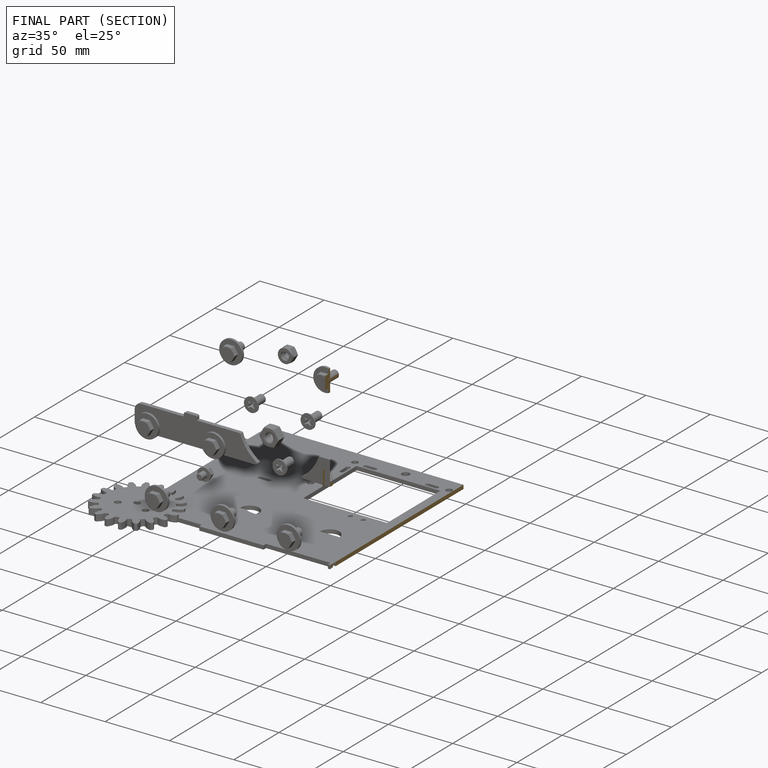
[diagram: finished part — half-section view (interior)]
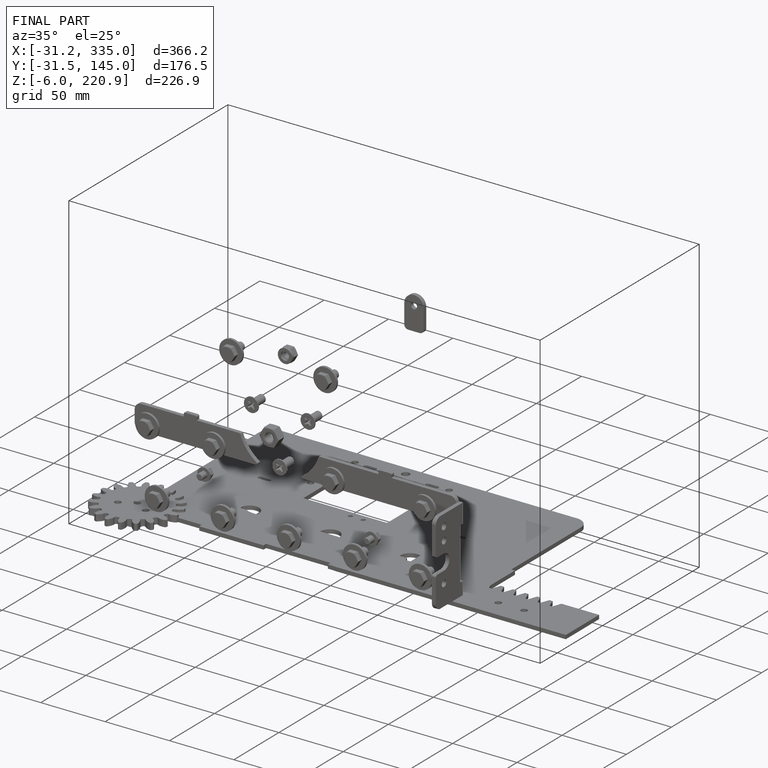
[diagram: finished part — iso view with bounding-box wireframe]
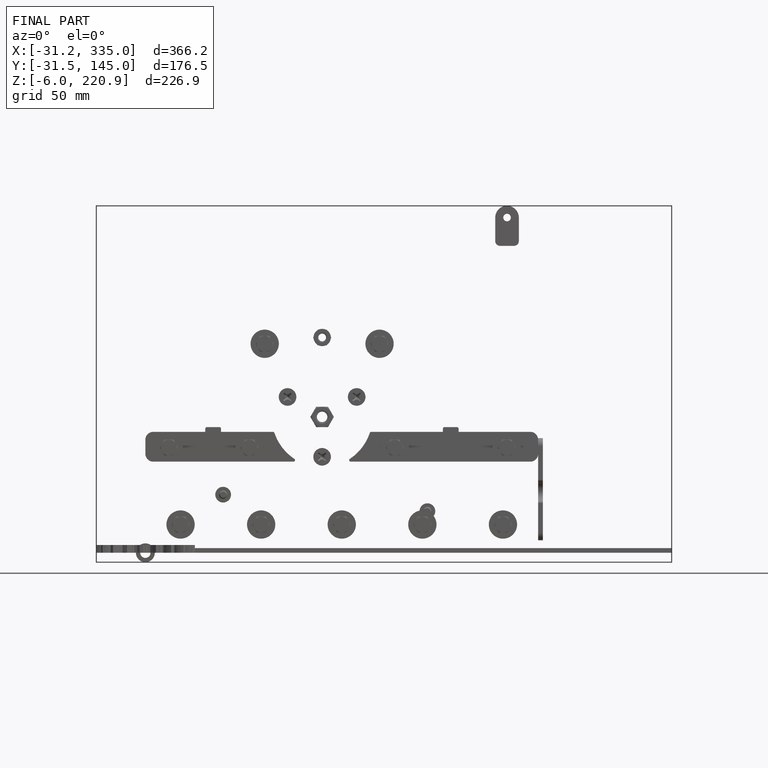
[diagram: finished part — front view with bounding-box wireframe]
